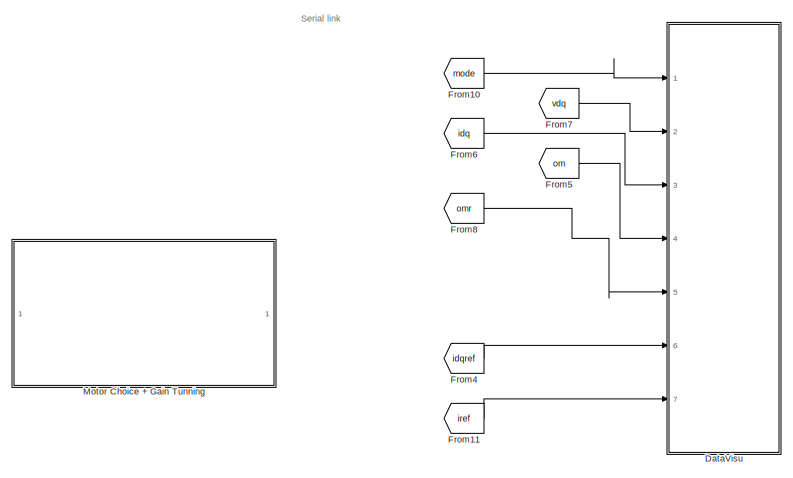
[diagram: root canvas - part 1/3, top right region]
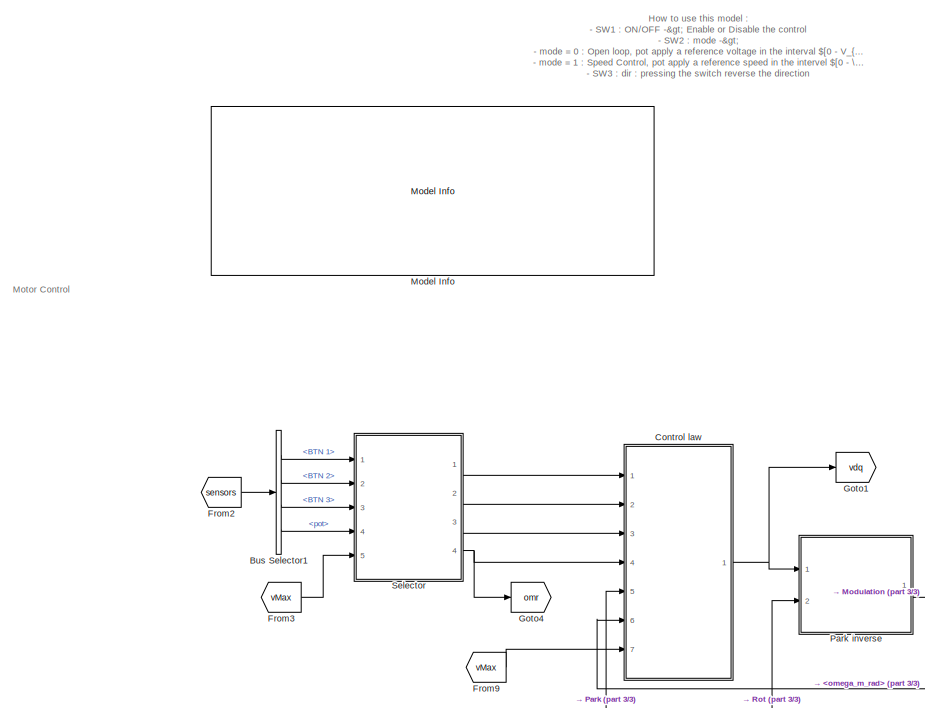
[diagram: root canvas - part 2/3, left side, full height]
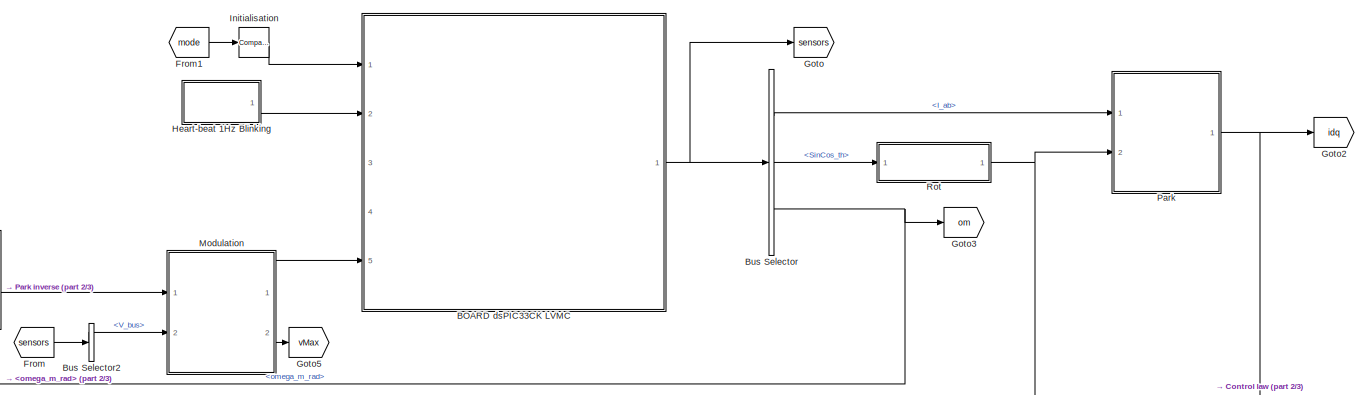
[diagram: root canvas - part 3/3, bottom right region]
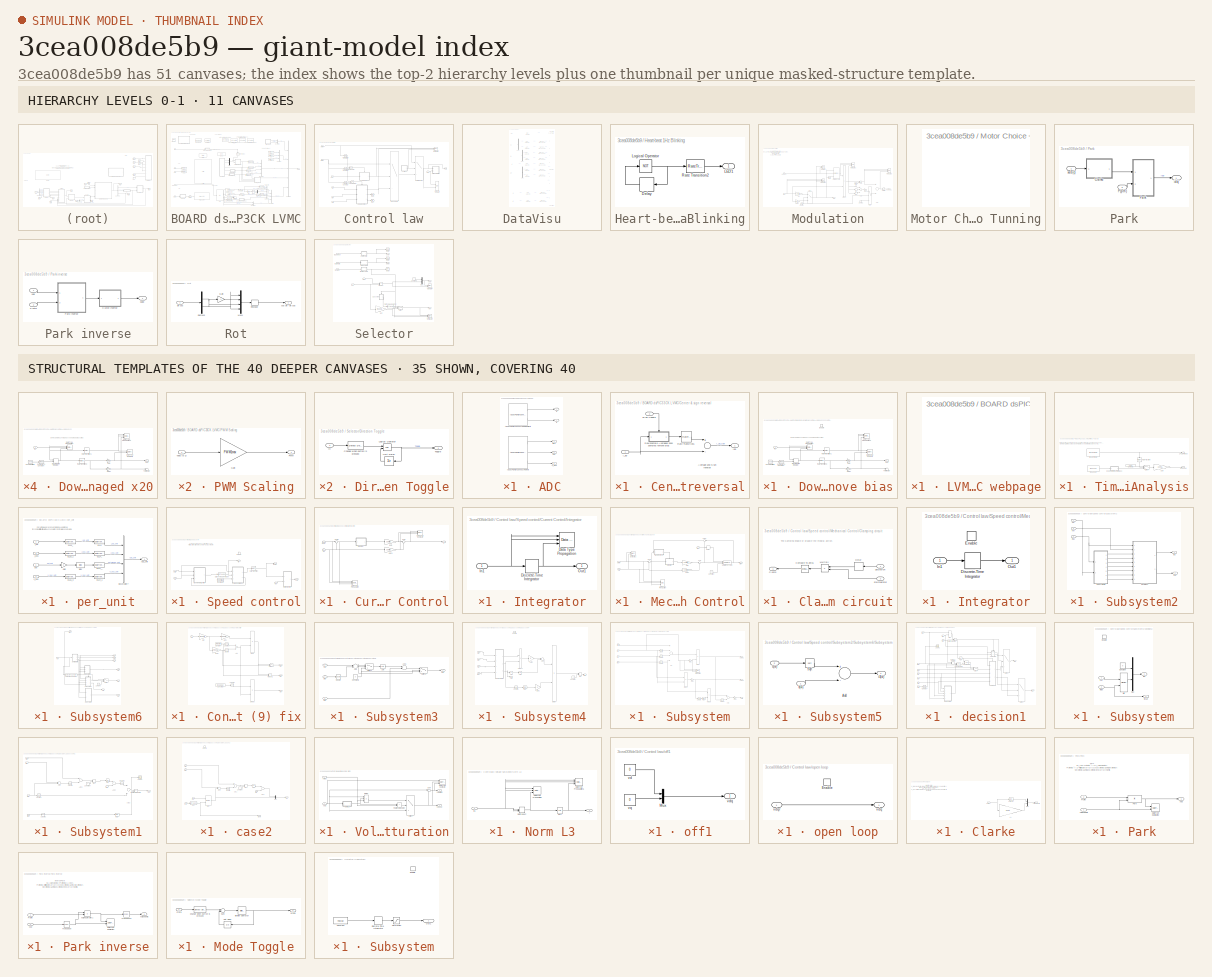
[diagram: thumbnail index - top-2 hierarchy levels (11 canvases) + 35 structural-template representatives of the remaining 40 canvases]
MODEL slx_3cea008de5b9
KIND model
CONFIG AbsTol = auto
CONFIG EnableMultiTasking = on
CONFIG FixedStep = 50e-6
CONFIG MaxStep = auto
CONFIG MinStep = auto
CONFIG RelTol = 1e-3
CONFIG SampleTimeConstraint = Unconstrained
CONFIG Solver = FixedStepDiscrete
CONFIG SolverName = FixedStepDiscrete
CONFIG StartTime = 0.0
CONFIG StopTime = 10.0
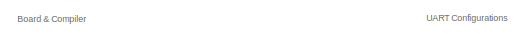
[diagram: BOARD dsPIC33CK LVMC - part 1/5, top left region]
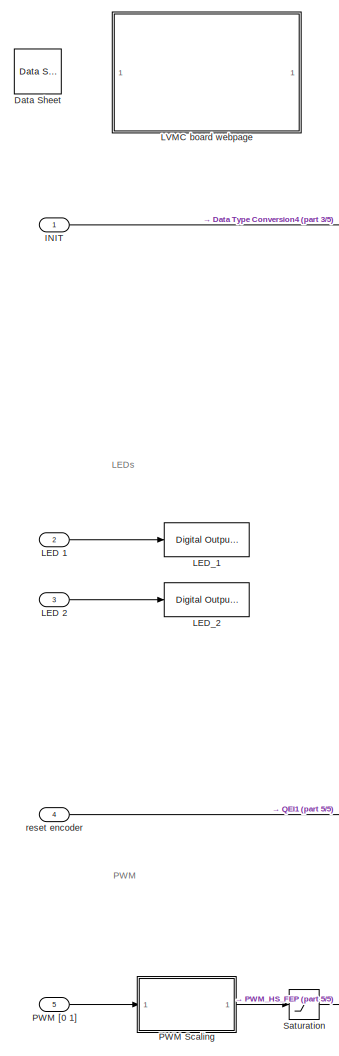
[diagram: BOARD dsPIC33CK LVMC - part 2/5, left side, full height]
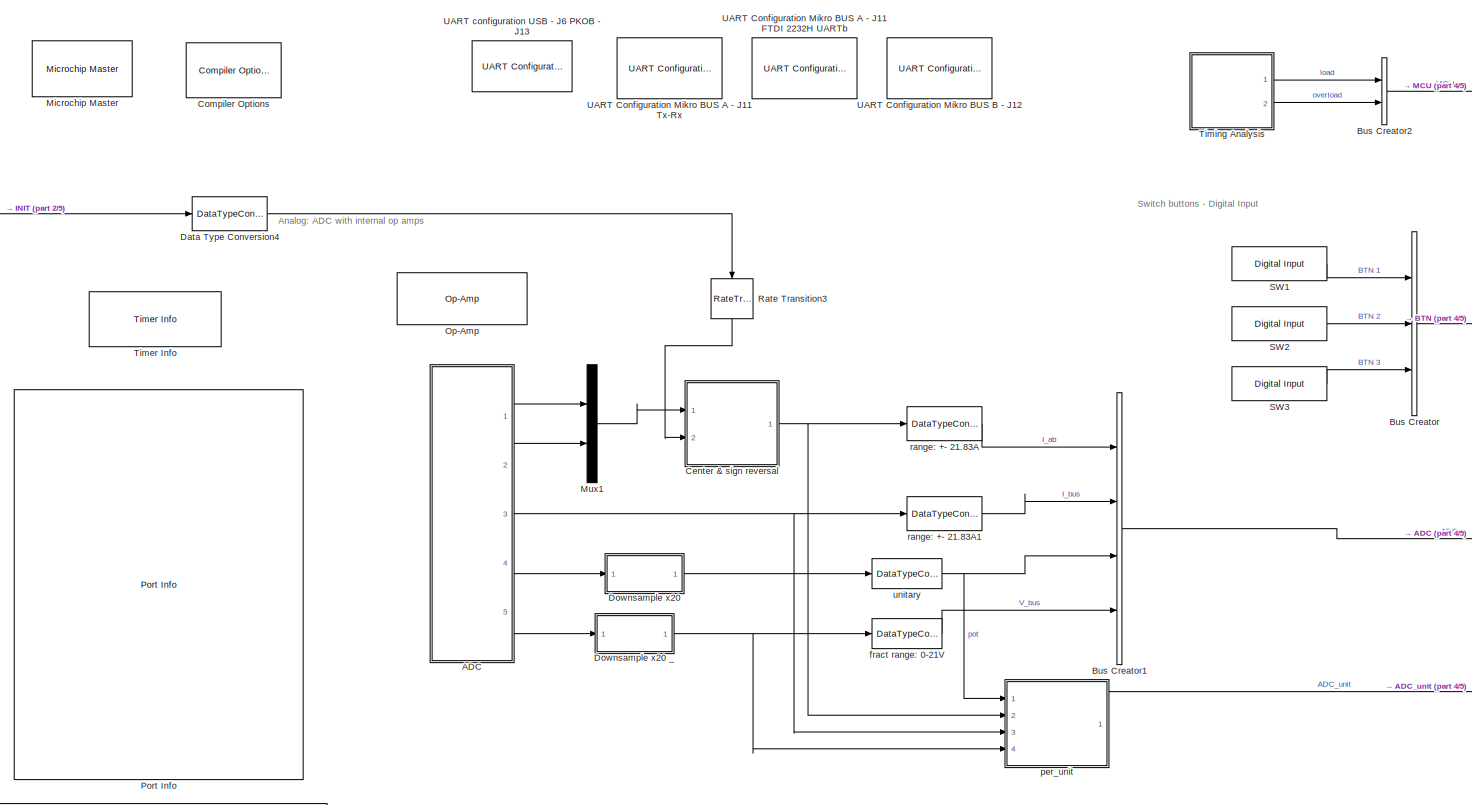
[diagram: BOARD dsPIC33CK LVMC - part 3/5, central region]
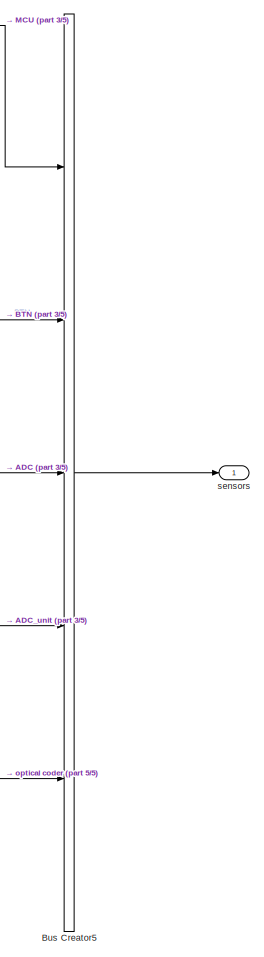
[diagram: BOARD dsPIC33CK LVMC - part 4/5, right side, full height]
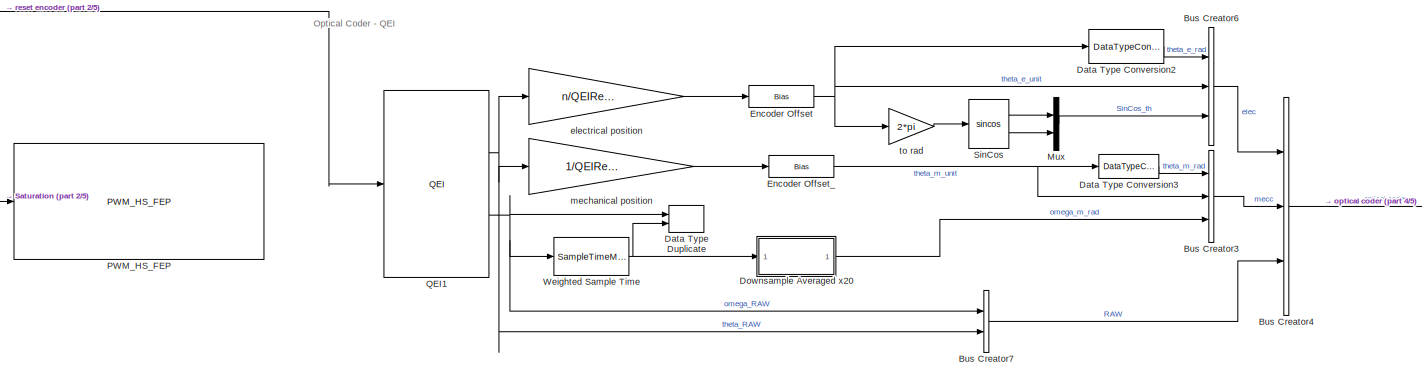
[diagram: BOARD dsPIC33CK LVMC - part 5/5, bottom center region]
BLOCK [SubSystem] BOARD dsPIC33CK LVMC
  AttributesFormatString = %<boardVariants>
  Ports = [5, 1]
  RequestExecContextInheritance = off
BLOCK [SubSystem] BOARD dsPIC33CK LVMC/ADC
  Ports = [0, 5]
  RequestExecContextInheritance = off
BLOCK [Reference] BOARD dsPIC33CK LVMC/ADC/ADC dsPIC High Speed SAR Motor Currents  REF=MCHP_Blockset/Analog IO/ADC dsPIC
High Speed SAR
  Ports = [0, 2]
  SourceBlock = MCHP_Blockset/Analog IO/ADC dsPIC\nHigh Speed SAR
  SourceProductName = MPLAB Device Blocks for Simulink
  SourceType = ADC SAR for dsPIC EP GS family
  UserDataPersistent = on
BLOCK [Reference] BOARD dsPIC33CK LVMC/ADC/ADC dsPIC High Speed SAR others  REF=MCHP_Blockset/Analog IO/ADC dsPIC
High Speed SAR
  Ports = [0, 3]
  SourceBlock = MCHP_Blockset/Analog IO/ADC dsPIC\nHigh Speed SAR
  SourceProductName = MPLAB Device Blocks for Simulink
  SourceType = ADC SAR for dsPIC EP GS family
  UserDataPersistent = on
BLOCK [Outport] BOARD dsPIC33CK LVMC/ADC/IBus
  IconDisplay = Port number
  Port = 3
BLOCK [Outport] BOARD dsPIC33CK LVMC/ADC/Ia
  IconDisplay = Port number
BLOCK [Outport] BOARD dsPIC33CK LVMC/ADC/Ib
  IconDisplay = Port number
  Port = 2
BLOCK [Outport] BOARD dsPIC33CK LVMC/ADC/V_BUS
  IconDisplay = Port number
  Port = 5
BLOCK [Outport] BOARD dsPIC33CK LVMC/ADC/pot
  IconDisplay = Port number
  Port = 4
BLOCK [BusCreator] BOARD dsPIC33CK LVMC/Bus Creator
  DisplayOption = bar
  InheritFromInputs = on
  Inputs = 3
  Ports = [3, 1]
BLOCK [BusCreator] BOARD dsPIC33CK LVMC/Bus Creator1
  DisplayOption = bar
  InheritFromInputs = on
  Inputs = 4
  Ports = [4, 1]
BLOCK [BusCreator] BOARD dsPIC33CK LVMC/Bus Creator2
  DisplayOption = bar
  InheritFromInputs = on
  Inputs = 2
  Ports = [2, 1]
BLOCK [BusCreator] BOARD dsPIC33CK LVMC/Bus Creator3
  DisplayOption = bar
  InheritFromInputs = on
  Inputs = 3
  Ports = [3, 1]
BLOCK [BusCreator] BOARD dsPIC33CK LVMC/Bus Creator4
  DisplayOption = bar
  InheritFromInputs = on
  Inputs = 3
  Ports = [3, 1]
BLOCK [BusCreator] BOARD dsPIC33CK LVMC/Bus Creator5
  DisplayOption = bar
  InheritFromInputs = on
  Inputs = 5
  Ports = [5, 1]
BLOCK [BusCreator] BOARD dsPIC33CK LVMC/Bus Creator6
  DisplayOption = bar
  InheritFromInputs = on
  Inputs = 3
  Ports = [3, 1]
BLOCK [BusCreator] BOARD dsPIC33CK LVMC/Bus Creator7
  DisplayOption = bar
  InheritFromInputs = on
  Inputs = 2
  Ports = [2, 1]
BLOCK [SubSystem] BOARD dsPIC33CK LVMC/Center & sign reversal
  Ports = [2, 1]
  RequestExecContextInheritance = off
BLOCK [Sum] BOARD dsPIC33CK LVMC/Center & sign reversal/Average and Sign reverse
  AccumDataTypeStr = Inherit: Same as first input
  InputSameDT = off
  Inputs = +-
  Ports = [2, 1]
BLOCK [Inport] BOARD dsPIC33CK LVMC/Center & sign reversal/Bias Update
  IconDisplay = Port number
  Port = 2
BLOCK [SubSystem] BOARD dsPIC33CK LVMC/Center & sign reversal/Downsample Averaged 2000 samples remove bias
  Ports = [1, 1, 1]
  RequestExecContextInheritance = off
BLOCK [Reference] BOARD dsPIC33CK LVMC/Center & sign reversal/Downsample Averaged 2000 samples remove bias/Compare To Constant  REF=simulink/Logic and Bit
Operations/Compare
To Constant
  Ports = [1, 1]
  SourceBlock = simulink/Logic and Bit\nOperations/Compare\nTo Constant
  SourceProductBaseCode = SL
  SourceProductName = Simulink
  SourceType = Compare To Constant
BLOCK [Reference] BOARD dsPIC33CK LVMC/Center & sign reversal/Downsample Averaged 2000 samples remove bias/Counter Limited  REF=simulink/Sources/Counter
Limited
  Ports = [0, 1]
  SourceBlock = simulink/Sources/Counter\nLimited
  SourceProductBaseCode = SL
  SourceProductName = Simulink
  SourceType = Counter Limited
BLOCK [DataTypeDuplicate] BOARD dsPIC33CK LVMC/Center & sign reversal/Downsample Averaged 2000 samples remove bias/Data Type Duplicate
  Ports = [2]
BLOCK [Reference] BOARD dsPIC33CK LVMC/Center & sign reversal/Downsample Averaged 2000 samples remove bias/Data Type Propagation  REF=simulink/Signal
Attributes/Data Type
Propagation
  Ports = [3]
  SourceBlock = simulink/Signal\nAttributes/Data Type\nPropagation
  SourceProductBaseCode = SL
  SourceProductName = Simulink
  SourceType = Data Type Propagation
BLOCK [Reference] BOARD dsPIC33CK LVMC/Center & sign reversal/Downsample Averaged 2000 samples remove bias/Data Type Propagation1  REF=simulink/Signal
Attributes/Data Type
Propagation
  Ports = [3]
  SourceBlock = simulink/Signal\nAttributes/Data Type\nPropagation
  SourceProductBaseCode = SL
  SourceProductName = Simulink
  SourceType = Data Type Propagation
BLOCK [DiscreteIntegrator] BOARD dsPIC33CK LVMC/Center & sign reversal/Downsample Averaged 2000 samples remove bias/Discrete-Time Integrator
  ExternalReset = sampled level
  ICPrevOutput = DiscIntNeverNeededParam
  ICPrevScaledInput = DiscIntNeverNeededParam
  InitialConditionSetting = Auto
  IntegratorMethod = Accumulation: Backward Euler
  OutDataTypeStr = Inherit: Inherit via back propagation
  Ports = [2, 1]
  SampleTime = -1
  gainval = 1
BLOCK [EnablePort] BOARD dsPIC33CK LVMC/Center & sign reversal/Downsample Averaged 2000 samples remove bias/Enable
  Ports = []
BLOCK [Gain] BOARD dsPIC33CK LVMC/Center & sign reversal/Downsample Averaged 2000 samples remove bias/Gain
  Gain = 1/DownSample
  OutDataTypeStr = Inherit: Inherit via back propagation
  ParamDataTypeStr = Inherit: Inherit via internal rule
  RndMeth = Round
  SaturateOnIntegerOverflow = off
BLOCK [Gain] BOARD dsPIC33CK LVMC/Center & sign reversal/Downsample Averaged 2000 samples remove bias/Gain1
  Gain = 1/DownSample
  OutDataTypeStr = Inherit: Inherit via back propagation
  ParamDataTypeStr = Inherit: Inherit via internal rule
  SaturateOnIntegerOverflow = off
BLOCK [Inport] BOARD dsPIC33CK LVMC/Center & sign reversal/Downsample Averaged 2000 samples remove bias/In1
  IconDisplay = Port number
BLOCK [Outport] BOARD dsPIC33CK LVMC/Center & sign reversal/Downsample Averaged 2000 samples remove bias/Out1
  IconDisplay = Port number
BLOCK [RateTransition] BOARD dsPIC33CK LVMC/Center & sign reversal/Downsample Averaged 2000 samples remove bias/Rate Transition1
  OutPortSampleTime = DownSample
  OutPortSampleTimeMultiple = DownSample
  OutPortSampleTimeOpt = Multiple of input port sample time
BLOCK [RateTransition] BOARD dsPIC33CK LVMC/Center & sign reversal/Downsample Averaged 2000 samples remove bias/Rate Transition3
  OutPortSampleTime = DownSample
  OutPortSampleTimeMultiple = DownSample
  OutPortSampleTimeOpt = Multiple of input port sample time
BLOCK [Terminator] BOARD dsPIC33CK LVMC/Center & sign reversal/Downsample Averaged 2000 samples remove bias/Terminator
BLOCK [Inport] BOARD dsPIC33CK LVMC/Center & sign reversal/I_ab
  IconDisplay = Port number
BLOCK [Outport] BOARD dsPIC33CK LVMC/Center & sign reversal/Iab
  IconDisplay = Port number
  VectorParamsAs1DForOutWhenUnconnected = on
BLOCK [RateTransition] BOARD dsPIC33CK LVMC/Center & sign reversal/Rate Transition1
  Deterministic = off
BLOCK [Reference] BOARD dsPIC33CK LVMC/Compiler Options  REF=MCHP_Blockset/System Configuration/Compiler Options
  Ports = []
  Priority = 1
  SourceBlock = MCHP_Blockset/System Configuration/Compiler Options
  SourceProductName = MPLAB Device Blocks for Simulink
BLOCK [Reference] BOARD dsPIC33CK LVMC/Data Sheet  REF=MCHP_Blockset/System Info/Data Sheet
  AttributesFormatString = %<cpy_MCHP_Id>
  Ports = []
  SourceBlock = MCHP_Blockset/System Info/Data Sheet
  SourceProductName = MPLAB Device Blocks for Simulink
BLOCK [DataTypeConversion] BOARD dsPIC33CK LVMC/Data Type Conversion2
  ConvertRealWorld = Stored Integer (SI)
  OutDataTypeStr = fixdt(1,16,(2*pi)/2^16,0)
  RndMeth = Floor
  SaturateOnIntegerOverflow = off
BLOCK [DataTypeConversion] BOARD dsPIC33CK LVMC/Data Type Conversion3
  ConvertRealWorld = Stored Integer (SI)
  OutDataTypeStr = fixdt(1,16,(2*pi)/2^16,0)
  RndMeth = Floor
  SaturateOnIntegerOverflow = off
BLOCK [DataTypeConversion] BOARD dsPIC33CK LVMC/Data Type Conversion4
  OutDataTypeStr = boolean
  RndMeth = Floor
  SaturateOnIntegerOverflow = off
BLOCK [DataTypeDuplicate] BOARD dsPIC33CK LVMC/Data Type Duplicate
  Ports = [2]
BLOCK [SubSystem] BOARD dsPIC33CK LVMC/Downsample Averaged x20
  Ports = [1, 1]
  RequestExecContextInheritance = off
BLOCK [Reference] BOARD dsPIC33CK LVMC/Downsample Averaged x20/Compare To Constant  REF=simulink/Logic and Bit
Operations/Compare
To Constant
  Ports = [1, 1]
  SourceBlock = simulink/Logic and Bit\nOperations/Compare\nTo Constant
  SourceProductBaseCode = SL
  SourceProductName = Simulink
  SourceType = Compare To Constant
BLOCK [Reference] BOARD dsPIC33CK LVMC/Downsample Averaged x20/Counter Limited  REF=simulink/Sources/Counter
Limited
  Ports = [0, 1]
  SourceBlock = simulink/Sources/Counter\nLimited
  SourceProductBaseCode = SL
  SourceProductName = Simulink
  SourceType = Counter Limited
BLOCK [DataTypeDuplicate] BOARD dsPIC33CK LVMC/Downsample Averaged x20/Data Type Duplicate
  Ports = [2]
BLOCK [Reference] BOARD dsPIC33CK LVMC/Downsample Averaged x20/Data Type Propagation  REF=simulink/Signal
Attributes/Data Type
Propagation
  Ports = [3]
  SourceBlock = simulink/Signal\nAttributes/Data Type\nPropagation
  SourceProductBaseCode = SL
  SourceProductName = Simulink
  SourceType = Data Type Propagation
BLOCK [Reference] BOARD dsPIC33CK LVMC/Downsample Averaged x20/Data Type Propagation1  REF=simulink/Signal
Attributes/Data Type
Propagation
  Ports = [3]
  SourceBlock = simulink/Signal\nAttributes/Data Type\nPropagation
  SourceProductBaseCode = SL
  SourceProductName = Simulink
  SourceType = Data Type Propagation
BLOCK [DiscreteIntegrator] BOARD dsPIC33CK LVMC/Downsample Averaged x20/Discrete-Time Integrator
  ExternalReset = sampled level
  ICPrevOutput = DiscIntNeverNeededParam
  ICPrevScaledInput = DiscIntNeverNeededParam
  InitialConditionSetting = Auto
  IntegratorMethod = Accumulation: Backward Euler
  OutDataTypeStr = Inherit: Inherit via back propagation
  Ports = [2, 1]
  SampleTime = -1
  gainval = 1
BLOCK [Gain] BOARD dsPIC33CK LVMC/Downsample Averaged x20/Gain
  Gain = 1/DownSample
  OutDataTypeStr = Inherit: Inherit via back propagation
  ParamDataTypeStr = Inherit: Inherit via internal rule
  RndMeth = Round
  SaturateOnIntegerOverflow = off
BLOCK [Gain] BOARD dsPIC33CK LVMC/Downsample Averaged x20/Gain1
  Gain = 1/DownSample
  OutDataTypeStr = Inherit: Inherit via back propagation
  ParamDataTypeStr = Inherit: Inherit via internal rule
  SaturateOnIntegerOverflow = off
BLOCK [Inport] BOARD dsPIC33CK LVMC/Downsample Averaged x20/In1
  IconDisplay = Port number
BLOCK [Outport] BOARD dsPIC33CK LVMC/Downsample Averaged x20/Out1
  IconDisplay = Port number
BLOCK [RateTransition] BOARD dsPIC33CK LVMC/Downsample Averaged x20/Rate Transition1
  OutPortSampleTime = DownSample
  OutPortSampleTimeMultiple = DownSample
  OutPortSampleTimeOpt = Multiple of input port sample time
BLOCK [RateTransition] BOARD dsPIC33CK LVMC/Downsample Averaged x20/Rate Transition3
  OutPortSampleTime = DownSample
  OutPortSampleTimeMultiple = DownSample
  OutPortSampleTimeOpt = Multiple of input port sample time
BLOCK [Terminator] BOARD dsPIC33CK LVMC/Downsample Averaged x20/Terminator
BLOCK [SubSystem] BOARD dsPIC33CK LVMC/Downsample x20
  Ports = [1, 1]
  RequestExecContextInheritance = off
BLOCK [SubSystem] BOARD dsPIC33CK LVMC/Downsample x20 _
  Ports = [1, 1]
  RequestExecContextInheritance = off
BLOCK [Reference] BOARD dsPIC33CK LVMC/Downsample x20 _/Compare To Constant  REF=simulink/Logic and Bit
Operations/Compare
To Constant
  Ports = [1, 1]
  SourceBlock = simulink/Logic and Bit\nOperations/Compare\nTo Constant
  SourceProductBaseCode = SL
  SourceProductName = Simulink
  SourceType = Compare To Constant
BLOCK [Reference] BOARD dsPIC33CK LVMC/Downsample x20 _/Counter Limited  REF=simulink/Sources/Counter
Limited
  Ports = [0, 1]
  SourceBlock = simulink/Sources/Counter\nLimited
  SourceProductBaseCode = SL
  SourceProductName = Simulink
  SourceType = Counter Limited
BLOCK [DataTypeDuplicate] BOARD dsPIC33CK LVMC/Downsample x20 _/Data Type Duplicate
  Ports = [2]
BLOCK [Reference] BOARD dsPIC33CK LVMC/Downsample x20 _/Data Type Propagation  REF=simulink/Signal
Attributes/Data Type
Propagation
  Ports = [3]
  SourceBlock = simulink/Signal\nAttributes/Data Type\nPropagation
  SourceProductBaseCode = SL
  SourceProductName = Simulink
  SourceType = Data Type Propagation
BLOCK [Reference] BOARD dsPIC33CK LVMC/Downsample x20 _/Data Type Propagation1  REF=simulink/Signal
Attributes/Data Type
Propagation
  Ports = [3]
  SourceBlock = simulink/Signal\nAttributes/Data Type\nPropagation
  SourceProductBaseCode = SL
  SourceProductName = Simulink
  SourceType = Data Type Propagation
BLOCK [DiscreteIntegrator] BOARD dsPIC33CK LVMC/Downsample x20 _/Discrete-Time Integrator
  ExternalReset = sampled level
  ICPrevOutput = DiscIntNeverNeededParam
  ICPrevScaledInput = DiscIntNeverNeededParam
  InitialConditionSetting = Auto
  IntegratorMethod = Accumulation: Backward Euler
  OutDataTypeStr = Inherit: Inherit via back propagation
  Ports = [2, 1]
  SampleTime = -1
  gainval = 1
BLOCK [Gain] BOARD dsPIC33CK LVMC/Downsample x20 _/Gain
  Gain = 1/DownSample
  OutDataTypeStr = Inherit: Inherit via back propagation
  ParamDataTypeStr = Inherit: Inherit via internal rule
  RndMeth = Round
  SaturateOnIntegerOverflow = off
BLOCK [Gain] BOARD dsPIC33CK LVMC/Downsample x20 _/Gain1
  Gain = 1/DownSample
  OutDataTypeStr = Inherit: Inherit via back propagation
  ParamDataTypeStr = Inherit: Inherit via internal rule
  SaturateOnIntegerOverflow = off
BLOCK [Inport] BOARD dsPIC33CK LVMC/Downsample x20 _/In1
  IconDisplay = Port number
BLOCK [Outport] BOARD dsPIC33CK LVMC/Downsample x20 _/Out1
  IconDisplay = Port number
BLOCK [RateTransition] BOARD dsPIC33CK LVMC/Downsample x20 _/Rate Transition1
  OutPortSampleTime = DownSample
  OutPortSampleTimeMultiple = DownSample
  OutPortSampleTimeOpt = Multiple of input port sample time
BLOCK [RateTransition] BOARD dsPIC33CK LVMC/Downsample x20 _/Rate Transition3
  OutPortSampleTime = DownSample
  OutPortSampleTimeMultiple = DownSample
  OutPortSampleTimeOpt = Multiple of input port sample time
BLOCK [Terminator] BOARD dsPIC33CK LVMC/Downsample x20 _/Terminator
BLOCK [Reference] BOARD dsPIC33CK LVMC/Downsample x20/Compare To Constant  REF=simulink/Logic and Bit
Operations/Compare
To Constant
  Ports = [1, 1]
  SourceBlock = simulink/Logic and Bit\nOperations/Compare\nTo Constant
  SourceProductBaseCode = SL
  SourceProductName = Simulink
  SourceType = Compare To Constant
BLOCK [Reference] BOARD dsPIC33CK LVMC/Downsample x20/Counter Limited  REF=simulink/Sources/Counter
Limited
  Ports = [0, 1]
  SourceBlock = simulink/Sources/Counter\nLimited
  SourceProductBaseCode = SL
  SourceProductName = Simulink
  SourceType = Counter Limited
BLOCK [DataTypeDuplicate] BOARD dsPIC33CK LVMC/Downsample x20/Data Type Duplicate
  Ports = [2]
BLOCK [Reference] BOARD dsPIC33CK LVMC/Downsample x20/Data Type Propagation  REF=simulink/Signal
Attributes/Data Type
Propagation
  Ports = [3]
  SourceBlock = simulink/Signal\nAttributes/Data Type\nPropagation
  SourceProductBaseCode = SL
  SourceProductName = Simulink
  SourceType = Data Type Propagation
BLOCK [Reference] BOARD dsPIC33CK LVMC/Downsample x20/Data Type Propagation1  REF=simulink/Signal
Attributes/Data Type
Propagation
  Ports = [3]
  SourceBlock = simulink/Signal\nAttributes/Data Type\nPropagation
  SourceProductBaseCode = SL
  SourceProductName = Simulink
  SourceType = Data Type Propagation
BLOCK [DiscreteIntegrator] BOARD dsPIC33CK LVMC/Downsample x20/Discrete-Time Integrator
  ExternalReset = sampled level
  ICPrevOutput = DiscIntNeverNeededParam
  ICPrevScaledInput = DiscIntNeverNeededParam
  InitialConditionSetting = Auto
  IntegratorMethod = Accumulation: Backward Euler
  OutDataTypeStr = Inherit: Inherit via back propagation
  Ports = [2, 1]
  SampleTime = -1
  gainval = 1
BLOCK [Gain] BOARD dsPIC33CK LVMC/Downsample x20/Gain
  Gain = 1/DownSample
  OutDataTypeStr = Inherit: Inherit via back propagation
  ParamDataTypeStr = Inherit: Inherit via internal rule
  RndMeth = Round
  SaturateOnIntegerOverflow = off
BLOCK [Gain] BOARD dsPIC33CK LVMC/Downsample x20/Gain1
  Gain = 1/DownSample
  OutDataTypeStr = Inherit: Inherit via back propagation
  ParamDataTypeStr = Inherit: Inherit via internal rule
  SaturateOnIntegerOverflow = off
BLOCK [Inport] BOARD dsPIC33CK LVMC/Downsample x20/In1
  IconDisplay = Port number
BLOCK [Outport] BOARD dsPIC33CK LVMC/Downsample x20/Out1
  IconDisplay = Port number
BLOCK [RateTransition] BOARD dsPIC33CK LVMC/Downsample x20/Rate Transition1
  OutPortSampleTime = DownSample
  OutPortSampleTimeMultiple = DownSample
  OutPortSampleTimeOpt = Multiple of input port sample time
BLOCK [RateTransition] BOARD dsPIC33CK LVMC/Downsample x20/Rate Transition3
  OutPortSampleTime = DownSample
  OutPortSampleTimeMultiple = DownSample
  OutPortSampleTimeOpt = Multiple of input port sample time
BLOCK [Terminator] BOARD dsPIC33CK LVMC/Downsample x20/Terminator
BLOCK [Bias] BOARD dsPIC33CK LVMC/Encoder Offset
  Bias = mod(1,round((n*QEIOffset)/(2*pi)))
  SaturateOnIntegerOverflow = off
BLOCK [Bias] BOARD dsPIC33CK LVMC/Encoder Offset_
  Bias = mod(1,round(QEIOffset/(2*pi)))
  SaturateOnIntegerOverflow = off
BLOCK [Inport] BOARD dsPIC33CK LVMC/INIT
  IconDisplay = Port number
  SignalType = real
  VarSizeSig = No
BLOCK [Inport] BOARD dsPIC33CK LVMC/LED 1
  IconDisplay = Port number
  Port = 2
BLOCK [Inport] BOARD dsPIC33CK LVMC/LED 2
  IconDisplay = Port number
  Port = 3
BLOCK [Reference] BOARD dsPIC33CK LVMC/LED_1  REF=MCHP_Blockset/Digital IO/Digital Output
Write
  Ports = [1]
  SourceBlock = MCHP_Blockset/Digital IO/Digital Output\nWrite
  SourceProductName = MPLAB Device Blocks for Simulink
  SourceType = Output driver for Digital Output Pins
BLOCK [Reference] BOARD dsPIC33CK LVMC/LED_2  REF=MCHP_Blockset/Digital IO/Digital Output
Write
  Ports = [1]
  SourceBlock = MCHP_Blockset/Digital IO/Digital Output\nWrite
  SourceProductName = MPLAB Device Blocks for Simulink
  SourceType = Output driver for Digital Output Pins
BLOCK [SubSystem] BOARD dsPIC33CK LVMC/LVMC board webpage
  OpenFcn = %web('www.microchip.com/DevelopmentTools/ProductDetails.aspx?PartNO=DM330021-2','-browser'); % MCLV2\nweb('https://www.microchip.com/en-us/development-tool/DM330031','-browser'); % LVMC\n%pause(2);\n%web('http://www.microchipdirect.com/productsearch.aspx?keywords=AC300020','-browser');\n%web('www.microchipdirect.com/ProductSearch.aspx?keywords=AC300022','-browser');
  Ports = []
  RequestExecContextInheritance = off
BLOCK [Reference] BOARD dsPIC33CK LVMC/Microchip Master  REF=MCHP_Blockset/System Configuration/Microchip Master
  Ports = []
  Priority = 1
  SourceBlock = MCHP_Blockset/System Configuration/Microchip Master
  SourceProductName = MPLAB Device Blocks for Simulink
BLOCK [Mux] BOARD dsPIC33CK LVMC/Mux
  DisplayOption = bar
  Inputs = 2
  Ports = [2, 1]
BLOCK [Mux] BOARD dsPIC33CK LVMC/Mux1
  DisplayOption = bar
  Inputs = 2
  Ports = [2, 1]
BLOCK [Reference] BOARD dsPIC33CK LVMC/Op-Amp  REF=MCHP_Blockset/Analog IO/Op-Amp
  Ports = []
  Priority = -2000
  SourceBlock = MCHP_Blockset/Analog IO/Op-Amp
  SourceProductName = MPLAB Device Blocks for Simulink
  SourceType = Configure on chip Op AMP
  UserDataPersistent = on
BLOCK [SubSystem] BOARD dsPIC33CK LVMC/PWM Scaling
  Ports = [1, 1]
  RequestExecContextInheritance = off
BLOCK [Gain] BOARD dsPIC33CK LVMC/PWM Scaling/Gain
  Gain = PWM1max
  OutDataTypeStr = uint16
  ParamDataTypeStr = Inherit: Inherit via internal rule
  SaturateOnIntegerOverflow = off
BLOCK [Outport] BOARD dsPIC33CK LVMC/PWM Scaling/PWM
  IconDisplay = Port number
BLOCK [Inport] BOARD dsPIC33CK LVMC/PWM Scaling/vabc [0 1]
  IconDisplay = Port number
BLOCK [Inport] BOARD dsPIC33CK LVMC/PWM [0 1]
  IconDisplay = Port number
  Port = 5
  SignalType = real
  Unit = 1
  VarSizeSig = No
BLOCK [Reference] BOARD dsPIC33CK LVMC/PWM_HS_FEP  REF=MCHP_Blockset/PWM IO/PWM_HS_FEP
  Ports = [1]
  Priority = -2000
  SourceBlock = MCHP_Blockset/PWM IO/PWM_HS_FEP
  SourceProductName = MPLAB Device Blocks for Simulink
  SourceType = PWM High-Speed Fine-Edge-Placement
  UserDataPersistent = on
BLOCK [Reference] BOARD dsPIC33CK LVMC/Port Info  REF=MCHP_Blockset/System Info/Port Info
  Ports = []
  SourceBlock = MCHP_Blockset/System Info/Port Info
  SourceProductName = MPLAB Device Blocks for Simulink
BLOCK [Reference] BOARD dsPIC33CK LVMC/QEI1  REF=MCHP_Blockset/QEI/QEI
  Ports = [1, 2]
  SourceBlock = MCHP_Blockset/QEI/QEI
  SourceProductName = MPLAB Device Blocks for Simulink
  SourceType = Output Driver for Quadrature Encoder Interface (QEI) peripheral
  UserDataPersistent = on
BLOCK [RateTransition] BOARD dsPIC33CK LVMC/Rate Transition3
  Deterministic = off
BLOCK [Reference] BOARD dsPIC33CK LVMC/SW1  REF=MCHP_Blockset/Digital IO/Digital Input
  Ports = [0, 1]
  SourceBlock = MCHP_Blockset/Digital IO/Digital Input
  SourceProductName = MPLAB Device Blocks for Simulink
  SourceType = Input driver for Digital Input Pins
BLOCK [Reference] BOARD dsPIC33CK LVMC/SW2  REF=MCHP_Blockset/Digital IO/Digital Input
  Ports = [0, 1]
  SourceBlock = MCHP_Blockset/Digital IO/Digital Input
  SourceProductName = MPLAB Device Blocks for Simulink
  SourceType = Input driver for Digital Input Pins
BLOCK [Reference] BOARD dsPIC33CK LVMC/SW3  REF=MCHP_Blockset/Digital IO/Digital Input
  Ports = [0, 1]
  SourceBlock = MCHP_Blockset/Digital IO/Digital Input
  SourceProductName = MPLAB Device Blocks for Simulink
  SourceType = Input driver for Digital Input Pins
BLOCK [Saturate] BOARD dsPIC33CK LVMC/Saturation
  InputPortMap = u0
  LinearizeAsGain = off
  LowerLimit = PWM1max*0.03
  OutDataTypeStr = uint16
  Ports = [1, 1]
  UpperLimit = PWM1max*0.97
BLOCK [Trigonometry] BOARD dsPIC33CK LVMC/SinCos
  ApproximationMethod = CORDIC
  Operator = sincos
  Ports = [1, 2]
BLOCK [Reference] BOARD dsPIC33CK LVMC/Timer Info  REF=MCHP_Blockset/System Info/Timer Info
  Ports = []
  SourceBlock = MCHP_Blockset/System Info/Timer Info
  SourceProductName = MPLAB Device Blocks for Simulink
BLOCK [SubSystem] BOARD dsPIC33CK LVMC/Timing Analysis
  Ports = [0, 2]
  RequestExecContextInheritance = off
BLOCK [Outport] BOARD dsPIC33CK LVMC/Timing Analysis/CPU Load
  IconDisplay = Port number
  SampleTime = .0005*200
  Unit = %
  VectorParamsAs1DForOutWhenUnconnected = on
BLOCK [Outport] BOARD dsPIC33CK LVMC/Timing Analysis/CPU Overload
  IconDisplay = Port number
  Port = 2
  VectorParamsAs1DForOutWhenUnconnected = on
BLOCK [SubSystem] BOARD dsPIC33CK LVMC/Timing Analysis/Downsample Averaged2
  Ports = [1, 1]
  RequestExecContextInheritance = off
BLOCK [Reference] BOARD dsPIC33CK LVMC/Timing Analysis/Downsample Averaged2/Compare To Constant  REF=simulink/Logic and Bit
Operations/Compare
To Constant
  Ports = [1, 1]
  SourceBlock = simulink/Logic and Bit\nOperations/Compare\nTo Constant
  SourceProductBaseCode = SL
  SourceProductName = Simulink
  SourceType = Compare To Constant
BLOCK [Reference] BOARD dsPIC33CK LVMC/Timing Analysis/Downsample Averaged2/Counter Limited  REF=simulink/Sources/Counter
Limited
  Ports = [0, 1]
  SourceBlock = simulink/Sources/Counter\nLimited
  SourceProductBaseCode = SL
  SourceProductName = Simulink
  SourceType = Counter Limited
BLOCK [DataTypeDuplicate] BOARD dsPIC33CK LVMC/Timing Analysis/Downsample Averaged2/Data Type Duplicate
  Ports = [2]
BLOCK [Reference] BOARD dsPIC33CK LVMC/Timing Analysis/Downsample Averaged2/Data Type Propagation  REF=simulink/Signal
Attributes/Data Type
Propagation
  Ports = [3]
  SourceBlock = simulink/Signal\nAttributes/Data Type\nPropagation
  SourceProductBaseCode = SL
  SourceProductName = Simulink
  SourceType = Data Type Propagation
BLOCK [Reference] BOARD dsPIC33CK LVMC/Timing Analysis/Downsample Averaged2/Data Type Propagation1  REF=simulink/Signal
Attributes/Data Type
Propagation
  Ports = [3]
  SourceBlock = simulink/Signal\nAttributes/Data Type\nPropagation
  SourceProductBaseCode = SL
  SourceProductName = Simulink
  SourceType = Data Type Propagation
BLOCK [DiscreteIntegrator] BOARD dsPIC33CK LVMC/Timing Analysis/Downsample Averaged2/Discrete-Time Integrator
  ExternalReset = sampled level
  ICPrevOutput = DiscIntNeverNeededParam
  ICPrevScaledInput = DiscIntNeverNeededParam
  InitialConditionSetting = Auto
  IntegratorMethod = Accumulation: Backward Euler
  OutDataTypeStr = Inherit: Inherit via back propagation
  Ports = [2, 1]
  SampleTime = -1
  gainval = 1
BLOCK [Gain] BOARD dsPIC33CK LVMC/Timing Analysis/Downsample Averaged2/Gain
  Gain = 1/DownSample
  OutDataTypeStr = Inherit: Inherit via back propagation
  ParamDataTypeStr = Inherit: Inherit via internal rule
  SaturateOnIntegerOverflow = off
BLOCK [Gain] BOARD dsPIC33CK LVMC/Timing Analysis/Downsample Averaged2/Gain1
  Gain = 1/DownSample
  OutDataTypeStr = Inherit: Inherit via back propagation
  ParamDataTypeStr = Inherit: Inherit via internal rule
  SaturateOnIntegerOverflow = off
BLOCK [Inport] BOARD dsPIC33CK LVMC/Timing Analysis/Downsample Averaged2/In1
  IconDisplay = Port number
BLOCK [Outport] BOARD dsPIC33CK LVMC/Timing Analysis/Downsample Averaged2/Out1
  IconDisplay = Port number
BLOCK [RateTransition] BOARD dsPIC33CK LVMC/Timing Analysis/Downsample Averaged2/Rate Transition1
  Deterministic = off
  OutPortSampleTime = [InputSampleTime * DownSample]
BLOCK [RateTransition] BOARD dsPIC33CK LVMC/Timing Analysis/Downsample Averaged2/Rate Transition3
  OutPortSampleTime = [InputSampleTime * DownSample]
BLOCK [Terminator] BOARD dsPIC33CK LVMC/Timing Analysis/Downsample Averaged2/Terminator
BLOCK [Gain] BOARD dsPIC33CK LVMC/Timing Analysis/Gain
  Gain = 10e-9/.0005 * 100
  OutDataTypeStr = fixdt(0,16)
  OutMax = 100
  OutMin = 0
  ParamDataTypeStr = Inherit: Inherit via internal rule
  RndMeth = Simplest
BLOCK [Reference] BOARD dsPIC33CK LVMC/Timing Analysis/MCU Load  REF=MCHP_Blockset/Profiling/MCU Load
  Ports = [0, 1]
  SourceBlock = MCHP_Blockset/Profiling/MCU Load
  SourceProductName = MPLAB Device Blocks for Simulink
  SourceType = MCU Load (Profile execution time)
BLOCK [Reference] BOARD dsPIC33CK LVMC/Timing Analysis/MCU Overload  REF=MCHP_Blockset/Profiling/MCU Overload
  Ports = [0, 1]
  SourceBlock = MCHP_Blockset/Profiling/MCU Overload
  SourceProductName = MPLAB Device Blocks for Simulink
  SourceType = MCU Over-Load (Profile execution time)
BLOCK [Constant] BOARD dsPIC33CK LVMC/Timing Analysis/Overload
  OutDataTypeStr = Inherit: Inherit via back propagation
  Value = 65535
BLOCK [RateTransition] BOARD dsPIC33CK LVMC/Timing Analysis/Rate Transition
  Deterministic = off
  OutPortSampleTime = .0005*200
BLOCK [Switch] BOARD dsPIC33CK LVMC/Timing Analysis/Switch
  Criteria = u2 ~= 0
  InputSameDT = off
  SaturateOnIntegerOverflow = off
BLOCK [Reference] BOARD dsPIC33CK LVMC/UART Configuration Mikro BUS A - J11 FTDI 2232H UARTb  REF=MCHP_Blockset/BUS UART/UART Configuration
  Ports = []
  SourceBlock = MCHP_Blockset/BUS UART/UART Configuration
  SourceProductName = MPLAB Device Blocks for Simulink
  SourceType = Configuration for UART peripheral
BLOCK [Reference] BOARD dsPIC33CK LVMC/UART Configuration Mikro BUS A - J11 Tx-Rx  REF=MCHP_Blockset/BUS UART/UART Configuration
  Ports = []
  SourceBlock = MCHP_Blockset/BUS UART/UART Configuration
  SourceProductName = MPLAB Device Blocks for Simulink
  SourceType = Configuration for UART peripheral
BLOCK [Reference] BOARD dsPIC33CK LVMC/UART Configuration Mikro BUS B - J12  REF=MCHP_Blockset/BUS UART/UART Configuration
  Commented = on
  Ports = []
  SourceBlock = MCHP_Blockset/BUS UART/UART Configuration
  SourceProductName = MPLAB Device Blocks for Simulink
  SourceType = Configuration for UART peripheral
BLOCK [Reference] BOARD dsPIC33CK LVMC/UART configuration USB - J6 PKOB - J13  REF=MCHP_Blockset/BUS UART/UART Configuration
  Ports = []
  SourceBlock = MCHP_Blockset/BUS UART/UART Configuration
  SourceProductName = MPLAB Device Blocks for Simulink
  SourceType = Configuration for UART peripheral
BLOCK [SampleTimeMath] BOARD dsPIC33CK LVMC/Weighted Sample Time
  OutDataTypeStr = Inherit: Inherit via back propagation
  TsampMathOp = /
  weightValue = QEIResolution / (2*pi)
BLOCK [Gain] BOARD dsPIC33CK LVMC/electrical position
  Gain = n/QEIResolution
  OutDataTypeStr = fixdt(0,16,16)
  ParamDataTypeStr = Inherit: Inherit via internal rule
  SaturateOnIntegerOverflow = off
BLOCK [DataTypeConversion] BOARD dsPIC33CK LVMC/fract range: 0-21V
  ConvertRealWorld = Stored Integer (SI)
  OutDataTypeStr = fixdt(0,16,3.3/65536*21,0)
  RndMeth = Floor
  SaturateOnIntegerOverflow = off
BLOCK [Gain] BOARD dsPIC33CK LVMC/mechanical position
  Gain = 1/QEIResolution
  OutDataTypeStr = fixdt(0,16,16)
  ParamDataTypeStr = Inherit: Inherit via internal rule
  SaturateOnIntegerOverflow = off
BLOCK [SubSystem] BOARD dsPIC33CK LVMC/per_unit
  Ports = [4, 1]
  RequestExecContextInheritance = off
BLOCK [Outport] BOARD dsPIC33CK LVMC/per_unit/ADC_unit
  IconDisplay = Port number
  VectorParamsAs1DForOutWhenUnconnected = on
BLOCK [Bias] BOARD dsPIC33CK LVMC/per_unit/Bias
  Bias = -1
  SaturateOnIntegerOverflow = off
BLOCK [BusCreator] BOARD dsPIC33CK LVMC/per_unit/Bus Creator7
  DisplayOption = bar
  InheritFromInputs = on
  Inputs = 4
  Ports = [4, 1]
BLOCK [Gain] BOARD dsPIC33CK LVMC/per_unit/Gain
  Gain = 2
  LockScale = on
  OutDataTypeStr = fixdt(1,16,15)
  ParamDataTypeStr = Inherit: Inherit via internal rule
  SaturateOnIntegerOverflow = off
BLOCK [Inport] BOARD dsPIC33CK LVMC/per_unit/I_ab
  IconDisplay = Port number
  Port = 2
BLOCK [Inport] BOARD dsPIC33CK LVMC/per_unit/I_bus
  IconDisplay = Port number
  Port = 3
BLOCK [Inport] BOARD dsPIC33CK LVMC/per_unit/V_bus
  IconDisplay = Port number
  Port = 4
BLOCK [Inport] BOARD dsPIC33CK LVMC/per_unit/pot
  IconDisplay = Port number
BLOCK [DataTypeConversion] BOARD dsPIC33CK LVMC/per_unit/q1.14
  LockScale = on
  OutDataTypeStr = fixdt(1,16,14)
  RndMeth = Floor
  SaturateOnIntegerOverflow = off
BLOCK [DataTypeConversion] BOARD dsPIC33CK LVMC/per_unit/q1.14_
  LockScale = on
  OutDataTypeStr = fixdt(1,16,14)
  RndMeth = Floor
  SaturateOnIntegerOverflow = off
BLOCK [DataTypeConversion] BOARD dsPIC33CK LVMC/per_unit/q1.14_1
  LockScale = on
  OutDataTypeStr = fixdt(1,16,14)
  RndMeth = Floor
  SaturateOnIntegerOverflow = off
BLOCK [DataTypeConversion] BOARD dsPIC33CK LVMC/per_unit/q1.14__
  LockScale = on
  OutDataTypeStr = fixdt(1,16,14)
  RndMeth = Floor
  SaturateOnIntegerOverflow = off
BLOCK [DataTypeConversion] BOARD dsPIC33CK LVMC/per_unit/q1.15_
  ConvertRealWorld = Stored Integer (SI)
  LockScale = on
  OutDataTypeStr = fixdt(1,16,15)
  RndMeth = Floor
  SaturateOnIntegerOverflow = off
BLOCK [DataTypeConversion] BOARD dsPIC33CK LVMC/per_unit/q1.15_1
  ConvertRealWorld = Stored Integer (SI)
  LockScale = on
  OutDataTypeStr = fixdt(1,16,15)
  RndMeth = Floor
  SaturateOnIntegerOverflow = off
BLOCK [DataTypeConversion] BOARD dsPIC33CK LVMC/per_unit/q1.15_3
  ConvertRealWorld = Stored Integer (SI)
  LockScale = on
  OutDataTypeStr = fixdt(1,16,15)
  RndMeth = Floor
  SaturateOnIntegerOverflow = off
BLOCK [DataTypeConversion] BOARD dsPIC33CK LVMC/range: +- 21.83A
  ConvertRealWorld = Stored Integer (SI)
  OutDataTypeStr = fixdt(1,16,21.83/32768,0)
  RndMeth = Floor
  SaturateOnIntegerOverflow = off
BLOCK [DataTypeConversion] BOARD dsPIC33CK LVMC/range: +- 21.83A1
  ConvertRealWorld = Stored Integer (SI)
  OutDataTypeStr = fixdt(1,16,21.83/32768,0)
  RndMeth = Floor
  SaturateOnIntegerOverflow = off
BLOCK [Inport] BOARD dsPIC33CK LVMC/reset encoder
  IconDisplay = Port number
  Port = 4
BLOCK [Outport] BOARD dsPIC33CK LVMC/sensors
  IconDisplay = Port number
  VectorParamsAs1DForOutWhenUnconnected = on
BLOCK [Gain] BOARD dsPIC33CK LVMC/to rad
  Gain = 2*pi
  OutDataTypeStr = fixdt(0,16,13)
  ParamDataTypeStr = Inherit: Inherit via internal rule
  SaturateOnIntegerOverflow = off
BLOCK [DataTypeConversion] BOARD dsPIC33CK LVMC/unitary
  ConvertRealWorld = Stored Integer (SI)
  OutDataTypeStr = fixdt(0,16,16)
  RndMeth = Floor
  SaturateOnIntegerOverflow = off
BLOCK [BusSelector] Bus Selector
  OutputAsBus = off
  OutputSignals = ADC.I_ab,optical coder.elec.SinCos_th,optical coder.mecc.omega_m_rad
  Ports = [1, 3]
BLOCK [BusSelector] Bus Selector1
  OutputAsBus = off
  OutputSignals = BTN.BTN 1,BTN.BTN 2,BTN.BTN 3,ADC.pot
  Ports = [1, 4]
BLOCK [BusSelector] Bus Selector2
  OutputAsBus = off
  OutputSignals = ADC.V_bus
  Ports = [1, 1]
BLOCK [SubSystem] Control law
  Ports = [7, 1]
  RequestExecContextInheritance = off
BLOCK [Reference] Control law/Compare To Constant1  REF=simulink/Logic and Bit
Operations/Compare
To Constant
  Ports = [1, 1]
  SourceBlock = simulink/Logic and Bit\nOperations/Compare\nTo Constant
  SourceProductBaseCode = SL
  SourceProductName = Simulink
  SourceType = Compare To Constant
BLOCK [Reference] Control law/Compare To Constant2  REF=simulink/Logic and Bit
Operations/Compare
To Constant
  Ports = [1, 1]
  SourceBlock = simulink/Logic and Bit\nOperations/Compare\nTo Constant
  SourceProductBaseCode = SL
  SourceProductName = Simulink
  SourceType = Compare To Constant
BLOCK [Reference] Control law/Compare To Constant3  REF=simulink/Logic and Bit
Operations/Compare
To Constant
  Ports = [1, 1]
  SourceBlock = simulink/Logic and Bit\nOperations/Compare\nTo Constant
  SourceProductBaseCode = SL
  SourceProductName = Simulink
  SourceType = Compare To Constant
BLOCK [DataTypeDuplicate] Control law/Data Type Duplicate
  Ports = [2]
BLOCK [DataTypeDuplicate] Control law/Data Type Duplicate1
  NumInputPorts = 3
  Ports = [3]
BLOCK [Goto] Control law/Goto6
  GotoTag = idqref
  TagVisibility = global
BLOCK [Goto] Control law/Goto7
  GotoTag = iref
  TagVisibility = global
BLOCK [Logic] Control law/Logical Operator
  AllPortsSameDT = off
  OutDataTypeStr = boolean
  Ports = [2, 1]
BLOCK [Logic] Control law/Logical Operator1
  AllPortsSameDT = off
  OutDataTypeStr = boolean
  Ports = [2, 1]
BLOCK [MultiPortSwitch] Control law/Mode Selection
  DataPortOrder = Zero-based contiguous
  DiagnosticForDefault = None
  InputSameDT = off
  Inputs = 2
  Ports = [3, 1]
  SaturateOnIntegerOverflow = off
  zeroidx = on
BLOCK [MultiPortSwitch] Control law/On//Off Selection
  DataPortOrder = Zero-based contiguous
  DiagnosticForDefault = None
  InputSameDT = off
  Inputs = 2
  Ports = [3, 1]
  SaturateOnIntegerOverflow = off
  zeroidx = on
BLOCK [SubSystem] Control law/Speed control
  Ports = [3, 3, 1]
  RequestExecContextInheritance = off
BLOCK [Constant] Control law/Speed control/Constant1
  OutDataTypeStr = fixdt(1,16)
  OutMax = model.iMax
  Value = model.iMax
BLOCK [SubSystem] Control law/Speed control/Current Control
  Ports = [2, 1]
  RequestExecContextInheritance = off
BLOCK [DataTypeDuplicate] Control law/Speed control/Current Control/Data Type Duplicate
  NumInputPorts = 3
  Ports = [3]
BLOCK [Reference] Control law/Speed control/Current Control/Data Type Propagation  REF=simulink/Signal
Attributes/Data Type
Propagation
  Ports = [3]
  SourceBlock = simulink/Signal\nAttributes/Data Type\nPropagation
  SourceProductBaseCode = SL
  SourceProductName = Simulink
  SourceType = Data Type Propagation
BLOCK [Gain] Control law/Speed control/Current Control/Gain
  Gain = control.kE(2)
  OutDataTypeStr = Inherit: Inherit via back propagation
  ParamDataTypeStr = Inherit: Inherit via internal rule
BLOCK [Gain] Control law/Speed control/Current Control/Gain1
  Gain = control.kE(1)
  OutDataTypeStr = Inherit: Inherit via back propagation
  ParamDataTypeStr = Inherit: Inherit via internal rule
BLOCK [SubSystem] Control law/Speed control/Current Control/Integrator
  Ports = [1, 1]
  RequestExecContextInheritance = off
BLOCK [Reference] Control law/Speed control/Current Control/Integrator/Data Type Propagation  REF=simulink/Signal
Attributes/Data Type
Propagation
  Ports = [3]
  SourceBlock = simulink/Signal\nAttributes/Data Type\nPropagation
  SourceProductBaseCode = SL
  SourceProductName = Simulink
  SourceType = Data Type Propagation
BLOCK [DiscreteIntegrator] Control law/Speed control/Current Control/Integrator/Discrete-Time Integrator
  ICPrevOutput = DiscIntNeverNeededParam
  ICPrevScaledInput = DiscIntNeverNeededParam
  InitialConditionSetting = Auto
  OutDataTypeStr = Inherit: Inherit via back propagation
  Ports = [1, 1]
  SampleTime = -1
  SaturateOnIntegerOverflow = on
BLOCK [Inport] Control law/Speed control/Current Control/Integrator/In1
  IconDisplay = Port number
BLOCK [Outport] Control law/Speed control/Current Control/Integrator/Out1
  IconDisplay = Port number
BLOCK [Sum] Control law/Speed control/Current Control/Sum
  IconShape = round
  InputSameDT = off
  Inputs = |--
  OutDataTypeStr = Inherit: Inherit via back propagation
  Ports = [2, 1]
BLOCK [Sum] Control law/Speed control/Current Control/Sum3
  IconShape = round
  InputSameDT = off
  Inputs = |+-
  OutDataTypeStr = Inherit: Inherit via back propagation
  Ports = [2, 1]
BLOCK [Inport] Control law/Speed control/Current Control/idq
  IconDisplay = Port number
  Port = 2
BLOCK [Inport] Control law/Speed control/Current Control/idqref
  IconDisplay = Port number
BLOCK [Outport] Control law/Speed control/Current Control/v
  IconDisplay = Port number
BLOCK [DataTypeConversion] Control law/Speed control/Data Type Conversion
  OutDataTypeStr = fixdt(1,16)
  OutMax = [model.iMax]
  RndMeth = Floor
  SaturateOnIntegerOverflow = off
BLOCK [EnablePort] Control law/Speed control/Enable
  Ports = []
  StatesWhenEnabling = reset
BLOCK [SubSystem] Control law/Speed control/Mechanical Control
  Ports = [3, 1]
  RequestExecContextInheritance = off
BLOCK [SubSystem] Control law/Speed control/Mechanical Control/Clamping circuit
  Ports = [2, 1]
  RequestExecContextInheritance = off
BLOCK [Outport] Control law/Speed control/Mechanical Control/Clamping circuit/Clamp
  DisableCoverage = on
  IconDisplay = Port number
BLOCK [Reference] Control law/Speed control/Mechanical Control/Clamping circuit/Compare To Zero1  REF=simulink/Logic and Bit
Operations/Compare
To Zero
  Ports = [1, 1]
  SourceBlock = simulink/Logic and Bit\nOperations/Compare\nTo Zero
  SourceProductBaseCode = SL
  SourceProductName = Simulink
  SourceType = Compare To Zero
BLOCK [Delay] Control law/Speed control/Mechanical Control/Clamping circuit/Delay
  DelayLength = 1
  InitialCondition = 0
  InputPortMap = u0
  Ports = [1, 1]
BLOCK [Product] Control law/Speed control/Mechanical Control/Clamping circuit/Multiply
  InputSameDT = off
  Ports = [2, 1]
  RndMeth = Floor
BLOCK [Inport] Control law/Speed control/Mechanical Control/Clamping circuit/Saturation
  DisableCoverage = on
  IconDisplay = Port number
BLOCK [Inport] Control law/Speed control/Mechanical Control/Clamping circuit/preIntegrator
  DisableCoverage = on
  IconDisplay = Port number
  Port = 2
  VarSizeSig = No
BLOCK [Constant] Control law/Speed control/Mechanical Control/Constant
  OutDataTypeStr = fixdt(1,16)
  OutMax = model.iMax
  Value = 0
BLOCK [DataTypeDuplicate] Control law/Speed control/Mechanical Control/Data Type Duplicate1
  Ports = [2]
BLOCK [Reference] Control law/Speed control/Mechanical Control/Data Type Propagation  REF=simulink/Signal
Attributes/Data Type
Propagation
  Ports = [3]
  SourceBlock = simulink/Signal\nAttributes/Data Type\nPropagation
  SourceProductBaseCode = SL
  SourceProductName = Simulink
  SourceType = Data Type Propagation
BLOCK [Delay] Control law/Speed control/Mechanical Control/Delay
  DelayLength = 1
  InputPortMap = u0
  Ports = [1, 1]
BLOCK [Gain] Control law/Speed control/Mechanical Control/Gain
  Gain = control.kM(2)
  OutDataTypeStr = Inherit: Inherit via back propagation
  ParamDataTypeStr = Inherit: Inherit via internal rule
BLOCK [Gain] Control law/Speed control/Mechanical Control/Gain1
  Gain = control.kM(1)
  OutDataTypeStr = fixdt(1,16)
  OutMax = model.iMax
  ParamDataTypeStr = Inherit: Inherit via internal rule
BLOCK [SubSystem] Control law/Speed control/Mechanical Control/Integrator
  Ports = [1, 1, 1]
  RequestExecContextInheritance = off
BLOCK [DiscreteIntegrator] Control law/Speed control/Mechanical Control/Integrator/Discrete-Time Integrator
  ICPrevOutput = DiscIntNeverNeededParam
  ICPrevScaledInput = DiscIntNeverNeededParam
  InitialConditionSetting = Auto
  OutDataTypeStr = fixdt(1,32,20)
  Ports = [1, 1]
  SampleTime = -1
  SaturateOnIntegerOverflow = on
BLOCK [EnablePort] Control law/Speed control/Mechanical Control/Integrator/Enable
  Ports = []
BLOCK [Inport] Control law/Speed control/Mechanical Control/Integrator/In1
  IconDisplay = Port number
BLOCK [Outport] Control law/Speed control/Mechanical Control/Integrator/Out1
  IconDisplay = Port number
BLOCK [Reference] Control law/Speed control/Mechanical Control/Saturation Dynamic  REF=simulink/Discontinuities/Saturation
Dynamic
  Ports = [3, 1]
  SourceBlock = simulink/Discontinuities/Saturation\nDynamic
  SourceProductBaseCode = SL
  SourceProductName = Simulink
  SourceType = Saturation Dynamic
BLOCK [Sum] Control law/Speed control/Mechanical Control/Sum
  IconShape = round
  InputSameDT = off
  Inputs = |--
  OutDataTypeStr = fixdt(1,16)
  OutMax = 2*model.iMax
  Ports = [2, 1]
BLOCK [Sum] Control law/Speed control/Mechanical Control/Sum1
  IconShape = round
  InputSameDT = off
  Inputs = |+-
  OutDataTypeStr = Inherit: Inherit via back propagation
  Ports = [2, 1]
  SaturateOnIntegerOverflow = off
BLOCK [Sum] Control law/Speed control/Mechanical Control/Sum2
  AccumDataTypeStr = Inherit: Same as first input
  IconShape = round
  InputSameDT = off
  Inputs = |-+
  Ports = [2, 1]
BLOCK [Outport] Control law/Speed control/Mechanical Control/iqref
  IconDisplay = Port number
BLOCK [Inport] Control law/Speed control/Mechanical Control/isat
  IconDisplay = Port number
  Port = 3
BLOCK [Inport] Control law/Speed control/Mechanical Control/om
  IconDisplay = Port number
  Port = 2
BLOCK [Inport] Control law/Speed control/Mechanical Control/omref
  IconDisplay = Port number
BLOCK [RateTransition] Control law/Speed control/Rate Transition
BLOCK [SubSystem] Control law/Speed control/Subsystem2
  Ports = [3, 2]
  RequestExecContextInheritance = off
BLOCK [Inport] Control law/Speed control/Subsystem2/Imax
  IconDisplay = Port number
  Port = 3
BLOCK [SubSystem] Control law/Speed control/Subsystem2/Subsystem6
  Ports = [2, 7]
  RequestExecContextInheritance = off
BLOCK [Reference] Control law/Speed control/Subsystem2/Subsystem6/Compare To Constant  REF=simulink/Logic and Bit
Operations/Compare
To Constant
  Ports = [1, 1]
  SourceBlock = simulink/Logic and Bit\nOperations/Compare\nTo Constant
  SourceProductBaseCode = SL
  SourceProductName = Simulink
  SourceType = Compare To Constant
BLOCK [Constant] Control law/Speed control/Subsystem2/Subsystem6/Constant
  OutDataTypeStr = fixdt(1,16)
  OutMax = model.iMax
  Value = 0
BLOCK [SubSystem] Control law/Speed control/Subsystem2/Subsystem6/Contraints (9) fix
  Ports = [1, 3]
  RequestExecContextInheritance = off
BLOCK [Sum] Control law/Speed control/Subsystem2/Subsystem6/Contraints (9) fix/Add
  InputSameDT = off
  OutDataTypeStr = fixdt(0,16)
  OutMax = (model.R.^2+(model.p*model.omMax*model.L).^2)
  Ports = [2, 1]
BLOCK [Constant] Control law/Speed control/Subsystem2/Subsystem6/Contraints (9) fix/Constant
  OutDataTypeStr = fixdt(0,16)
  OutMax = model.R
  Value = model.R
BLOCK [Constant] Control law/Speed control/Subsystem2/Subsystem6/Contraints (9) fix/Constant1
  OutDataTypeStr = fixdt(0,16)
  OutMax = model.vMax
  Value = model.vMax
BLOCK [Product] Control law/Speed control/Subsystem2/Subsystem6/Contraints (9) fix/Divide
  InputSameDT = off
  Inputs = */
  OutDataTypeStr = fixdt(0,16)
  OutMax = max((model.p*(0:0.1:model.omMax)*model.Phif./(model.R.^2+(model.p*(0:0.1:model.omMax)*model.L).^2)))
  Ports = [2, 1]
  RndMeth = Floor
  SaturateOnIntegerOverflow = off
BLOCK [Product] Control law/Speed control/Subsystem2/Subsystem6/Contraints (9) fix/Divide1
  InputSameDT = off
  Inputs = */
  OutDataTypeStr = fixdt(0,16)
  OutMax = max((model.vMax*model.vMax./(model.R.^2+(model.p*(0:0.1:model.omMax)*model.L).^2)))
  Ports = [2, 1]
  RndMeth = Floor
BLOCK [Gain] Control law/Speed control/Subsystem2/Subsystem6/Contraints (9) fix/Gain
  Gain = model.p
  OutDataTypeStr = fixdt(0,16)
  OutMax = model.p*model.omMax
  ParamDataTypeStr = Inherit: Inherit via internal rule
  SaturateOnIntegerOverflow = off
BLOCK [Gain] Control law/Speed control/Subsystem2/Subsystem6/Contraints (9) fix/Gain1
  Gain = model.Phif
  OutDataTypeStr = fixdt(0,16)
  OutMax = model.p*model.Phif*model.omMax
  ParamDataTypeStr = Inherit: Inherit via internal rule
BLOCK [Gain] Control law/Speed control/Subsystem2/Subsystem6/Contraints (9) fix/Gain2
  Gain = model.L
  OutDataTypeStr = fixdt(0,16)
  OutMax = model.L*model.p*model.omMax
  ParamDataTypeStr = Inherit: Inherit via internal rule
BLOCK [Product] Control law/Speed control/Subsystem2/Subsystem6/Contraints (9) fix/Product
  InputSameDT = off
  OutDataTypeStr = fixdt(0,16)
  OutMax = model.L*model.p*model.omMax*max((model.p*(0:0.1:model.omMax)*model.Phif./(model.R.^2+(model.p*(0:0.1:model.omMax)*model.L).^2)))
  Ports = [2, 1]
  RndMeth = Floor
BLOCK [Product] Control law/Speed control/Subsystem2/Subsystem6/Contraints (9) fix/Product1
  InputSameDT = off
  OutDataTypeStr = fixdt(0,16)
  OutMax = model.R*max((model.p*(0:0.1:model.omMax)*model.Phif./(model.R.^2+(model.p*(0:0.1:model.omMax)*model.L).^2)))
  Ports = [2, 1]
  RndMeth = Floor
BLOCK [Math] Control law/Speed control/Subsystem2/Subsystem6/Contraints (9) fix/Square
  Operator = square
  OutDataTypeStr = fixdt(0,16)
  OutMax = (model.L*model.p*model.omMax)^2
  Ports = [1, 1]
BLOCK [Math] Control law/Speed control/Subsystem2/Subsystem6/Contraints (9) fix/Square1
  Operator = square
  OutDataTypeStr = fixdt(0,16)
  OutMax = model.R*model.R
  Ports = [1, 1]
BLOCK [Math] Control law/Speed control/Subsystem2/Subsystem6/Contraints (9) fix/Square2
  Operator = square
  OutDataTypeStr = fixdt(0,16)
  OutMax = model.vMax*model.vMax
  Ports = [1, 1]
BLOCK [Outport] Control law/Speed control/Subsystem2/Subsystem6/Contraints (9) fix/a(w)
  IconDisplay = Port number
  VectorParamsAs1DForOutWhenUnconnected = on
BLOCK [Outport] Control law/Speed control/Subsystem2/Subsystem6/Contraints (9) fix/b(w)
  IconDisplay = Port number
  Port = 2
  VectorParamsAs1DForOutWhenUnconnected = on
BLOCK [Outport] Control law/Speed control/Subsystem2/Subsystem6/Contraints (9) fix/c(w)
  IconDisplay = Port number
  Port = 3
  VectorParamsAs1DForOutWhenUnconnected = on
BLOCK [Inport] Control law/Speed control/Subsystem2/Subsystem6/Contraints (9) fix/om
  IconDisplay = Port number
BLOCK [Inport] Control law/Speed control/Subsystem2/Subsystem6/Imax
  IconDisplay = Port number
BLOCK [SubSystem] Control law/Speed control/Subsystem2/Subsystem6/Subsystem3
  Ports = [3, 1]
  RequestExecContextInheritance = off
BLOCK [Sum] Control law/Speed control/Subsystem2/Subsystem6/Subsystem3/Add
  InputSameDT = off
  Inputs = +-
  Ports = [2, 1]
BLOCK [Sum] Control law/Speed control/Subsystem2/Subsystem6/Subsystem3/Add1
  InputSameDT = off
  Inputs = +-
  OutDataTypeStr = fixdt(1,16)
  OutMax = model.iMax
  Ports = [2, 1]
BLOCK [Constant] Control law/Speed control/Subsystem2/Subsystem6/Subsystem3/Constant1
  OutDataTypeStr = int16
  Value = 0
BLOCK [Sqrt] Control law/Speed control/Subsystem2/Subsystem6/Subsystem3/Sqrt
BLOCK [Math] Control law/Speed control/Subsystem2/Subsystem6/Subsystem3/Square
  Operator = square
  OutDataTypeStr = fixdt(0,16)
  OutMax = (model.L*model.p*model.omMax*max((model.p*(0:0.1:model.omMax)*model.Phif./(model.R.^2+(model.p*(0:0.1:model.omMax)*model.L).^2)))).^2
  Ports = [1, 1]
BLOCK [Switch] Control law/Speed control/Subsystem2/Subsystem6/Subsystem3/Switch2
  Criteria = u2 > Threshold
  InputSameDT = off
  SaturateOnIntegerOverflow = off
BLOCK [Switch] Control law/Speed control/Subsystem2/Subsystem6/Subsystem3/Switch3
  Criteria = u2 > Threshold
  InputSameDT = off
  SaturateOnIntegerOverflow = off
BLOCK [Inport] Control law/Speed control/Subsystem2/Subsystem6/Subsystem3/a(w)
  IconDisplay = Port number
BLOCK [Inport] Control law/Speed control/Subsystem2/Subsystem6/Subsystem3/b(w)
  IconDisplay = Port number
  Port = 2
BLOCK [Inport] Control law/Speed control/Subsystem2/Subsystem6/Subsystem3/c(w)
  IconDisplay = Port number
  Port = 3
BLOCK [Outport] Control law/Speed control/Subsystem2/Subsystem6/Subsystem3/i1(w)
  IconDisplay = Port number
  VectorParamsAs1DForOutWhenUnconnected = on
BLOCK [SubSystem] Control law/Speed control/Subsystem2/Subsystem6/Subsystem4
  Ports = [4, 2, 1]
  RequestExecContextInheritance = off
BLOCK [Abs] Control law/Speed control/Subsystem2/Subsystem6/Subsystem4/Abs
  SaturateOnIntegerOverflow = off
BLOCK [Sum] Control law/Speed control/Subsystem2/Subsystem6/Subsystem4/Add
  InputSameDT = off
  OutDataTypeStr = fixdt(1,16)
  OutMax = [2*model.iMax^2]
  Ports = [2, 1]
  SaturateOnIntegerOverflow = off
BLOCK [Bias] Control law/Speed control/Subsystem2/Subsystem6/Subsystem4/Bias
  Bias = 1
  SaturateOnIntegerOverflow = off
BLOCK [Constant] Control law/Speed control/Subsystem2/Subsystem6/Subsystem4/Constant
  OutDataTypeStr = fixdt(1,16)
  OutMax = [model.iMax]
  Value = 0
BLOCK [Product] Control law/Speed control/Subsystem2/Subsystem6/Subsystem4/Divide
  InputSameDT = off
  Inputs = */
  OutDataTypeStr = fixdt(1,16)
  OutMax = [model.iMax]
  Ports = [2, 1]
  RndMeth = Floor
  SaturateOnIntegerOverflow = off
BLOCK [EnablePort] Control law/Speed control/Subsystem2/Subsystem6/Subsystem4/Enable
  Ports = []
BLOCK [Gain] Control law/Speed control/Subsystem2/Subsystem6/Subsystem4/Gain1
  Gain = -2
  OutDataTypeStr = fixdt(1,16)
  OutMax = [model.iMax^2]
  ParamDataTypeStr = Inherit: Inherit via internal rule
  SaturateOnIntegerOverflow = off
BLOCK [Gain] Control law/Speed control/Subsystem2/Subsystem6/Subsystem4/Gain2
  Gain = 2
  OutDataTypeStr = fixdt(1,16)
  OutMax = [2*model.iMax^2]
  ParamDataTypeStr = Inherit: Inherit via internal rule
  SaturateOnIntegerOverflow = off
BLOCK [Inport] Control law/Speed control/Subsystem2/Subsystem6/Subsystem4/Imax
  IconDisplay = Port number
  Port = 4
BLOCK [MinMax] Control law/Speed control/Subsystem2/Subsystem6/Subsystem4/Max
  Function = max
  InputSameDT = off
  Inputs = 2
  Ports = [2, 1]
  SaturateOnIntegerOverflow = off
BLOCK [Product] Control law/Speed control/Subsystem2/Subsystem6/Subsystem4/Product
  InputSameDT = off
  OutDataTypeStr = fixdt(1,16)
  OutMax = model.iMax*model.iMax
  Ports = [2, 1]
  RndMeth = Floor
  SaturateOnIntegerOverflow = off
BLOCK [Sqrt] Control law/Speed control/Subsystem2/Subsystem6/Subsystem4/Sqrt
  OutDataTypeStr = fixdt(1,16)
  OutMax = [4*model.iMax^2]
BLOCK [Math] Control law/Speed control/Subsystem2/Subsystem6/Subsystem4/Square4
  Operator = square
  OutDataTypeStr = fixdt(1,16)
  OutMax = [model.iMax^2]
  Ports = [1, 1]
BLOCK [SubSystem] Control law/Speed control/Subsystem2/Subsystem6/Subsystem4/Subsystem
  Ports = [4, 3]
  RequestExecContextInheritance = off
BLOCK [Sum] Control law/Speed control/Subsystem2/Subsystem6/Subsystem4/Subsystem/Add
  AccumDataTypeStr = fixdt(1,32,22)
  InputSameDT = off
  Inputs = +---
  OutDataTypeStr = fixdt(1,32)
  OutMax = [3*model.iMax*model.iMax]
  Ports = [4, 1]
BLOCK [Sum] Control law/Speed control/Subsystem2/Subsystem6/Subsystem4/Subsystem/Add1
  InputSameDT = off
  Inputs = +-
  OutDataTypeStr = Inherit: Inherit via internal rule
  Ports = [2, 1]
  SaturateOnIntegerOverflow = off
BLOCK [Bias] Control law/Speed control/Subsystem2/Subsystem6/Subsystem4/Subsystem/Bias
  Bias = 1
  SaturateOnIntegerOverflow = off
BLOCK [Reference] Control law/Speed control/Subsystem2/Subsystem6/Subsystem4/Subsystem/Data Type Propagation  REF=simulink/Signal
Attributes/Data Type
Propagation
  Ports = [3]
  SourceBlock = simulink/Signal\nAttributes/Data Type\nPropagation
  SourceProductBaseCode = SL
  SourceProductName = Simulink
  SourceType = Data Type Propagation
BLOCK [Product] Control law/Speed control/Subsystem2/Subsystem6/Subsystem4/Subsystem/Divide
  InputSameDT = off
  Inputs = */
  OutDataTypeStr = fixdt(1,16)
  OutMax = [2*model.iMax]
  Ports = [2, 1]
  RndMeth = Floor
  SaturateOnIntegerOverflow = off
BLOCK [Product] Control law/Speed control/Subsystem2/Subsystem6/Subsystem4/Subsystem/Divide1
  InputSameDT = off
  Inputs = */
  OutDataTypeStr = fixdt(1,16)
  OutMax = model.iMax
  Ports = [2, 1]
  RndMeth = Floor
  SaturateOnIntegerOverflow = off
BLOCK [Gain] Control law/Speed control/Subsystem2/Subsystem6/Subsystem4/Subsystem/Gain1
  Gain = 2
  OutDataTypeStr = Inherit: Inherit via back propagation
  ParamDataTypeStr = Inherit: Inherit via internal rule
  SaturateOnIntegerOverflow = off
BLOCK [Gain] Control law/Speed control/Subsystem2/Subsystem6/Subsystem4/Subsystem/Gain2
  Gain = -1
  ParamDataTypeStr = Inherit: Inherit via internal rule
  SaturateOnIntegerOverflow = off
BLOCK [Gain] Control law/Speed control/Subsystem2/Subsystem6/Subsystem4/Subsystem/Gain3
  Gain = 4
  OutDataTypeStr = fixdt(1,16)
  OutMax = [4*model.iMax^3]
  ParamDataTypeStr = Inherit: Inherit via internal rule
  SaturateOnIntegerOverflow = off
BLOCK [Inport] Control law/Speed control/Subsystem2/Subsystem6/Subsystem4/Subsystem/Imax
  IconDisplay = Port number
  Port = 4
BLOCK [Product] Control law/Speed control/Subsystem2/Subsystem6/Subsystem4/Subsystem/Product
  InputSameDT = off
  OutDataTypeStr = fixdt(1,16)
  OutMax = [model.iMax^3]
  Ports = [2, 1]
  RndMeth = Floor
  SaturateOnIntegerOverflow = off
BLOCK [Math] Control law/Speed control/Subsystem2/Subsystem6/Subsystem4/Subsystem/Square
  Operator = square
  OutDataTypeStr = fixdt(0,16)
  OutMax = (model.L*model.p*model.omMax*max((model.p*(0:0.1:model.omMax)*model.Phif./(model.R.^2+(model.p*(0:0.1:model.omMax)*model.L).^2)))).^2
  Ports = [1, 1]
BLOCK [Math] Control law/Speed control/Subsystem2/Subsystem6/Subsystem4/Subsystem/Square1
  Operator = square
  OutDataTypeStr = fixdt(0,16)
  OutMax = (model.R*max((model.p*(0:0.1:model.omMax)*model.Phif./(model.R.^2+(model.p*(0:0.1:model.omMax)*model.L).^2))))^2
  Ports = [1, 1]
BLOCK [Math] Control law/Speed control/Subsystem2/Subsystem6/Subsystem4/Subsystem/Square2
  Operator = square
  OutDataTypeStr = fixdt(0,16)
  OutMax = model.iMax^2
  Ports = [1, 1]
BLOCK [Math] Control law/Speed control/Subsystem2/Subsystem6/Subsystem4/Subsystem/Square3
  Operator = square
  Ports = [1, 1]
BLOCK [Math] Control law/Speed control/Subsystem2/Subsystem6/Subsystem4/Subsystem/Square4
  Operator = square
  OutDataTypeStr = fixdt(1,16)
  OutMax = [model.iMax^3]
  Ports = [1, 1]
BLOCK [Inport] Control law/Speed control/Subsystem2/Subsystem6/Subsystem4/Subsystem/a(w)
  IconDisplay = Port number
BLOCK [Inport] Control law/Speed control/Subsystem2/Subsystem6/Subsystem4/Subsystem/b(w)
  IconDisplay = Port number
  Port = 2
BLOCK [Inport] Control law/Speed control/Subsystem2/Subsystem6/Subsystem4/Subsystem/c(w)
  IconDisplay = Port number
  Port = 3
BLOCK [Outport] Control law/Speed control/Subsystem2/Subsystem6/Subsystem4/Subsystem/delta
  IconDisplay = Port number
  Port = 3
  VectorParamsAs1DForOutWhenUnconnected = on
BLOCK [Outport] Control law/Speed control/Subsystem2/Subsystem6/Subsystem4/Subsystem/kappa1
  IconDisplay = Port number
  VectorParamsAs1DForOutWhenUnconnected = on
BLOCK [Outport] Control law/Speed control/Subsystem2/Subsystem6/Subsystem4/Subsystem/kappa2
  IconDisplay = Port number
  Port = 2
  VectorParamsAs1DForOutWhenUnconnected = on
BLOCK [Inport] Control law/Speed control/Subsystem2/Subsystem6/Subsystem4/a(w)
  IconDisplay = Port number
BLOCK [Inport] Control law/Speed control/Subsystem2/Subsystem6/Subsystem4/b(w)
  IconDisplay = Port number
  Port = 2
BLOCK [Inport] Control law/Speed control/Subsystem2/Subsystem6/Subsystem4/c(w)
  IconDisplay = Port number
  Port = 3
BLOCK [Outport] Control law/Speed control/Subsystem2/Subsystem6/Subsystem4/delta
  IconDisplay = Port number
  Port = 2
  VectorParamsAs1DForOutWhenUnconnected = on
BLOCK [Outport] Control law/Speed control/Subsystem2/Subsystem6/Subsystem4/i2(w)
  IconDisplay = Port number
  VectorParamsAs1DForOutWhenUnconnected = on
BLOCK [SubSystem] Control law/Speed control/Subsystem2/Subsystem6/Subsystem5
  Ports = [2, 1]
  RequestExecContextInheritance = off
BLOCK [Sum] Control law/Speed control/Subsystem2/Subsystem6/Subsystem5/Add
  InputSameDT = off
  Inputs = +-
  OutDataTypeStr = fixdt(0,16)
  OutMax = 2*model.iMax
  Ports = [2, 1]
BLOCK [Sqrt] Control law/Speed control/Subsystem2/Subsystem6/Subsystem5/Sqrt
  OutDataTypeStr = fixdt(0,16)
  OutMax = 2*model.iMax
BLOCK [Inport] Control law/Speed control/Subsystem2/Subsystem6/Subsystem5/b(w)
  IconDisplay = Port number
BLOCK [Inport] Control law/Speed control/Subsystem2/Subsystem6/Subsystem5/c(w)
  IconDisplay = Port number
  Port = 2
BLOCK [Outport] Control law/Speed control/Subsystem2/Subsystem6/Subsystem5/i4(w)
  IconDisplay = Port number
  VectorParamsAs1DForOutWhenUnconnected = on
BLOCK [Switch] Control law/Speed control/Subsystem2/Subsystem6/Switch
  Criteria = u2 > Threshold
  InputSameDT = off
  SaturateOnIntegerOverflow = off
BLOCK [Outport] Control law/Speed control/Subsystem2/Subsystem6/a(w)
  IconDisplay = Port number
  Port = 4
  VectorParamsAs1DForOutWhenUnconnected = on
BLOCK [Outport] Control law/Speed control/Subsystem2/Subsystem6/b(w)
  IconDisplay = Port number
  Port = 5
  VectorParamsAs1DForOutWhenUnconnected = on
BLOCK [Outport] Control law/Speed control/Subsystem2/Subsystem6/c(w)
  IconDisplay = Port number
  Port = 6
  VectorParamsAs1DForOutWhenUnconnected = on
BLOCK [Outport] Control law/Speed control/Subsystem2/Subsystem6/delta
  IconDisplay = Port number
  Port = 7
  VectorParamsAs1DForOutWhenUnconnected = on
BLOCK [Outport] Control law/Speed control/Subsystem2/Subsystem6/i1(w)
  IconDisplay = Port number
  VectorParamsAs1DForOutWhenUnconnected = on
BLOCK [Outport] Control law/Speed control/Subsystem2/Subsystem6/i2(w)
  IconDisplay = Port number
  Port = 2
  VectorParamsAs1DForOutWhenUnconnected = on
BLOCK [Outport] Control law/Speed control/Subsystem2/Subsystem6/i4(w)
  IconDisplay = Port number
  Port = 3
  VectorParamsAs1DForOutWhenUnconnected = on
BLOCK [Inport] Control law/Speed control/Subsystem2/Subsystem6/om
  IconDisplay = Port number
  Port = 2
BLOCK [SubSystem] Control law/Speed control/Subsystem2/decision1
  Ports = [9, 2]
  RequestExecContextInheritance = off
BLOCK [Reference] Control law/Speed control/Subsystem2/decision1/Compare To Constant  REF=simulink/Logic and Bit
Operations/Compare
To Constant
  Ports = [1, 1]
  SourceBlock = simulink/Logic and Bit\nOperations/Compare\nTo Constant
  SourceProductBaseCode = SL
  SourceProductName = Simulink
  SourceType = Compare To Constant
BLOCK [Inport] Control law/Speed control/Subsystem2/decision1/Imax
  IconDisplay = Port number
BLOCK [Logic] Control law/Speed control/Subsystem2/decision1/Logical Operator
  AllPortsSameDT = off
  OutDataTypeStr = boolean
  Ports = [2, 1]
BLOCK [Logic] Control law/Speed control/Subsystem2/decision1/Logical Operator1
  AllPortsSameDT = off
  Inputs = 3
  OutDataTypeStr = boolean
  Ports = [3, 1]
BLOCK [MinMax] Control law/Speed control/Subsystem2/decision1/Min1
  InputSameDT = off
  Inputs = 2
  Ports = [2, 1]
  SaturateOnIntegerOverflow = off
BLOCK [Logic] Control law/Speed control/Subsystem2/decision1/NOT
  AllPortsSameDT = off
  IconShape = distinctive
  Operator = NOT
  OutDataTypeStr = boolean
  Ports = [1, 1]
BLOCK [RelationalOperator] Control law/Speed control/Subsystem2/decision1/Relational Operator
  InputSameDT = off
  Operator = <
  OutDataTypeStr = boolean
  Ports = [2, 1]
  RndMeth = Simplest
BLOCK [RelationalOperator] Control law/Speed control/Subsystem2/decision1/Relational Operator1
  InputSameDT = off
  Operator = <
  OutDataTypeStr = boolean
  Ports = [2, 1]
  RndMeth = Simplest
BLOCK [Scope] Control law/Speed control/Subsystem2/decision1/Scope1
  Floating = off
  NumInputPorts = 1
  Ports = [1]
  ScopeSpecificationString = Simulink.scopes.TimeScopeBlockCfg('CurrentConfiguration', extmgr.ConfigurationSet(extmgr.Configuration('Core','General UI',true),extmgr.Configuration('Core','Source UI',true),extmgr.Configuration('Sources','WiredSimulink',true,'DataLoggingVariableName','ScopeData11'),extmgr.Configuration('Visuals','Time Domain',true,'SerializedDisplays',{struct('MinYLimReal','-1.25','MaxYLimReal','11.25','YLabelRe...<+1380ch>
BLOCK [SubSystem] Control law/Speed control/Subsystem2/decision1/Subsystem
  Ports = [2, 2, 1]
  RequestExecContextInheritance = off
BLOCK [Constant] Control law/Speed control/Subsystem2/decision1/Subsystem/Constant
  OutDataTypeStr = fixdt(1,16)
  OutMax = model.iMax
  Value = 0
BLOCK [EnablePort] Control law/Speed control/Subsystem2/decision1/Subsystem/Enable
  Ports = []
BLOCK [MinMax] Control law/Speed control/Subsystem2/decision1/Subsystem/Min
  InputSameDT = off
  Inputs = 2
  Ports = [2, 1]
  SaturateOnIntegerOverflow = off
BLOCK [Mux] Control law/Speed control/Subsystem2/decision1/Subsystem/Mux
  DisplayOption = bar
  Inputs = 2
  Ports = [2, 1]
BLOCK [Inport] Control law/Speed control/Subsystem2/decision1/Subsystem/iMax
  IconDisplay = Port number
  Port = 2
BLOCK [Outport] Control law/Speed control/Subsystem2/decision1/Subsystem/idq
  IconDisplay = Port number
  VectorParamsAs1DForOutWhenUnconnected = on
BLOCK [Outport] Control law/Speed control/Subsystem2/decision1/Subsystem/iqsat
  IconDisplay = Port number
  Port = 2
  VectorParamsAs1DForOutWhenUnconnected = on
BLOCK [Inport] Control law/Speed control/Subsystem2/decision1/Subsystem/iref
  IconDisplay = Port number
BLOCK [SubSystem] Control law/Speed control/Subsystem2/decision1/Subsystem1
  Ports = [5, 1]
  RequestExecContextInheritance = off
BLOCK [Sum] Control law/Speed control/Subsystem2/decision1/Subsystem1/Add
  InputSameDT = off
  OutDataTypeStr = fixdt(1,16)
  OutMax = 2*model.iMax
  Ports = [2, 1]
BLOCK [Sum] Control law/Speed control/Subsystem2/decision1/Subsystem1/Add1
  InputSameDT = off
  Inputs = +-
  OutDataTypeStr = Inherit: Inherit via internal rule
  Ports = [2, 1]
BLOCK [Sum] Control law/Speed control/Subsystem2/decision1/Subsystem1/Add2
  InputSameDT = off
  Inputs = +-
  OutDataTypeStr = fixdt(1,16)
  OutMax = model.iMax
  Ports = [2, 1]
BLOCK [Sum] Control law/Speed control/Subsystem2/decision1/Subsystem1/Add3
  InputSameDT = off
  OutDataTypeStr = fixdt(1,16)
  OutMax = 4*model.iMax*model.iMax
  Ports = [2, 1]
BLOCK [Bias] Control law/Speed control/Subsystem2/decision1/Subsystem1/Bias
  Bias = 1
BLOCK [Constant] Control law/Speed control/Subsystem2/decision1/Subsystem1/Constant
  OutDataTypeStr = int16
  Value = 0
BLOCK [Inport] Control law/Speed control/Subsystem2/decision1/Subsystem1/Imax
  IconDisplay = Port number
  Port = 5
BLOCK [MinMax] Control law/Speed control/Subsystem2/decision1/Subsystem1/Max
  Function = max
  InputSameDT = off
  Inputs = 2
  Ports = [2, 1]
BLOCK [Outport] Control law/Speed control/Subsystem2/decision1/Subsystem1/Out1
  IconDisplay = Port number
  VectorParamsAs1DForOutWhenUnconnected = on
BLOCK [RelationalOperator] Control law/Speed control/Subsystem2/decision1/Subsystem1/Relational Operator
  InputSameDT = off
  Operator = <=
  OutDataTypeStr = boolean
  Ports = [2, 1]
  RndMeth = Simplest
BLOCK [Scope] Control law/Speed control/Subsystem2/decision1/Subsystem1/Scope
  Floating = off
  NumInputPorts = 1
  Ports = [1]
  ScopeSpecificationString = Simulink.scopes.TimeScopeBlockCfg('CurrentConfiguration', extmgr.ConfigurationSet(extmgr.Configuration('Core','General UI',true),extmgr.Configuration('Core','Source UI',true),extmgr.Configuration('Sources','WiredSimulink',true,'DataLoggingVariableName','ScopeData10'),extmgr.Configuration('Visuals','Time Domain',true,'SerializedDisplays',{struct('MinYLimReal','-3.8418','MaxYLimReal','217.23242','YL...<+1416ch>
BLOCK [Sqrt] Control law/Speed control/Subsystem2/decision1/Subsystem1/Sqrt
  OutDataTypeStr = fixdt(1,16)
  OutMax = model.iMax
BLOCK [Math] Control law/Speed control/Subsystem2/decision1/Subsystem1/Square
  Operator = square
  OutDataTypeStr = fixdt(1,16)
  OutMax = 2*model.iMax*model.iMax
  Ports = [1, 1]
BLOCK [Math] Control law/Speed control/Subsystem2/decision1/Subsystem1/Square1
  Operator = square
  OutDataTypeStr = fixdt(1,16)
  OutMax = model.iMax*model.iMax
  Ports = [1, 1]
BLOCK [Math] Control law/Speed control/Subsystem2/decision1/Subsystem1/Square2
  Operator = square
  OutDataTypeStr = fixdt(1,16)
  OutMax = model.iMax*model.iMax
  Ports = [1, 1]
BLOCK [Math] Control law/Speed control/Subsystem2/decision1/Subsystem1/Square3
  Operator = square
  OutDataTypeStr = fixdt(1,16)
  OutMax = model.iMax*model.iMax
  Ports = [1, 1]
BLOCK [Inport] Control law/Speed control/Subsystem2/decision1/Subsystem1/a(w)
  IconDisplay = Port number
BLOCK [Inport] Control law/Speed control/Subsystem2/decision1/Subsystem1/b(w)
  IconDisplay = Port number
  Port = 2
BLOCK [Inport] Control law/Speed control/Subsystem2/decision1/Subsystem1/c(w)
  IconDisplay = Port number
  Port = 3
BLOCK [Inport] Control law/Speed control/Subsystem2/decision1/Subsystem1/i2(w)
  IconDisplay = Port number
  Port = 4
BLOCK [Switch] Control law/Speed control/Subsystem2/decision1/Switch
  Criteria = u2 > Threshold
  InputSameDT = off
  SaturateOnIntegerOverflow = off
BLOCK [Switch] Control law/Speed control/Subsystem2/decision1/Switch1
  Criteria = u2 > Threshold
  InputSameDT = off
  SaturateOnIntegerOverflow = off
BLOCK [Switch] Control law/Speed control/Subsystem2/decision1/Switch2
  Criteria = u2 > Threshold
  InputSameDT = off
  SaturateOnIntegerOverflow = off
BLOCK [Inport] Control law/Speed control/Subsystem2/decision1/a(w)
  IconDisplay = Port number
  Port = 6
BLOCK [Inport] Control law/Speed control/Subsystem2/decision1/b(w)
  IconDisplay = Port number
  Port = 7
BLOCK [Inport] Control law/Speed control/Subsystem2/decision1/c(w)
  IconDisplay = Port number
  Port = 8
BLOCK [SubSystem] Control law/Speed control/Subsystem2/decision1/case2
  Ports = [5, 2, 1]
  RequestExecContextInheritance = off
BLOCK [Sum] Control law/Speed control/Subsystem2/decision1/case2/Add
  InputSameDT = off
  OutDataTypeStr = fixdt(0,16)
  OutMax = 2*model.iMax
  Ports = [2, 1]
BLOCK [Sum] Control law/Speed control/Subsystem2/decision1/case2/Add1
  AccumDataTypeStr = fixdt(1,32,20)
  InputSameDT = off
  Inputs = +-
  OutDataTypeStr = fixdt(1,16)
  OutMax = model.iMax*model.iMax
  Ports = [2, 1]
BLOCK [Sum] Control law/Speed control/Subsystem2/decision1/case2/Add2
  InputSameDT = off
  Inputs = +-
  OutDataTypeStr = fixdt(1,16)
  OutMax = model.iMax
  Ports = [2, 1]
BLOCK [DataTypeConversion] Control law/Speed control/Subsystem2/decision1/case2/Cast
  RndMeth = Floor
  SaturateOnIntegerOverflow = off
BLOCK [Constant] Control law/Speed control/Subsystem2/decision1/case2/Constant
  OutDataTypeStr = int16
  Value = 0
BLOCK [EnablePort] Control law/Speed control/Subsystem2/decision1/case2/Enable
  Ports = []
BLOCK [MinMax] Control law/Speed control/Subsystem2/decision1/case2/Max
  Function = max
  InputSameDT = off
  Inputs = 2
  Ports = [2, 1]
BLOCK [MinMax] Control law/Speed control/Subsystem2/decision1/case2/Min1
  InputSameDT = off
  Inputs = 2
  Ports = [2, 1]
BLOCK [Mux] Control law/Speed control/Subsystem2/decision1/case2/Mux
  DisplayOption = bar
  Inputs = 2
  Ports = [2, 1]
BLOCK [Sqrt] Control law/Speed control/Subsystem2/decision1/case2/Sqrt
  OutDataTypeStr = fixdt(1,16)
  OutMax = model.iMax
BLOCK [Math] Control law/Speed control/Subsystem2/decision1/case2/Square
  Operator = square
  OutDataTypeStr = fixdt(0,16)
  OutMax = 3*model.iMax*model.iMax
  Ports = [1, 1]
BLOCK [Inport] Control law/Speed control/Subsystem2/decision1/case2/a(w)
  IconDisplay = Port number
  Port = 3
BLOCK [Inport] Control law/Speed control/Subsystem2/decision1/case2/b(w)
  IconDisplay = Port number
  Port = 4
BLOCK [Inport] Control law/Speed control/Subsystem2/decision1/case2/c(w)
  IconDisplay = Port number
  Port = 5
BLOCK [Outport] Control law/Speed control/Subsystem2/decision1/case2/idq
  IconDisplay = Port number
  VectorParamsAs1DForOutWhenUnconnected = on
BLOCK [Inport] Control law/Speed control/Subsystem2/decision1/case2/iqref
  IconDisplay = Port number
BLOCK [Outport] Control law/Speed control/Subsystem2/decision1/case2/iqsat
  IconDisplay = Port number
  Port = 2
  VectorParamsAs1DForOutWhenUnconnected = on
BLOCK [Inport] Control law/Speed control/Subsystem2/decision1/case2/isat
  IconDisplay = Port number
  Port = 2
BLOCK [Inport] Control law/Speed control/Subsystem2/decision1/delta
  IconDisplay = Port number
  Port = 9
BLOCK [Inport] Control law/Speed control/Subsystem2/decision1/i1(w)
  IconDisplay = Port number
  Port = 3
BLOCK [Inport] Control law/Speed control/Subsystem2/decision1/i2(w)
  IconDisplay = Port number
  Port = 4
BLOCK [Inport] Control law/Speed control/Subsystem2/decision1/i3(w)
  IconDisplay = Port number
  Port = 5
BLOCK [Outport] Control law/Speed control/Subsystem2/decision1/idq
  IconDisplay = Port number
  VectorParamsAs1DForOutWhenUnconnected = on
BLOCK [Inport] Control law/Speed control/Subsystem2/decision1/iqref
  IconDisplay = Port number
  Port = 2
BLOCK [Outport] Control law/Speed control/Subsystem2/decision1/isat
  IconDisplay = Port number
  Port = 2
  VectorParamsAs1DForOutWhenUnconnected = on
BLOCK [Outport] Control law/Speed control/Subsystem2/idq
  IconDisplay = Port number
  VectorParamsAs1DForOutWhenUnconnected = on
BLOCK [Inport] Control law/Speed control/Subsystem2/iref
  IconDisplay = Port number
  Port = 2
BLOCK [Outport] Control law/Speed control/Subsystem2/isat
  IconDisplay = Port number
  Port = 2
  VectorParamsAs1DForOutWhenUnconnected = on
BLOCK [Inport] Control law/Speed control/Subsystem2/om
  IconDisplay = Port number
BLOCK [Inport] Control law/Speed control/idq
  IconDisplay = Port number
BLOCK [Outport] Control law/Speed control/idqref
  IconDisplay = Port number
  Port = 2
  VectorParamsAs1DForOutWhenUnconnected = on
BLOCK [Outport] Control law/Speed control/iref
  IconDisplay = Port number
  Port = 3
  VectorParamsAs1DForOutWhenUnconnected = on
BLOCK [Inport] Control law/Speed control/om
  IconDisplay = Port number
  Port = 3
BLOCK [Inport] Control law/Speed control/omr
  IconDisplay = Port number
  Port = 2
BLOCK [Outport] Control law/Speed control/vdq
  IconDisplay = Port number
  VectorParamsAs1DForOutWhenUnconnected = on
BLOCK [SubSystem] Control law/Voltage Saturation
  Ports = [2, 2]
  RequestExecContextInheritance = off
BLOCK [DataTypeDuplicate] Control law/Voltage Saturation/Data Type Duplicate
  NumInputPorts = 3
  Ports = [3]
BLOCK [Product] Control law/Voltage Saturation/Divide
  InputSameDT = off
  Inputs = */*
  OutDataTypeStr = Inherit: Inherit via back propagation
  OutMax = [1]
  Ports = [3, 1]
  RndMeth = Floor
BLOCK [SubSystem] Control law/Voltage Saturation/Norm L3
  Ports = [1, 1]
  RequestExecContextInheritance = off
BLOCK [Reference] Control law/Voltage Saturation/Norm L3/Data Type Propagation  REF=simulink/Signal
Attributes/Data Type
Propagation
  Ports = [3]
  SourceBlock = simulink/Signal\nAttributes/Data Type\nPropagation
  SourceProductBaseCode = SL
  SourceProductName = Simulink
  SourceType = Data Type Propagation
BLOCK [Reference] Control law/Voltage Saturation/Norm L3/Data Type Propagation1  REF=simulink/Signal
Attributes/Data Type
Propagation
  Ports = [3]
  SourceBlock = simulink/Signal\nAttributes/Data Type\nPropagation
  SourceProductBaseCode = SL
  SourceProductName = Simulink
  SourceType = Data Type Propagation
BLOCK [DotProduct] Control law/Voltage Saturation/Norm L3/Dot Product
  OutDataTypeStr = Inherit: Inherit via back propagation
  SaturateOnIntegerOverflow = on
BLOCK [Inport] Control law/Voltage Saturation/Norm L3/In1
  IconDisplay = Port number
BLOCK [Sqrt] Control law/Voltage Saturation/Norm L3/Sqrt
  OutDataTypeStr = Inherit: Inherit via back propagation
  OutputSignalType = real
BLOCK [Outport] Control law/Voltage Saturation/Norm L3/y
  IconDisplay = Port number
  VectorParamsAs1DForOutWhenUnconnected = on
BLOCK [RelationalOperator] Control law/Voltage Saturation/Relational Operator
  InputSameDT = off
  Operator = >
  OutDataTypeStr = boolean
  Ports = [2, 1]
  RndMeth = Simplest
BLOCK [Sum] Control law/Voltage Saturation/Sum
  IconShape = round
  InputSameDT = off
  Inputs = |+-
  OutDataTypeStr = Inherit: Inherit via back propagation
  Ports = [2, 1]
BLOCK [Switch] Control law/Voltage Saturation/Switch
  Criteria = u2 > Threshold
  InputSameDT = off
  OutDataTypeStr = Inherit: Inherit via back propagation
  SaturateOnIntegerOverflow = off
BLOCK [Outport] Control law/Voltage Saturation/saturation
  IconDisplay = Port number
  Port = 2
BLOCK [Inport] Control law/Voltage Saturation/vMax
  IconDisplay = Port number
  Port = 2
BLOCK [Inport] Control law/Voltage Saturation/vdq
  IconDisplay = Port number
BLOCK [Outport] Control law/Voltage Saturation/vdqsat
  IconDisplay = Port number
BLOCK [Inport] Control law/idq
  IconDisplay = Port number
  Port = 5
BLOCK [Inport] Control law/mode
  IconDisplay = Port number
  Port = 2
BLOCK [SubSystem] Control law/off1
  Ports = [0, 1]
  RequestExecContextInheritance = off
BLOCK [Mux] Control law/off1/Mux
  DisplayOption = bar
  Inputs = 2
  Ports = [2, 1]
BLOCK [Constant] Control law/off1/vd
  OutDataTypeStr = Inherit: Inherit via back propagation
  Value = 0
BLOCK [Outport] Control law/off1/vdq
  IconDisplay = Port number
BLOCK [Constant] Control law/off1/vq
  OutDataTypeStr = Inherit: Inherit via back propagation
  Value = 0
BLOCK [Inport] Control law/om
  IconDisplay = Port number
  Port = 6
BLOCK [Inport] Control law/omr
  IconDisplay = Port number
  Port = 4
BLOCK [Inport] Control law/on//off
  IconDisplay = Port number
BLOCK [SubSystem] Control law/open loop
  Ports = [1, 1, 1]
  RequestExecContextInheritance = off
BLOCK [EnablePort] Control law/open loop/Enable
  Ports = []
BLOCK [Outport] Control law/open loop/vdq
  IconDisplay = Port number
BLOCK [Inport] Control law/open loop/vdqr
  IconDisplay = Port number
BLOCK [Inport] Control law/vMax
  IconDisplay = Port number
  Port = 7
BLOCK [Outport] Control law/vdq
  IconDisplay = Port number
BLOCK [Inport] Control law/vdqr
  IconDisplay = Port number
  Port = 3
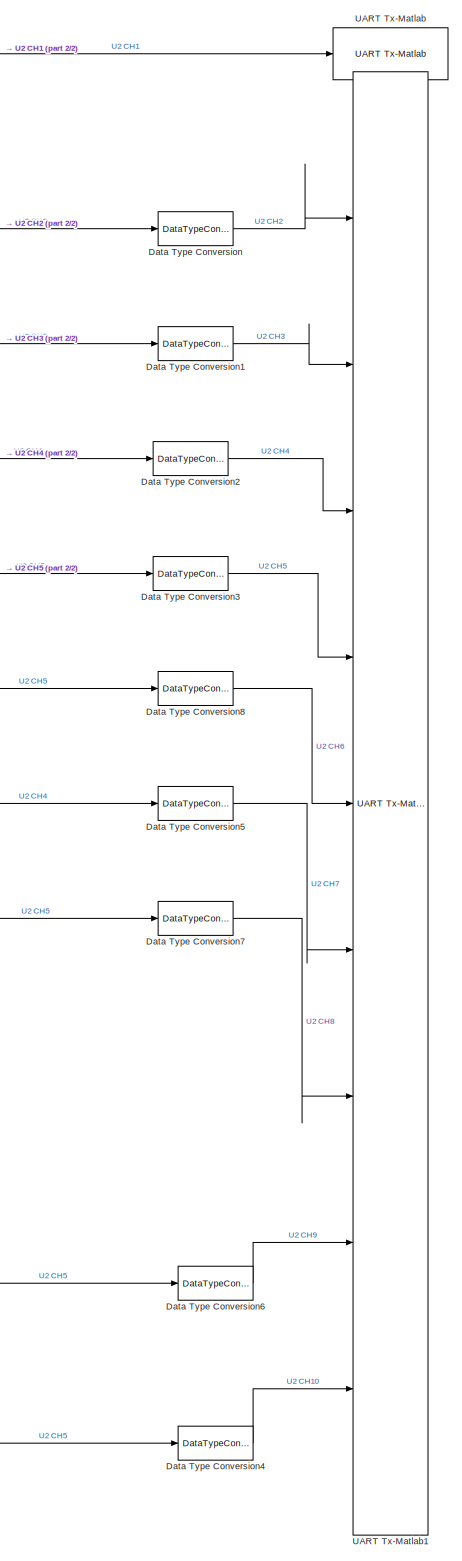
[diagram: DataVisu - part 1/2, right side, full height]
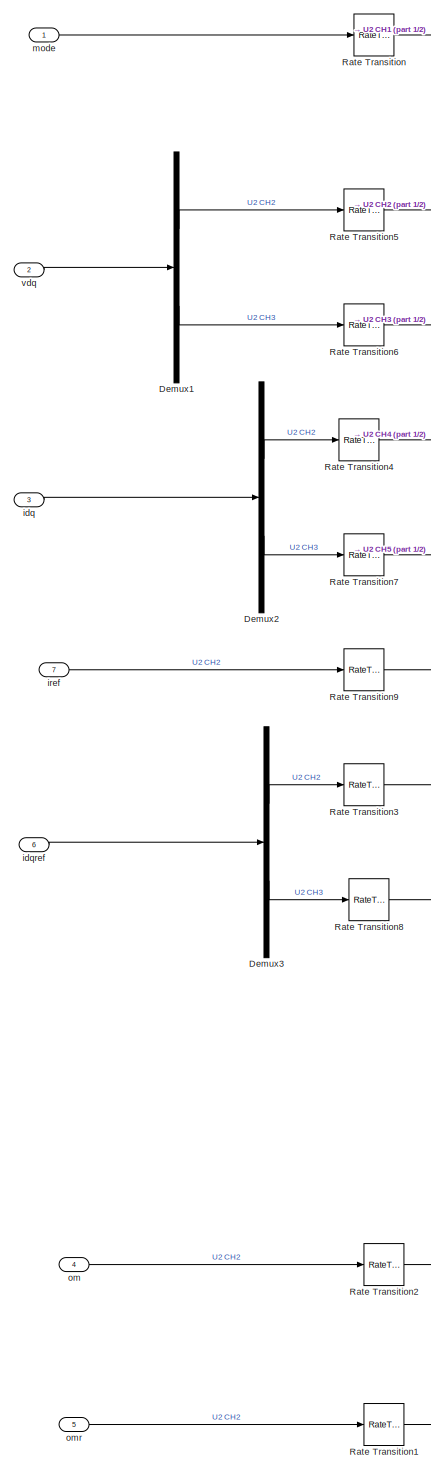
[diagram: DataVisu - part 2/2, left side, full height]
BLOCK [SubSystem] DataVisu
  Ports = [7]
  RequestExecContextInheritance = off
BLOCK [DataTypeConversion] DataVisu/Data Type Conversion
  ConvertRealWorld = Stored Integer (SI)
  OutDataTypeStr = int16
  RndMeth = Floor
  SaturateOnIntegerOverflow = off
BLOCK [DataTypeConversion] DataVisu/Data Type Conversion1
  ConvertRealWorld = Stored Integer (SI)
  OutDataTypeStr = int16
  RndMeth = Floor
  SaturateOnIntegerOverflow = off
BLOCK [DataTypeConversion] DataVisu/Data Type Conversion2
  ConvertRealWorld = Stored Integer (SI)
  OutDataTypeStr = int16
  RndMeth = Floor
  SaturateOnIntegerOverflow = off
BLOCK [DataTypeConversion] DataVisu/Data Type Conversion3
  ConvertRealWorld = Stored Integer (SI)
  OutDataTypeStr = int16
  RndMeth = Floor
  SaturateOnIntegerOverflow = off
BLOCK [DataTypeConversion] DataVisu/Data Type Conversion4
  ConvertRealWorld = Stored Integer (SI)
  OutDataTypeStr = int16
  RndMeth = Floor
  SaturateOnIntegerOverflow = off
BLOCK [DataTypeConversion] DataVisu/Data Type Conversion5
  ConvertRealWorld = Stored Integer (SI)
  OutDataTypeStr = int16
  RndMeth = Floor
  SaturateOnIntegerOverflow = off
BLOCK [DataTypeConversion] DataVisu/Data Type Conversion6
  ConvertRealWorld = Stored Integer (SI)
  OutDataTypeStr = int16
  RndMeth = Floor
  SaturateOnIntegerOverflow = off
BLOCK [DataTypeConversion] DataVisu/Data Type Conversion7
  ConvertRealWorld = Stored Integer (SI)
  OutDataTypeStr = int16
  RndMeth = Floor
  SaturateOnIntegerOverflow = off
BLOCK [DataTypeConversion] DataVisu/Data Type Conversion8
  ConvertRealWorld = Stored Integer (SI)
  OutDataTypeStr = int16
  RndMeth = Floor
  SaturateOnIntegerOverflow = off
BLOCK [Demux] DataVisu/Demux1
  DisplayOption = bar
  Outputs = 2
  Ports = [1, 2]
BLOCK [Demux] DataVisu/Demux2
  DisplayOption = bar
  Outputs = 2
  Ports = [1, 2]
BLOCK [Demux] DataVisu/Demux3
  DisplayOption = bar
  Outputs = 2
  Ports = [1, 2]
BLOCK [RateTransition] DataVisu/Rate Transition
BLOCK [RateTransition] DataVisu/Rate Transition1
BLOCK [RateTransition] DataVisu/Rate Transition2
BLOCK [RateTransition] DataVisu/Rate Transition3
BLOCK [RateTransition] DataVisu/Rate Transition4
BLOCK [RateTransition] DataVisu/Rate Transition5
BLOCK [RateTransition] DataVisu/Rate Transition6
BLOCK [RateTransition] DataVisu/Rate Transition7
BLOCK [RateTransition] DataVisu/Rate Transition8
BLOCK [RateTransition] DataVisu/Rate Transition9
BLOCK [Reference] DataVisu/UART Tx-Matlab  REF=MCHP_Blockset/BUS UART/UART Tx-Matlab
  Ports = [1]
  SourceBlock = MCHP_Blockset/BUS UART/UART Tx-Matlab
  SourceProductName = MPLAB Device Blocks for Simulink
  SourceType = Higl Level UART protocol
BLOCK [Reference] DataVisu/UART Tx-Matlab1  REF=MCHP_Blockset/BUS UART/UART Tx-Matlab
  Ports = [9]
  SourceBlock = MCHP_Blockset/BUS UART/UART Tx-Matlab
  SourceProductName = MPLAB Device Blocks for Simulink
  SourceType = Higl Level UART protocol
BLOCK [Inport] DataVisu/idq
  IconDisplay = Port number
  Port = 3
BLOCK [Inport] DataVisu/idqref
  IconDisplay = Port number
  Port = 6
BLOCK [Inport] DataVisu/iref
  IconDisplay = Port number
  Port = 7
BLOCK [Inport] DataVisu/mode
  IconDisplay = Port number
BLOCK [Inport] DataVisu/om
  IconDisplay = Port number
  Port = 4
BLOCK [Inport] DataVisu/omr
  IconDisplay = Port number
  Port = 5
BLOCK [Inport] DataVisu/vdq
  IconDisplay = Port number
  Port = 2
BLOCK [From] From
  GotoTag = sensors
  TagVisibility = global
BLOCK [From] From1
  GotoTag = mode
  TagVisibility = global
BLOCK [From] From10
  GotoTag = mode
  TagVisibility = global
BLOCK [From] From11
  GotoTag = iref
  TagVisibility = global
BLOCK [From] From2
  GotoTag = sensors
  TagVisibility = global
BLOCK [From] From3
  GotoTag = vMax
BLOCK [From] From4
  GotoTag = idqref
  TagVisibility = global
BLOCK [From] From5
  GotoTag = om
BLOCK [From] From6
  GotoTag = idq
BLOCK [From] From7
  GotoTag = vdq
BLOCK [From] From8
  GotoTag = omr
BLOCK [From] From9
  GotoTag = vMax
BLOCK [Goto] Goto
  GotoTag = sensors
  TagVisibility = global
BLOCK [Goto] Goto1
  GotoTag = vdq
BLOCK [Goto] Goto2
  GotoTag = idq
BLOCK [Goto] Goto3
  GotoTag = om
BLOCK [Goto] Goto4
  GotoTag = omr
BLOCK [Goto] Goto5
  GotoTag = vMax
BLOCK [SubSystem] Heart-beat 1Hz Blinking
  Ports = [0, 1]
  RequestExecContextInheritance = off
BLOCK [Delay] Heart-beat 1Hz Blinking/Delay
  DelayLength = 1
  InitialCondition = 0
  InputPortMap = u0
  Ports = [1, 1]
  SampleTime = .5
BLOCK [Outport] Heart-beat 1Hz Blinking/LED1
  IconDisplay = Port number
BLOCK [Logic] Heart-beat 1Hz Blinking/Logical Operator
  AllPortsSameDT = off
  Operator = NOT
  OutDataTypeStr = boolean
  Ports = [1, 1]
BLOCK [RateTransition] Heart-beat 1Hz Blinking/Rate Transition2
  Deterministic = off
  OutPortSampleTime = .05
BLOCK [Reference] Initialisation  REF=simulink/Logic and Bit
Operations/Compare
To Constant
  Ports = [1, 1]
  SourceBlock = simulink/Logic and Bit\nOperations/Compare\nTo Constant
  SourceProductBaseCode = SL
  SourceProductName = Simulink
  SourceType = Compare To Constant
BLOCK [Reference] Model Info  REF=simulink/Model-Wide
Utilities/Model Info
  Ports = []
  SourceBlock = simulink/Model-Wide\nUtilities/Model Info
  SourceProductBaseCode = SL
  SourceProductName = Simulink
  SourceType = CMBlock
BLOCK [SubSystem] Modulation
  Ports = [2, 2]
  RequestExecContextInheritance = off
BLOCK [Constant] Modulation/Constant
  OutDataTypeStr = boolean
  Value = mod
BLOCK [Constant] Modulation/Constant1
  OutDataTypeStr = Inherit: Inherit via back propagation
  Value = 0
BLOCK [DataTypeDuplicate] Modulation/Data Type Duplicate
  Ports = [2]
BLOCK [Reference] Modulation/Data Type Propagation1  REF=simulink/Signal
Attributes/Data Type
Propagation
  Ports = [3]
  SourceBlock = simulink/Signal\nAttributes/Data Type\nPropagation
  SourceProductBaseCode = SL
  SourceProductName = Simulink
  SourceType = Data Type Propagation
BLOCK [Reference] Modulation/Data Type Propagation2  REF=simulink/Signal
Attributes/Data Type
Propagation
  Ports = [3]
  SourceBlock = simulink/Signal\nAttributes/Data Type\nPropagation
  SourceProductBaseCode = SL
  SourceProductName = Simulink
  SourceType = Data Type Propagation
BLOCK [Reference] Modulation/Data Type Propagation3  REF=simulink/Signal
Attributes/Data Type
Propagation
  Ports = [3]
  SourceBlock = simulink/Signal\nAttributes/Data Type\nPropagation
  SourceProductBaseCode = SL
  SourceProductName = Simulink
  SourceType = Data Type Propagation
BLOCK [Gain] Modulation/Gain
  Gain = 1/sqrt(3)
  ParamDataTypeStr = Inherit: Inherit via internal rule
  SaturateOnIntegerOverflow = off
BLOCK [Gain] Modulation/Gain1
  Gain = 1/2
  ParamDataTypeStr = Inherit: Inherit via internal rule
  SaturateOnIntegerOverflow = off
BLOCK [Gain] Modulation/Gain2
  Gain = -1
  OutDataTypeStr = Inherit: Inherit via back propagation
  ParamDataTypeStr = int16
  SaturateOnIntegerOverflow = off
BLOCK [Gain] Modulation/Gain3
  Gain = 1/2
  ParamDataTypeStr = Inherit: Inherit via internal rule
  SaturateOnIntegerOverflow = off
BLOCK [MinMax] Modulation/Min
  Function = max
  InputSameDT = off
  Ports = [1, 1]
  SaturateOnIntegerOverflow = off
BLOCK [MinMax] Modulation/Min1
  InputSameDT = off
  Ports = [1, 1]
  SaturateOnIntegerOverflow = off
BLOCK [Constant] Modulation/Offset 
  OutDataTypeStr = Inherit: Inherit via back propagation
  OutMax = [1]
  OutMin = [0]
  Value = 0.5
BLOCK [Product] Modulation/Product
  InputSameDT = off
  Inputs = */
  OutDataTypeStr = Inherit: Inherit via back propagation
  Ports = [2, 1]
  RndMeth = Floor
BLOCK [Saturate] Modulation/Saturation
  InputPortMap = u0
  LowerLimit = 0
  Ports = [1, 1]
  UpperLimit = 1
BLOCK [Reference] Modulation/Saturation Dynamic  REF=simulink/Discontinuities/Saturation
Dynamic
  Ports = [3, 1]
  SourceBlock = simulink/Discontinuities/Saturation\nDynamic
  SourceProductBaseCode = SL
  SourceProductName = Simulink
  SourceType = Saturation Dynamic
BLOCK [Sum] Modulation/Sum
  IconShape = round
  InputSameDT = off
  Inputs = +
  OutDataTypeStr = Inherit: Inherit via internal rule
  Ports = [1, 1]
  SaturateOnIntegerOverflow = off
BLOCK [Sum] Modulation/Sum1
  OutDataTypeStr = Inherit: Inherit via back propagation
  OutMax = [1]
  OutMin = [0]
  Ports = [2, 1]
BLOCK [Sum] Modulation/Sum2
  Inputs = +--
  OutMax = [1]
  OutMin = [-1]
  Ports = [3, 1]
BLOCK [Sum] Modulation/Sum4
  OutMax = [1]
  OutMin = [-1]
  Ports = [2, 1]
BLOCK [Switch] Modulation/Switch
  Criteria = u2 > Threshold
  InputSameDT = off
  SaturateOnIntegerOverflow = off
BLOCK [Switch] Modulation/Switch1
  Criteria = u2 > Threshold
  InputSameDT = off
  OutDataTypeStr = Inherit: Inherit via back propagation
  SaturateOnIntegerOverflow = off
BLOCK [Inport] Modulation/Vdc
  IconDisplay = Port number
  Port = 2
BLOCK [Outport] Modulation/rho_abc [0 1]
  IconDisplay = Port number
BLOCK [Outport] Modulation/vMax
  IconDisplay = Port number
  Port = 2
BLOCK [Inport] Modulation/vabc (en V) 
  IconDisplay = Port number
BLOCK [SubSystem] Motor Choice + Gain Tunning
  Ports = []
  Priority = -5000
  RequestExecContextInheritance = off
BLOCK [SubSystem] Park
  Ports = [2, 1]
  RequestExecContextInheritance = off
BLOCK [SubSystem] Park inverse
  Ports = [2, 1]
  RequestExecContextInheritance = off
BLOCK [SubSystem] Park inverse/Clarke Inverse
  Ports = [1, 1]
  RequestExecContextInheritance = off
BLOCK [Gain] Park inverse/Clarke Inverse/C23'
  Gain = [1   -1/2        -1/2;\n        0   sqrt(3)/2   -sqrt(3)/2]'
  Multiplication = Matrix(K*u)
  OutDataTypeStr = Inherit: Inherit via back propagation
  ParamDataTypeStr = Inherit: Inherit via internal rule
  RndMeth = Round
  SaturateOnIntegerOverflow = off
BLOCK [Outport] Park inverse/Clarke Inverse/xabc
  IconDisplay = Port number
BLOCK [Inport] Park inverse/Clarke Inverse/xalphabeta
  IconDisplay = Port number
BLOCK [Inport] Park inverse/P(pth)
  IconDisplay = Port number
  Port = 2
BLOCK [SubSystem] Park inverse/Park inverse
  Ports = [2, 1]
  RequestExecContextInheritance = off
BLOCK [DataTypeDuplicate] Park inverse/Park inverse/Data Type Duplicate2
  Ports = [2]
BLOCK [Inport] Park inverse/Park inverse/P(pth)
  IconDisplay = Port number
  Port = 2
BLOCK [Math] Park inverse/Park inverse/Transpose
  Operator = transpose
  Ports = [1, 1]
BLOCK [Math] Park inverse/Park inverse/Transpose1
  Operator = transpose
  Ports = [1, 1]
BLOCK [Outport] Park inverse/Park inverse/xalpahbeta
  IconDisplay = Port number
BLOCK [Product] Park inverse/Park inverse/xalpha sin(pth)1
  InputSameDT = off
  Multiplication = Matrix(*)
  OutDataTypeStr = Inherit: Inherit via back propagation
  Ports = [2, 1]
  RndMeth = Round
  SaturateOnIntegerOverflow = off
BLOCK [Inport] Park inverse/Park inverse/xdq
  IconDisplay = Port number
BLOCK [Outport] Park inverse/xabc
  IconDisplay = Port number
  VectorParamsAs1DForOutWhenUnconnected = on
BLOCK [Inport] Park inverse/xdq
  IconDisplay = Port number
BLOCK [SubSystem] Park/Clarke
  Ports = [1, 1]
  RequestExecContextInheritance = off
BLOCK [Gain] Park/Clarke/C1
  Gain = [1/sqrt(3) 2/sqrt(3)]
  Multiplication = Matrix(K*u)
  ParamDataTypeStr = Inherit: Inherit via internal rule
  SaturateOnIntegerOverflow = off
BLOCK [Mux] Park/Clarke/Mux
  DisplayOption = bar
  Inputs = 2
  Ports = [2, 1]
BLOCK [Selector] Park/Clarke/Selector
  IndexOptions = Index vector (dialog)
  Indices = [1]
  InputPortWidth = 2
  OutputSizes = 1
  Ports = [1, 1]
BLOCK [Inport] Park/Clarke/xab(c)
  IconDisplay = Port number
BLOCK [Outport] Park/Clarke/xalphabeta
  IconDisplay = Port number
BLOCK [Inport] Park/P(pth)
  IconDisplay = Port number
  Port = 2
BLOCK [SubSystem] Park/Park
  Ports = [2, 1]
  RequestExecContextInheritance = off
BLOCK [DataTypeDuplicate] Park/Park/Data Type Duplicate2
  Ports = [2]
BLOCK [Inport] Park/Park/P(pth)
  IconDisplay = Port number
  Port = 2
BLOCK [Product] Park/Park/Park
  InputSameDT = off
  Multiplication = Matrix(*)
  OutDataTypeStr = Inherit: Inherit via back propagation
  Ports = [2, 1]
  RndMeth = Round
  SaturateOnIntegerOverflow = off
BLOCK [Inport] Park/Park/xalphabeta
  IconDisplay = Port number
  PortDimensions = 2
BLOCK [Outport] Park/Park/xdq
  IconDisplay = Port number
BLOCK [Outport] Park/idq
  IconDisplay = Port number
  VectorParamsAs1DForOutWhenUnconnected = on
BLOCK [Inport] Park/xab(c)
  IconDisplay = Port number
BLOCK [SubSystem] Rot
  Ports = [1, 1]
  RequestExecContextInheritance = off
BLOCK [Demux] Rot/Demux3
  DisplayOption = bar
  Outputs = 2
  Ports = [1, 2]
BLOCK [Gain] Rot/Gain
  Gain = -1
  ParamDataTypeStr = Inherit: Inherit via internal rule
  SaturateOnIntegerOverflow = off
BLOCK [Mux] Rot/Mux1
  DisplayOption = bar
  Ports = [4, 1]
BLOCK [Reshape] Rot/Reshape
  OutputDimensionality = Customize
  OutputDimensions = [2,2]
  Ports = [1, 1]
BLOCK [Outport] Rot/cos sin -sin cos 
  IconDisplay = Port number
  PortDimensions = [2 2]
  VectorParamsAs1DForOutWhenUnconnected = on
BLOCK [Inport] Rot/sin cos
  IconDisplay = Port number
BLOCK [SubSystem] Selector
  Ports = [5, 4]
  RequestExecContextInheritance = off
BLOCK [Constant] Selector/Constant1
  OutDataTypeStr = Inherit: Inherit via back propagation
  Value = 0
BLOCK [DataTypeConversion] Selector/Data Type Conversion
  RndMeth = Floor
  SaturateOnIntegerOverflow = off
BLOCK [DataTypeDuplicate] Selector/Data Type Duplicate
  Ports = [2]
BLOCK [DataTypeDuplicate] Selector/Data Type Duplicate2
  NumInputPorts = 3
  Ports = [3]
BLOCK [SubSystem] Selector/Direction Toggle
  Ports = [1, 1]
  RequestExecContextInheritance = off
BLOCK [Reference] Selector/Direction Toggle/Change when button is pressed  REF=simulink/Logic and Bit
Operations/Detect
Decrease
  Ports = [1, 1]
  SourceBlock = simulink/Logic and Bit\nOperations/Detect\nDecrease
  SourceProductBaseCode = SL
  SourceProductName = Simulink
  SourceType = Detect Decrease
BLOCK [Logic] Selector/Direction Toggle/Logical Operator
  AllPortsSameDT = off
  Operator = XOR
  OutDataTypeStr = boolean
  Ports = [2, 1]
BLOCK [Outport] Selector/Direction Toggle/Toggle
  IconDisplay = Port number
BLOCK [UnitDelay] Selector/Direction Toggle/Unit Delay
  InputProcessing = Elements as channels (sample based)
  SampleTime = -1
BLOCK [Inport] Selector/Direction Toggle/in
  IconDisplay = Port number
BLOCK [Gain] Selector/Gain
  Gain = model.omMax
  OutDataTypeStr = Inherit: Inherit via back propagation
  ParamDataTypeStr = Inherit: Inherit via internal rule
  SaturateOnIntegerOverflow = off
BLOCK [Goto] Selector/Goto1
  GotoTag = mode
  TagVisibility = global
BLOCK [Goto] Selector/Goto2
  GotoTag = onoff
  TagVisibility = global
BLOCK [Goto] Selector/Goto3
  GotoTag = dir
  TagVisibility = global
BLOCK [SubSystem] Selector/Mode Toggle
  Ports = [1, 1]
  RequestExecContextInheritance = off
BLOCK [Reference] Selector/Mode Toggle/Bitwise Operator  REF=simulink/Logic and Bit
Operations/Bitwise
Operator
  Ports = [1, 1]
  SourceBlock = simulink/Logic and Bit\nOperations/Bitwise\nOperator
  SourceProductBaseCode = SL
  SourceProductName = Simulink
  SourceType = Bitwise Operator
BLOCK [Reference] Selector/Mode Toggle/Change when button is pressed  REF=simulink/Logic and Bit
Operations/Detect
Decrease
  Ports = [1, 1]
  SourceBlock = simulink/Logic and Bit\nOperations/Detect\nDecrease
  SourceProductBaseCode = SL
  SourceProductName = Simulink
  SourceType = Detect Decrease
BLOCK [Outport] Selector/Mode Toggle/Mode
  IconDisplay = Port number
  PortDimensions = 1
BLOCK [Sum] Selector/Mode Toggle/Sum
  AccumDataTypeStr = uint16
  InputSameDT = off
  OutDataTypeStr = uint16
  Ports = [2, 1]
  SaturateOnIntegerOverflow = off
BLOCK [UnitDelay] Selector/Mode Toggle/Unit Delay
  InputProcessing = Elements as channels (sample based)
  SampleTime = -1
BLOCK [Inport] Selector/Mode Toggle/state
  IconDisplay = Port number
BLOCK [Mux] Selector/Mux1
  DisplayOption = bar
  Inputs = 2
  Ports = [2, 1]
BLOCK [SubSystem] Selector/On//Off Toggle
  Ports = [1, 1]
  RequestExecContextInheritance = off
BLOCK [Reference] Selector/On//Off Toggle/Change when button is pressed  REF=simulink/Logic and Bit
Operations/Detect
Decrease
  Ports = [1, 1]
  SourceBlock = simulink/Logic and Bit\nOperations/Detect\nDecrease
  SourceProductBaseCode = SL
  SourceProductName = Simulink
  SourceType = Detect Decrease
BLOCK [Logic] Selector/On//Off Toggle/Logical Operator
  AllPortsSameDT = off
  Operator = XOR
  OutDataTypeStr = boolean
  Ports = [2, 1]
BLOCK [Outport] Selector/On//Off Toggle/Toggle
  IconDisplay = Port number
BLOCK [UnitDelay] Selector/On//Off Toggle/Unit Delay
  InputProcessing = Elements as channels (sample based)
  SampleTime = -1
BLOCK [Inport] Selector/On//Off Toggle/in
  IconDisplay = Port number
BLOCK [Product] Selector/Product
  InputSameDT = off
  Ports = [2, 1]
  RndMeth = Floor
  SaturateOnIntegerOverflow = off
BLOCK [SubSystem] Selector/Subsystem
  Ports = [0, 1, 1]
  RequestExecContextInheritance = off
BLOCK [Constant] Selector/Subsystem/Constant
  OutDataTypeStr = fixdt(1,16)
  OutMax = [20]
  SampleTime = 0.01
  Value = 700/60
BLOCK [DiscreteIntegrator] Selector/Subsystem/Discrete-Time Integrator
  ICPrevOutput = DiscIntNeverNeededParam
  ICPrevScaledInput = DiscIntNeverNeededParam
  InitialConditionSetting = Auto
  OutDataTypeStr = fixdt(1,16)
  OutMax = [1000]
  Ports = [1, 1]
  SampleTime = -1
  SaturateOnIntegerOverflow = on
BLOCK [EnablePort] Selector/Subsystem/Enable
  Ports = []
  StatesWhenEnabling = reset
BLOCK [Outport] Selector/Subsystem/Out1
  IconDisplay = Port number
  VectorParamsAs1DForOutWhenUnconnected = on
BLOCK [Saturate] Selector/Subsystem/Saturation
  InputPortMap = u0
  LowerLimit = 100
  Ports = [1, 1]
  UpperLimit = 1000
BLOCK [Switch] Selector/Switch
  Criteria = u2 > Threshold
  InputSameDT = off
  SaturateOnIntegerOverflow = off
BLOCK [Outport] Selector/mode
  IconDisplay = Port number
  Port = 2
  VectorParamsAs1DForOutWhenUnconnected = on
BLOCK [Outport] Selector/omr
  IconDisplay = Port number
  Port = 4
BLOCK [Outport] Selector/onoff
  IconDisplay = Port number
  VectorParamsAs1DForOutWhenUnconnected = on
BLOCK [Inport] Selector/pot
  IconDisplay = Port number
  Port = 4
  SampleTime = .01
BLOCK [Inport] Selector/toggle dir
  IconDisplay = Port number
  Port = 3
  SampleTime = .01
BLOCK [Inport] Selector/toggle on//off
  IconDisplay = Port number
  SampleTime = .01
BLOCK [Inport] Selector/toggle state
  IconDisplay = Port number
  Port = 2
  SampleTime = .01
BLOCK [Inport] Selector/vMax
  IconDisplay = Port number
  Port = 5
  SampleTime = .01
BLOCK [Outport] Selector/vdqr
  IconDisplay = Port number
  Port = 3
ANNOTATION (root): How to use this model : - SW1 : ON/OFF -> Enable or Disable the control - SW2 : mode -> - mode = 0 : Open loop, pot apply a reference voltage in the interval $[0 - V_{\rm max}]$ - mode = 1 : Speed Control, pot apply a reference speed in the intervel $[0 - \Omega_{\rm max}]$ - SW3 : dir : pressing the switch reverse the direction The motor and the control gains can be modified using the block Motor...<+22ch>
ANNOTATION (root): Motor Control
ANNOTATION (root): Serial link
ANNOTATION BOARD dsPIC33CK LVMC: Analog: ADC with internal op amps
ANNOTATION BOARD dsPIC33CK LVMC: Board & Compiler
ANNOTATION BOARD dsPIC33CK LVMC: LEDs
ANNOTATION BOARD dsPIC33CK LVMC: Optical Coder - QEI
ANNOTATION BOARD dsPIC33CK LVMC: PWM
ANNOTATION BOARD dsPIC33CK LVMC: Switch buttons - Digital Input
ANNOTATION BOARD dsPIC33CK LVMC: UART Configurations
ANNOTATION BOARD dsPIC33CK LVMC/Center & sign reversal/Downsample Averaged 2000 samples remove bias: DownSample & Average by changing data scaling
ANNOTATION BOARD dsPIC33CK LVMC/Downsample Averaged x20: DownSample & Average by changing data scaling
ANNOTATION BOARD dsPIC33CK LVMC/Downsample x20: DownSample & Average by changing data scaling
ANNOTATION BOARD dsPIC33CK LVMC/Downsample x20 _: DownSample & Average by changing data scaling
ANNOTATION BOARD dsPIC33CK LVMC/Timing Analysis: CPU overload is 0 if no overload took place between two MCU Overload block execution. Otherwise, bits field output code for TID(s) responsible for at least one overload.
ANNOTATION BOARD dsPIC33CK LVMC/Timing Analysis/Downsample Averaged2: DownSample & Average by changing data scaling
ANNOTATION BOARD dsPIC33CK LVMC/per_unit: Per unit value are converted to Q1.14 datatype for compatibility with MathWorks Motor Control Blockset (MCB)
ANNOTATION Control law/Speed control: For more details on the control strategy go to http://rcp.ctrl-elec.fr/MotorModeling/PMSMControl.html
ANNOTATION Control law/Speed control/Mechanical Control/Clamping circuit: The clamping enable or disable the integral action.
ANNOTATION Modulation: General form for the modulation $\rho_{abc} = \frac{1}{V_{DC}}v_{abc}+\left[\begin{array}{c}1<path> Sinusoidale modulation $\lambda = \frac{1}{2}$ it implies $V_{\rm max} = \frac{V_{\rm DC}}{2}$ Space Vector Modulation $\lambda = \frac{1}{2}\left(1-\frac{\min(v_{abc})+\max(v_{abc})}{V_{\rm DC}}\right)$ it implies $V_{\rm max} =\frac{V_{\rm DC}}{\sqrt{3}}$
ANNOTATION Park inverse/Clarke Inverse: Clarke inverse
ANNOTATION Park inverse/Park inverse: Inverse Park $x_{\alpha\beta} = P(p\theta)x_{dq}\\ P(p\theta) = \left[\begin{array}{cc}\cos(p\theta) & -\sin(p\theta)\\ \sin(p\theta) & \cos(p\theta) \end{array}\right]$
ANNOTATION Park/Clarke: Clark transform $x_{\alpha\beta} = \frac{2}{3}\underbrace{\left[\begin{array}{ccc}1&-\frac{1}{2}&-\frac{1}{2}\\0&\frac{\sqrt{3}}{2}&-\frac{\sqrt{3}}{2}\end{array}\right]}_{C_{23}}x_{abc}$ if only 2 currents are measured since $x_a+x_b+x_c = 0$ $x_{abc} = \left[\begin{array}{cc}1 & 0\\0 & 1\\-1&-1\end{array}\right]x_{ab}$ leading to $x_{\alpha\beta} = \underbrace{\left[\begin{array}{cc}1&0\\\frac{1...<+65ch>
ANNOTATION Park/Park: Park $x_{dq} = P(\theta)^{-1}x_{\alpha\beta}\\ P(p\theta)^{-1} = \left[\begin{array}{cc}\cos(p\theta) & \sin(p\theta)\\ -\sin(p\theta) & \cos(p\theta) \end{array}\right]$
LINE BOARD dsPIC33CK LVMC/ADC/ADC dsPIC High Speed SAR Motor Currents:1 -> BOARD dsPIC33CK LVMC/ADC/Ia:1
LINE BOARD dsPIC33CK LVMC/ADC/ADC dsPIC High Speed SAR Motor Currents:2 -> BOARD dsPIC33CK LVMC/ADC/Ib:1
LINE BOARD dsPIC33CK LVMC/ADC/ADC dsPIC High Speed SAR others:1 -> BOARD dsPIC33CK LVMC/ADC/IBus:1
LINE BOARD dsPIC33CK LVMC/ADC/ADC dsPIC High Speed SAR others:2 -> BOARD dsPIC33CK LVMC/ADC/pot:1
LINE BOARD dsPIC33CK LVMC/ADC/ADC dsPIC High Speed SAR others:3 -> BOARD dsPIC33CK LVMC/ADC/V_BUS:1
LINE BOARD dsPIC33CK LVMC/ADC:1 -> BOARD dsPIC33CK LVMC/Mux1:1
LINE BOARD dsPIC33CK LVMC/ADC:2 -> BOARD dsPIC33CK LVMC/Mux1:2
NET BOARD dsPIC33CK LVMC/ADC:3 -> BOARD dsPIC33CK LVMC/per_unit:3, BOARD dsPIC33CK LVMC/range: +- 21.83A1:1
LINE BOARD dsPIC33CK LVMC/ADC:4 -> BOARD dsPIC33CK LVMC/Downsample x20:1
LINE BOARD dsPIC33CK LVMC/ADC:5 -> BOARD dsPIC33CK LVMC/Downsample x20 _:1
LINE BOARD dsPIC33CK LVMC/Bus Creator1:1 -> BOARD dsPIC33CK LVMC/Bus Creator5:3
LINE BOARD dsPIC33CK LVMC/Bus Creator2:1 -> BOARD dsPIC33CK LVMC/Bus Creator5:1
LINE BOARD dsPIC33CK LVMC/Bus Creator3:1 -> BOARD dsPIC33CK LVMC/Bus Creator4:2
LINE BOARD dsPIC33CK LVMC/Bus Creator4:1 -> BOARD dsPIC33CK LVMC/Bus Creator5:5
LINE BOARD dsPIC33CK LVMC/Bus Creator5:1 -> BOARD dsPIC33CK LVMC/sensors:1
LINE BOARD dsPIC33CK LVMC/Bus Creator6:1 -> BOARD dsPIC33CK LVMC/Bus Creator4:1
LINE BOARD dsPIC33CK LVMC/Bus Creator7:1 -> BOARD dsPIC33CK LVMC/Bus Creator4:3
LINE BOARD dsPIC33CK LVMC/Bus Creator:1 -> BOARD dsPIC33CK LVMC/Bus Creator5:2
LINE BOARD dsPIC33CK LVMC/Center & sign reversal/Average and Sign reverse:1 -> BOARD dsPIC33CK LVMC/Center & sign reversal/Iab:1
LINE BOARD dsPIC33CK LVMC/Center & sign reversal/Bias Update:1 -> BOARD dsPIC33CK LVMC/Center & sign reversal/Downsample Averaged 2000 samples remove bias:enable
LINE BOARD dsPIC33CK LVMC/Center & sign reversal/Downsample Averaged 2000 samples remove bias/Compare To Constant:1 -> BOARD dsPIC33CK LVMC/Center & sign reversal/Downsample Averaged 2000 samples remove bias/Discrete-Time Integrator:2
LINE BOARD dsPIC33CK LVMC/Center & sign reversal/Downsample Averaged 2000 samples remove bias/Counter Limited:1 -> BOARD dsPIC33CK LVMC/Center & sign reversal/Downsample Averaged 2000 samples remove bias/Compare To Constant:1
NET BOARD dsPIC33CK LVMC/Center & sign reversal/Downsample Averaged 2000 samples remove bias/Discrete-Time Integrator:1 -> BOARD dsPIC33CK LVMC/Center & sign reversal/Downsample Averaged 2000 samples remove bias/Data Type Propagation:3, BOARD dsPIC33CK LVMC/Center & sign reversal/Downsample Averaged 2000 samples remove bias/Rate Transition3:1
NET BOARD dsPIC33CK LVMC/Center & sign reversal/Downsample Averaged 2000 samples remove bias/Gain1:1 -> BOARD dsPIC33CK LVMC/Center & sign reversal/Downsample Averaged 2000 samples remove bias/Data Type Propagation1:3, BOARD dsPIC33CK LVMC/Center & sign reversal/Downsample Averaged 2000 samples remove bias/Terminator:1
NET BOARD dsPIC33CK LVMC/Center & sign reversal/Downsample Averaged 2000 samples remove bias/Gain:1 -> BOARD dsPIC33CK LVMC/Center & sign reversal/Downsample Averaged 2000 samples remove bias/Data Type Duplicate:2, BOARD dsPIC33CK LVMC/Center & sign reversal/Downsample Averaged 2000 samples remove bias/Out1:1
NET BOARD dsPIC33CK LVMC/Center & sign reversal/Downsample Averaged 2000 samples remove bias/In1:1 -> BOARD dsPIC33CK LVMC/Center & sign reversal/Downsample Averaged 2000 samples remove bias/Data Type Propagation:1, BOARD dsPIC33CK LVMC/Center & sign reversal/Downsample Averaged 2000 samples remove bias/Data Type Propagation:2, BOARD dsPIC33CK LVMC/Center & sign reversal/Downsample Averaged 2000 samples remove bias/Discrete-Time Integrator:1, BOARD dsPIC33CK LVMC/Center & sign reversal/Downsample Averaged 2000 samples remove bias/Rate Transition1:1
NET BOARD dsPIC33CK LVMC/Center & sign reversal/Downsample Averaged 2000 samples remove bias/Rate Transition1:1 -> BOARD dsPIC33CK LVMC/Center & sign reversal/Downsample Averaged 2000 samples remove bias/Data Type Duplicate:1, BOARD dsPIC33CK LVMC/Center & sign reversal/Downsample Averaged 2000 samples remove bias/Data Type Propagation1:1, BOARD dsPIC33CK LVMC/Center & sign reversal/Downsample Averaged 2000 samples remove bias/Data Type Propagation1:2
NET BOARD dsPIC33CK LVMC/Center & sign reversal/Downsample Averaged 2000 samples remove bias/Rate Transition3:1 -> BOARD dsPIC33CK LVMC/Center & sign reversal/Downsample Averaged 2000 samples remove bias/Gain1:1, BOARD dsPIC33CK LVMC/Center & sign reversal/Downsample Averaged 2000 samples remove bias/Gain:1
LINE BOARD dsPIC33CK LVMC/Center & sign reversal/Downsample Averaged 2000 samples remove bias:1 -> BOARD dsPIC33CK LVMC/Center & sign reversal/Rate Transition1:1
NET BOARD dsPIC33CK LVMC/Center & sign reversal/I_ab:1 -> BOARD dsPIC33CK LVMC/Center & sign reversal/Average and Sign reverse:2, BOARD dsPIC33CK LVMC/Center & sign reversal/Downsample Averaged 2000 samples remove bias:1
LINE BOARD dsPIC33CK LVMC/Center & sign reversal/Rate Transition1:1 -> BOARD dsPIC33CK LVMC/Center & sign reversal/Average and Sign reverse:1
NET BOARD dsPIC33CK LVMC/Center & sign reversal:1 -> BOARD dsPIC33CK LVMC/per_unit:2, BOARD dsPIC33CK LVMC/range: +- 21.83A:1
LINE BOARD dsPIC33CK LVMC/Data Type Conversion2:1 -> BOARD dsPIC33CK LVMC/Bus Creator6:1
LINE BOARD dsPIC33CK LVMC/Data Type Conversion3:1 -> BOARD dsPIC33CK LVMC/Bus Creator3:1
LINE BOARD dsPIC33CK LVMC/Data Type Conversion4:1 -> BOARD dsPIC33CK LVMC/Rate Transition3:1
LINE BOARD dsPIC33CK LVMC/Downsample Averaged x20/Compare To Constant:1 -> BOARD dsPIC33CK LVMC/Downsample Averaged x20/Discrete-Time Integrator:2
LINE BOARD dsPIC33CK LVMC/Downsample Averaged x20/Counter Limited:1 -> BOARD dsPIC33CK LVMC/Downsample Averaged x20/Compare To Constant:1
NET BOARD dsPIC33CK LVMC/Downsample Averaged x20/Discrete-Time Integrator:1 -> BOARD dsPIC33CK LVMC/Downsample Averaged x20/Data Type Propagation:3, BOARD dsPIC33CK LVMC/Downsample Averaged x20/Rate Transition3:1
NET BOARD dsPIC33CK LVMC/Downsample Averaged x20/Gain1:1 -> BOARD dsPIC33CK LVMC/Downsample Averaged x20/Data Type Propagation1:3, BOARD dsPIC33CK LVMC/Downsample Averaged x20/Terminator:1
NET BOARD dsPIC33CK LVMC/Downsample Averaged x20/Gain:1 -> BOARD dsPIC33CK LVMC/Downsample Averaged x20/Data Type Duplicate:2, BOARD dsPIC33CK LVMC/Downsample Averaged x20/Out1:1
NET BOARD dsPIC33CK LVMC/Downsample Averaged x20/In1:1 -> BOARD dsPIC33CK LVMC/Downsample Averaged x20/Data Type Propagation:1, BOARD dsPIC33CK LVMC/Downsample Averaged x20/Data Type Propagation:2, BOARD dsPIC33CK LVMC/Downsample Averaged x20/Discrete-Time Integrator:1, BOARD dsPIC33CK LVMC/Downsample Averaged x20/Rate Transition1:1
NET BOARD dsPIC33CK LVMC/Downsample Averaged x20/Rate Transition1:1 -> BOARD dsPIC33CK LVMC/Downsample Averaged x20/Data Type Duplicate:1, BOARD dsPIC33CK LVMC/Downsample Averaged x20/Data Type Propagation1:1, BOARD dsPIC33CK LVMC/Downsample Averaged x20/Data Type Propagation1:2
NET BOARD dsPIC33CK LVMC/Downsample Averaged x20/Rate Transition3:1 -> BOARD dsPIC33CK LVMC/Downsample Averaged x20/Gain1:1, BOARD dsPIC33CK LVMC/Downsample Averaged x20/Gain:1
LINE BOARD dsPIC33CK LVMC/Downsample Averaged x20:1 -> BOARD dsPIC33CK LVMC/Bus Creator3:3
LINE BOARD dsPIC33CK LVMC/Downsample x20 _/Compare To Constant:1 -> BOARD dsPIC33CK LVMC/Downsample x20 _/Discrete-Time Integrator:2
LINE BOARD dsPIC33CK LVMC/Downsample x20 _/Counter Limited:1 -> BOARD dsPIC33CK LVMC/Downsample x20 _/Compare To Constant:1
NET BOARD dsPIC33CK LVMC/Downsample x20 _/Discrete-Time Integrator:1 -> BOARD dsPIC33CK LVMC/Downsample x20 _/Data Type Propagation:3, BOARD dsPIC33CK LVMC/Downsample x20 _/Rate Transition3:1
NET BOARD dsPIC33CK LVMC/Downsample x20 _/Gain1:1 -> BOARD dsPIC33CK LVMC/Downsample x20 _/Data Type Propagation1:3, BOARD dsPIC33CK LVMC/Downsample x20 _/Terminator:1
NET BOARD dsPIC33CK LVMC/Downsample x20 _/Gain:1 -> BOARD dsPIC33CK LVMC/Downsample x20 _/Data Type Duplicate:2, BOARD dsPIC33CK LVMC/Downsample x20 _/Out1:1
NET BOARD dsPIC33CK LVMC/Downsample x20 _/In1:1 -> BOARD dsPIC33CK LVMC/Downsample x20 _/Data Type Propagation:1, BOARD dsPIC33CK LVMC/Downsample x20 _/Data Type Propagation:2, BOARD dsPIC33CK LVMC/Downsample x20 _/Discrete-Time Integrator:1, BOARD dsPIC33CK LVMC/Downsample x20 _/Rate Transition1:1
NET BOARD dsPIC33CK LVMC/Downsample x20 _/Rate Transition1:1 -> BOARD dsPIC33CK LVMC/Downsample x20 _/Data Type Duplicate:1, BOARD dsPIC33CK LVMC/Downsample x20 _/Data Type Propagation1:1, BOARD dsPIC33CK LVMC/Downsample x20 _/Data Type Propagation1:2
NET BOARD dsPIC33CK LVMC/Downsample x20 _/Rate Transition3:1 -> BOARD dsPIC33CK LVMC/Downsample x20 _/Gain1:1, BOARD dsPIC33CK LVMC/Downsample x20 _/Gain:1
NET BOARD dsPIC33CK LVMC/Downsample x20 _:1 -> BOARD dsPIC33CK LVMC/fract range: 0-21V:1, BOARD dsPIC33CK LVMC/per_unit:4
LINE BOARD dsPIC33CK LVMC/Downsample x20/Compare To Constant:1 -> BOARD dsPIC33CK LVMC/Downsample x20/Discrete-Time Integrator:2
LINE BOARD dsPIC33CK LVMC/Downsample x20/Counter Limited:1 -> BOARD dsPIC33CK LVMC/Downsample x20/Compare To Constant:1
NET BOARD dsPIC33CK LVMC/Downsample x20/Discrete-Time Integrator:1 -> BOARD dsPIC33CK LVMC/Downsample x20/Data Type Propagation:3, BOARD dsPIC33CK LVMC/Downsample x20/Rate Transition3:1
NET BOARD dsPIC33CK LVMC/Downsample x20/Gain1:1 -> BOARD dsPIC33CK LVMC/Downsample x20/Data Type Propagation1:3, BOARD dsPIC33CK LVMC/Downsample x20/Terminator:1
NET BOARD dsPIC33CK LVMC/Downsample x20/Gain:1 -> BOARD dsPIC33CK LVMC/Downsample x20/Data Type Duplicate:2, BOARD dsPIC33CK LVMC/Downsample x20/Out1:1
NET BOARD dsPIC33CK LVMC/Downsample x20/In1:1 -> BOARD dsPIC33CK LVMC/Downsample x20/Data Type Propagation:1, BOARD dsPIC33CK LVMC/Downsample x20/Data Type Propagation:2, BOARD dsPIC33CK LVMC/Downsample x20/Discrete-Time Integrator:1, BOARD dsPIC33CK LVMC/Downsample x20/Rate Transition1:1
NET BOARD dsPIC33CK LVMC/Downsample x20/Rate Transition1:1 -> BOARD dsPIC33CK LVMC/Downsample x20/Data Type Duplicate:1, BOARD dsPIC33CK LVMC/Downsample x20/Data Type Propagation1:1, BOARD dsPIC33CK LVMC/Downsample x20/Data Type Propagation1:2
NET BOARD dsPIC33CK LVMC/Downsample x20/Rate Transition3:1 -> BOARD dsPIC33CK LVMC/Downsample x20/Gain1:1, BOARD dsPIC33CK LVMC/Downsample x20/Gain:1
LINE BOARD dsPIC33CK LVMC/Downsample x20:1 -> BOARD dsPIC33CK LVMC/unitary:1
NET BOARD dsPIC33CK LVMC/Encoder Offset:1 -> BOARD dsPIC33CK LVMC/Bus Creator6:2, BOARD dsPIC33CK LVMC/Data Type Conversion2:1, BOARD dsPIC33CK LVMC/to rad:1
NET BOARD dsPIC33CK LVMC/Encoder Offset_:1 -> BOARD dsPIC33CK LVMC/Bus Creator3:2, BOARD dsPIC33CK LVMC/Data Type Conversion3:1
LINE BOARD dsPIC33CK LVMC/INIT:1 -> BOARD dsPIC33CK LVMC/Data Type Conversion4:1
LINE BOARD dsPIC33CK LVMC/LED 1:1 -> BOARD dsPIC33CK LVMC/LED_1:1
LINE BOARD dsPIC33CK LVMC/LED 2:1 -> BOARD dsPIC33CK LVMC/LED_2:1
LINE BOARD dsPIC33CK LVMC/Mux1:1 -> BOARD dsPIC33CK LVMC/Center & sign reversal:1
LINE BOARD dsPIC33CK LVMC/Mux:1 -> BOARD dsPIC33CK LVMC/Bus Creator6:3
LINE BOARD dsPIC33CK LVMC/PWM Scaling/Gain:1 -> BOARD dsPIC33CK LVMC/PWM Scaling/PWM:1
LINE BOARD dsPIC33CK LVMC/PWM Scaling/vabc [0 1]:1 -> BOARD dsPIC33CK LVMC/PWM Scaling/Gain:1
LINE BOARD dsPIC33CK LVMC/PWM Scaling:1 -> BOARD dsPIC33CK LVMC/Saturation:1
LINE BOARD dsPIC33CK LVMC/PWM [0 1]:1 -> BOARD dsPIC33CK LVMC/PWM Scaling:1
NET BOARD dsPIC33CK LVMC/QEI1:1 -> BOARD dsPIC33CK LVMC/Bus Creator7:2, BOARD dsPIC33CK LVMC/electrical position:1, BOARD dsPIC33CK LVMC/mechanical position:1
NET BOARD dsPIC33CK LVMC/QEI1:2 -> BOARD dsPIC33CK LVMC/Bus Creator7:1, BOARD dsPIC33CK LVMC/Data Type Duplicate:1, BOARD dsPIC33CK LVMC/Weighted Sample Time:1
LINE BOARD dsPIC33CK LVMC/Rate Transition3:1 -> BOARD dsPIC33CK LVMC/Center & sign reversal:2
LINE BOARD dsPIC33CK LVMC/SW1:1 -> BOARD dsPIC33CK LVMC/Bus Creator:1
LINE BOARD dsPIC33CK LVMC/SW2:1 -> BOARD dsPIC33CK LVMC/Bus Creator:2
LINE BOARD dsPIC33CK LVMC/SW3:1 -> BOARD dsPIC33CK LVMC/Bus Creator:3
LINE BOARD dsPIC33CK LVMC/Saturation:1 -> BOARD dsPIC33CK LVMC/PWM_HS_FEP:1
LINE BOARD dsPIC33CK LVMC/SinCos:1 -> BOARD dsPIC33CK LVMC/Mux:1
LINE BOARD dsPIC33CK LVMC/SinCos:2 -> BOARD dsPIC33CK LVMC/Mux:2
LINE BOARD dsPIC33CK LVMC/Timing Analysis/Downsample Averaged2/Compare To Constant:1 -> BOARD dsPIC33CK LVMC/Timing Analysis/Downsample Averaged2/Discrete-Time Integrator:2
LINE BOARD dsPIC33CK LVMC/Timing Analysis/Downsample Averaged2/Counter Limited:1 -> BOARD dsPIC33CK LVMC/Timing Analysis/Downsample Averaged2/Compare To Constant:1
NET BOARD dsPIC33CK LVMC/Timing Analysis/Downsample Averaged2/Discrete-Time Integrator:1 -> BOARD dsPIC33CK LVMC/Timing Analysis/Downsample Averaged2/Data Type Propagation:3, BOARD dsPIC33CK LVMC/Timing Analysis/Downsample Averaged2/Rate Transition3:1
NET BOARD dsPIC33CK LVMC/Timing Analysis/Downsample Averaged2/Gain1:1 -> BOARD dsPIC33CK LVMC/Timing Analysis/Downsample Averaged2/Data Type Propagation1:3, BOARD dsPIC33CK LVMC/Timing Analysis/Downsample Averaged2/Terminator:1
NET BOARD dsPIC33CK LVMC/Timing Analysis/Downsample Averaged2/Gain:1 -> BOARD dsPIC33CK LVMC/Timing Analysis/Downsample Averaged2/Data Type Duplicate:2, BOARD dsPIC33CK LVMC/Timing Analysis/Downsample Averaged2/Out1:1
NET BOARD dsPIC33CK LVMC/Timing Analysis/Downsample Averaged2/In1:1 -> BOARD dsPIC33CK LVMC/Timing Analysis/Downsample Averaged2/Data Type Propagation:1, BOARD dsPIC33CK LVMC/Timing Analysis/Downsample Averaged2/Data Type Propagation:2, BOARD dsPIC33CK LVMC/Timing Analysis/Downsample Averaged2/Discrete-Time Integrator:1, BOARD dsPIC33CK LVMC/Timing Analysis/Downsample Averaged2/Rate Transition1:1
NET BOARD dsPIC33CK LVMC/Timing Analysis/Downsample Averaged2/Rate Transition1:1 -> BOARD dsPIC33CK LVMC/Timing Analysis/Downsample Averaged2/Data Type Duplicate:1, BOARD dsPIC33CK LVMC/Timing Analysis/Downsample Averaged2/Data Type Propagation1:1, BOARD dsPIC33CK LVMC/Timing Analysis/Downsample Averaged2/Data Type Propagation1:2
NET BOARD dsPIC33CK LVMC/Timing Analysis/Downsample Averaged2/Rate Transition3:1 -> BOARD dsPIC33CK LVMC/Timing Analysis/Downsample Averaged2/Gain1:1, BOARD dsPIC33CK LVMC/Timing Analysis/Downsample Averaged2/Gain:1
LINE BOARD dsPIC33CK LVMC/Timing Analysis/Downsample Averaged2:1 -> BOARD dsPIC33CK LVMC/Timing Analysis/Switch:3
LINE BOARD dsPIC33CK LVMC/Timing Analysis/Gain:1 -> BOARD dsPIC33CK LVMC/Timing Analysis/CPU Load:1
LINE BOARD dsPIC33CK LVMC/Timing Analysis/MCU Load:1 -> BOARD dsPIC33CK LVMC/Timing Analysis/Downsample Averaged2:1
NET BOARD dsPIC33CK LVMC/Timing Analysis/MCU Overload:1 -> BOARD dsPIC33CK LVMC/Timing Analysis/CPU Overload:1, BOARD dsPIC33CK LVMC/Timing Analysis/Rate Transition:1
LINE BOARD dsPIC33CK LVMC/Timing Analysis/Overload:1 -> BOARD dsPIC33CK LVMC/Timing Analysis/Switch:1
LINE BOARD dsPIC33CK LVMC/Timing Analysis/Rate Transition:1 -> BOARD dsPIC33CK LVMC/Timing Analysis/Switch:2
LINE BOARD dsPIC33CK LVMC/Timing Analysis/Switch:1 -> BOARD dsPIC33CK LVMC/Timing Analysis/Gain:1
LINE BOARD dsPIC33CK LVMC/Timing Analysis:1 -> BOARD dsPIC33CK LVMC/Bus Creator2:1
LINE BOARD dsPIC33CK LVMC/Timing Analysis:2 -> BOARD dsPIC33CK LVMC/Bus Creator2:2
NET BOARD dsPIC33CK LVMC/Weighted Sample Time:1 -> BOARD dsPIC33CK LVMC/Data Type Duplicate:2, BOARD dsPIC33CK LVMC/Downsample Averaged x20:1
LINE BOARD dsPIC33CK LVMC/electrical position:1 -> BOARD dsPIC33CK LVMC/Encoder Offset:1
LINE BOARD dsPIC33CK LVMC/fract range: 0-21V:1 -> BOARD dsPIC33CK LVMC/Bus Creator1:4
LINE BOARD dsPIC33CK LVMC/mechanical position:1 -> BOARD dsPIC33CK LVMC/Encoder Offset_:1
LINE BOARD dsPIC33CK LVMC/per_unit/Bias:1 -> BOARD dsPIC33CK LVMC/per_unit/q1.14__:1
LINE BOARD dsPIC33CK LVMC/per_unit/Bus Creator7:1 -> BOARD dsPIC33CK LVMC/per_unit/ADC_unit:1
LINE BOARD dsPIC33CK LVMC/per_unit/Gain:1 -> BOARD dsPIC33CK LVMC/per_unit/Bias:1
LINE BOARD dsPIC33CK LVMC/per_unit/I_ab:1 -> BOARD dsPIC33CK LVMC/per_unit/q1.15_:1
LINE BOARD dsPIC33CK LVMC/per_unit/I_bus:1 -> BOARD dsPIC33CK LVMC/per_unit/q1.15_1:1
LINE BOARD dsPIC33CK LVMC/per_unit/V_bus:1 -> BOARD dsPIC33CK LVMC/per_unit/q1.15_3:1
LINE BOARD dsPIC33CK LVMC/per_unit/pot:1 -> BOARD dsPIC33CK LVMC/per_unit/Gain:1
LINE BOARD dsPIC33CK LVMC/per_unit/q1.14:1 -> BOARD dsPIC33CK LVMC/per_unit/Bus Creator7:1
LINE BOARD dsPIC33CK LVMC/per_unit/q1.14_1:1 -> BOARD dsPIC33CK LVMC/per_unit/Bus Creator7:4
LINE BOARD dsPIC33CK LVMC/per_unit/q1.14_:1 -> BOARD dsPIC33CK LVMC/per_unit/Bus Creator7:2
LINE BOARD dsPIC33CK LVMC/per_unit/q1.14__:1 -> BOARD dsPIC33CK LVMC/per_unit/Bus Creator7:3
LINE BOARD dsPIC33CK LVMC/per_unit/q1.15_1:1 -> BOARD dsPIC33CK LVMC/per_unit/q1.14_:1
LINE BOARD dsPIC33CK LVMC/per_unit/q1.15_3:1 -> BOARD dsPIC33CK LVMC/per_unit/q1.14_1:1
LINE BOARD dsPIC33CK LVMC/per_unit/q1.15_:1 -> BOARD dsPIC33CK LVMC/per_unit/q1.14:1
LINE BOARD dsPIC33CK LVMC/per_unit:1 -> BOARD dsPIC33CK LVMC/Bus Creator5:4
LINE BOARD dsPIC33CK LVMC/range: +- 21.83A1:1 -> BOARD dsPIC33CK LVMC/Bus Creator1:2
LINE BOARD dsPIC33CK LVMC/range: +- 21.83A:1 -> BOARD dsPIC33CK LVMC/Bus Creator1:1
LINE BOARD dsPIC33CK LVMC/reset encoder:1 -> BOARD dsPIC33CK LVMC/QEI1:1
LINE BOARD dsPIC33CK LVMC/to rad:1 -> BOARD dsPIC33CK LVMC/SinCos:1
NET BOARD dsPIC33CK LVMC/unitary:1 -> BOARD dsPIC33CK LVMC/Bus Creator1:3, BOARD dsPIC33CK LVMC/per_unit:1
NET BOARD dsPIC33CK LVMC:1 -> Bus Selector:1, Goto:1
LINE Bus Selector1:1 -> Selector:1
LINE Bus Selector1:2 -> Selector:2
LINE Bus Selector1:3 -> Selector:3
LINE Bus Selector1:4 -> Selector:4
LINE Bus Selector2:1 -> Modulation:2
LINE Bus Selector:1 -> Park:1
LINE Bus Selector:2 -> Rot:1
NET Bus Selector:3 -> Control law:6, Goto3:1
LINE Control law/Compare To Constant1:1 -> Control law/Logical Operator:2
LINE Control law/Compare To Constant2:1 -> Control law/Logical Operator1:2
NET Control law/Compare To Constant3:1 -> Control law/Logical Operator1:1, Control law/Logical Operator:1
LINE Control law/Logical Operator1:1 -> Control law/Speed control:enable
LINE Control law/Logical Operator:1 -> Control law/open loop:enable
LINE Control law/Mode Selection:1 -> Control law/On//Off Selection:3
NET Control law/On//Off Selection:1 -> Control law/Data Type Duplicate:2, Control law/Voltage Saturation:1, Control law/vdq:1
LINE Control law/Speed control/Constant1:1 -> Control law/Speed control/Subsystem2:3
NET Control law/Speed control/Current Control/Gain1:1 -> Control law/Speed control/Current Control/Data Type Duplicate:3, Control law/Speed control/Current Control/Sum:2
NET Control law/Speed control/Current Control/Gain:1 -> Control law/Speed control/Current Control/Data Type Duplicate:2, Control law/Speed control/Current Control/Sum:1
NET Control law/Speed control/Current Control/Integrator/Discrete-Time Integrator:1 -> Control law/Speed control/Current Control/Integrator/Data Type Propagation:3, Control law/Speed control/Current Control/Integrator/Out1:1
NET Control law/Speed control/Current Control/Integrator/In1:1 -> Control law/Speed control/Current Control/Integrator/Data Type Propagation:1, Control law/Speed control/Current Control/Integrator/Data Type Propagation:2, Control law/Speed control/Current Control/Integrator/Discrete-Time Integrator:1
LINE Control law/Speed control/Current Control/Integrator:1 -> Control law/Speed control/Current Control/Gain:1
NET Control law/Speed control/Current Control/Sum3:1 -> Control law/Speed control/Current Control/Data Type Propagation:3, Control law/Speed control/Current Control/Integrator:1
NET Control law/Speed control/Current Control/Sum:1 -> Control law/Speed control/Current Control/Data Type Duplicate:1, Control law/Speed control/Current Control/v:1
NET Control law/Speed control/Current Control/idq:1 -> Control law/Speed control/Current Control/Data Type Propagation:2, Control law/Speed control/Current Control/Gain1:1, Control law/Speed control/Current Control/Sum3:2
NET Control law/Speed control/Current Control/idqref:1 -> Control law/Speed control/Current Control/Data Type Propagation:1, Control law/Speed control/Current Control/Sum3:1
LINE Control law/Speed control/Current Control:1 -> Control law/Speed control/vdq:1
NET Control law/Speed control/Data Type Conversion:1 -> Control law/Speed control/Subsystem2:2, Control law/Speed control/iref:1
LINE Control law/Speed control/Mechanical Control/Clamping circuit/Compare To Zero1:1 -> Control law/Speed control/Mechanical Control/Clamping circuit/Clamp:1
LINE Control law/Speed control/Mechanical Control/Clamping circuit/Delay:1 -> Control law/Speed control/Mechanical Control/Clamping circuit/Multiply:1
LINE Control law/Speed control/Mechanical Control/Clamping circuit/Multiply:1 -> Control law/Speed control/Mechanical Control/Clamping circuit/Compare To Zero1:1
LINE Control law/Speed control/Mechanical Control/Clamping circuit/Saturation:1 -> Control law/Speed control/Mechanical Control/Clamping circuit/Delay:1
LINE Control law/Speed control/Mechanical Control/Clamping circuit/preIntegrator:1 -> Control law/Speed control/Mechanical Control/Clamping circuit/Multiply:2
LINE Control law/Speed control/Mechanical Control/Clamping circuit:1 -> Control law/Speed control/Mechanical Control/Integrator:enable
LINE Control law/Speed control/Mechanical Control/Constant:1 -> Control law/Speed control/Mechanical Control/Saturation Dynamic:3
LINE Control law/Speed control/Mechanical Control/Delay:1 -> Control law/Speed control/Mechanical Control/Saturation Dynamic:1
LINE Control law/Speed control/Mechanical Control/Gain1:1 -> Control law/Speed control/Mechanical Control/Sum:2
LINE Control law/Speed control/Mechanical Control/Gain:1 -> Control law/Speed control/Mechanical Control/Sum:1
LINE Control law/Speed control/Mechanical Control/Integrator/Discrete-Time Integrator:1 -> Control law/Speed control/Mechanical Control/Integrator/Out1:1
LINE Control law/Speed control/Mechanical Control/Integrator/In1:1 -> Control law/Speed control/Mechanical Control/Integrator/Discrete-Time Integrator:1
LINE Control law/Speed control/Mechanical Control/Integrator:1 -> Control law/Speed control/Mechanical Control/Gain:1
NET Control law/Speed control/Mechanical Control/Saturation Dynamic:1 -> Control law/Speed control/Mechanical Control/Sum2:1, Control law/Speed control/Mechanical Control/iqref:1
NET Control law/Speed control/Mechanical Control/Sum1:1 -> Control law/Speed control/Mechanical Control/Clamping circuit:2, Control law/Speed control/Mechanical Control/Data Type Propagation:3, Control law/Speed control/Mechanical Control/Integrator:1
LINE Control law/Speed control/Mechanical Control/Sum2:1 -> Control law/Speed control/Mechanical Control/Clamping circuit:1
NET Control law/Speed control/Mechanical Control/Sum:1 -> Control law/Speed control/Mechanical Control/Saturation Dynamic:2, Control law/Speed control/Mechanical Control/Sum2:2
LINE Control law/Speed control/Mechanical Control/isat:1 -> Control law/Speed control/Mechanical Control/Delay:1
NET Control law/Speed control/Mechanical Control/om:1 -> Control law/Speed control/Mechanical Control/Data Type Duplicate1:2, Control law/Speed control/Mechanical Control/Data Type Propagation:2, Control law/Speed control/Mechanical Control/Gain1:1, Control law/Speed control/Mechanical Control/Sum1:2
NET Control law/Speed control/Mechanical Control/omref:1 -> Control law/Speed control/Mechanical Control/Data Type Duplicate1:1, Control law/Speed control/Mechanical Control/Data Type Propagation:1, Control law/Speed control/Mechanical Control/Sum1:1
LINE Control law/Speed control/Mechanical Control:1 -> Control law/Speed control/Data Type Conversion:1
NET Control law/Speed control/Rate Transition:1 -> Control law/Speed control/Current Control:1, Control law/Speed control/idqref:1
NET Control law/Speed control/Subsystem2/Imax:1 -> Control law/Speed control/Subsystem2/Subsystem6:1, Control law/Speed control/Subsystem2/decision1:1
NET Control law/Speed control/Subsystem2/Subsystem6/Compare To Constant:1 -> Control law/Speed control/Subsystem2/Subsystem6/Subsystem4:enable, Control law/Speed control/Subsystem2/Subsystem6/Switch:2
LINE Control law/Speed control/Subsystem2/Subsystem6/Constant:1 -> Control law/Speed control/Subsystem2/Subsystem6/Switch:3
NET Control law/Speed control/Subsystem2/Subsystem6/Contraints (9) fix/Add:1 -> Control law/Speed control/Subsystem2/Subsystem6/Contraints (9) fix/Divide1:2, Control law/Speed control/Subsystem2/Subsystem6/Contraints (9) fix/Divide:2
LINE Control law/Speed control/Subsystem2/Subsystem6/Contraints (9) fix/Constant1:1 -> Control law/Speed control/Subsystem2/Subsystem6/Contraints (9) fix/Square2:1
NET Control law/Speed control/Subsystem2/Subsystem6/Contraints (9) fix/Constant:1 -> Control law/Speed control/Subsystem2/Subsystem6/Contraints (9) fix/Product1:2, Control law/Speed control/Subsystem2/Subsystem6/Contraints (9) fix/Square1:1
LINE Control law/Speed control/Subsystem2/Subsystem6/Contraints (9) fix/Divide1:1 -> Control law/Speed control/Subsystem2/Subsystem6/Contraints (9) fix/c(w):1
NET Control law/Speed control/Subsystem2/Subsystem6/Contraints (9) fix/Divide:1 -> Control law/Speed control/Subsystem2/Subsystem6/Contraints (9) fix/Product1:1, Control law/Speed control/Subsystem2/Subsystem6/Contraints (9) fix/Product:1
LINE Control law/Speed control/Subsystem2/Subsystem6/Contraints (9) fix/Gain1:1 -> Control law/Speed control/Subsystem2/Subsystem6/Contraints (9) fix/Divide:1
NET Control law/Speed control/Subsystem2/Subsystem6/Contraints (9) fix/Gain2:1 -> Control law/Speed control/Subsystem2/Subsystem6/Contraints (9) fix/Product:2, Control law/Speed control/Subsystem2/Subsystem6/Contraints (9) fix/Square:1
NET Control law/Speed control/Subsystem2/Subsystem6/Contraints (9) fix/Gain:1 -> Control law/Speed control/Subsystem2/Subsystem6/Contraints (9) fix/Gain1:1, Control law/Speed control/Subsystem2/Subsystem6/Contraints (9) fix/Gain2:1
LINE Control law/Speed control/Subsystem2/Subsystem6/Contraints (9) fix/Product1:1 -> Control law/Speed control/Subsystem2/Subsystem6/Contraints (9) fix/b(w):1
LINE Control law/Speed control/Subsystem2/Subsystem6/Contraints (9) fix/Product:1 -> Control law/Speed control/Subsystem2/Subsystem6/Contraints (9) fix/a(w):1
LINE Control law/Speed control/Subsystem2/Subsystem6/Contraints (9) fix/Square1:1 -> Control law/Speed control/Subsystem2/Subsystem6/Contraints (9) fix/Add:1
LINE Control law/Speed control/Subsystem2/Subsystem6/Contraints (9) fix/Square2:1 -> Control law/Speed control/Subsystem2/Subsystem6/Contraints (9) fix/Divide1:1
LINE Control law/Speed control/Subsystem2/Subsystem6/Contraints (9) fix/Square:1 -> Control law/Speed control/Subsystem2/Subsystem6/Contraints (9) fix/Add:2
LINE Control law/Speed control/Subsystem2/Subsystem6/Contraints (9) fix/om:1 -> Control law/Speed control/Subsystem2/Subsystem6/Contraints (9) fix/Gain:1
NET Control law/Speed control/Subsystem2/Subsystem6/Contraints (9) fix:1 -> Control law/Speed control/Subsystem2/Subsystem6/Subsystem3:1, Control law/Speed control/Subsystem2/Subsystem6/Subsystem4:1, Control law/Speed control/Subsystem2/Subsystem6/a(w):1
NET Control law/Speed control/Subsystem2/Subsystem6/Contraints (9) fix:2 -> Control law/Speed control/Subsystem2/Subsystem6/Subsystem3:2, Control law/Speed control/Subsystem2/Subsystem6/Subsystem4:2, Control law/Speed control/Subsystem2/Subsystem6/Subsystem5:1, Control law/Speed control/Subsystem2/Subsystem6/b(w):1
NET Control law/Speed control/Subsystem2/Subsystem6/Contraints (9) fix:3 -> Control law/Speed control/Subsystem2/Subsystem6/Subsystem3:3, Control law/Speed control/Subsystem2/Subsystem6/Subsystem4:3, Control law/Speed control/Subsystem2/Subsystem6/Subsystem5:2, Control law/Speed control/Subsystem2/Subsystem6/c(w):1
LINE Control law/Speed control/Subsystem2/Subsystem6/Imax:1 -> Control law/Speed control/Subsystem2/Subsystem6/Subsystem4:4
LINE Control law/Speed control/Subsystem2/Subsystem6/Subsystem3/Add1:1 -> Control law/Speed control/Subsystem2/Subsystem6/Subsystem3/Switch3:1
NET Control law/Speed control/Subsystem2/Subsystem6/Subsystem3/Add:1 -> Control law/Speed control/Subsystem2/Subsystem6/Subsystem3/Switch2:1, Control law/Speed control/Subsystem2/Subsystem6/Subsystem3/Switch2:2, Control law/Speed control/Subsystem2/Subsystem6/Subsystem3/Switch3:2
NET Control law/Speed control/Subsystem2/Subsystem6/Subsystem3/Constant1:1 -> Control law/Speed control/Subsystem2/Subsystem6/Subsystem3/Switch2:3, Control law/Speed control/Subsystem2/Subsystem6/Subsystem3/Switch3:3
LINE Control law/Speed control/Subsystem2/Subsystem6/Subsystem3/Sqrt:1 -> Control law/Speed control/Subsystem2/Subsystem6/Subsystem3/Add1:1
LINE Control law/Speed control/Subsystem2/Subsystem6/Subsystem3/Square:1 -> Control law/Speed control/Subsystem2/Subsystem6/Subsystem3/Add:2
LINE Control law/Speed control/Subsystem2/Subsystem6/Subsystem3/Switch2:1 -> Control law/Speed control/Subsystem2/Subsystem6/Subsystem3/Sqrt:1
LINE Control law/Speed control/Subsystem2/Subsystem6/Subsystem3/Switch3:1 -> Control law/Speed control/Subsystem2/Subsystem6/Subsystem3/i1(w):1
LINE Control law/Speed control/Subsystem2/Subsystem6/Subsystem3/a(w):1 -> Control law/Speed control/Subsystem2/Subsystem6/Subsystem3/Square:1
LINE Control law/Speed control/Subsystem2/Subsystem6/Subsystem3/b(w):1 -> Control law/Speed control/Subsystem2/Subsystem6/Subsystem3/Add1:2
LINE Control law/Speed control/Subsystem2/Subsystem6/Subsystem3/c(w):1 -> Control law/Speed control/Subsystem2/Subsystem6/Subsystem3/Add:1
LINE Control law/Speed control/Subsystem2/Subsystem6/Subsystem3:1 -> Control law/Speed control/Subsystem2/Subsystem6/i1(w):1
LINE Control law/Speed control/Subsystem2/Subsystem6/Subsystem4/Abs:1 -> Control law/Speed control/Subsystem2/Subsystem6/Subsystem4/Sqrt:1
LINE Control law/Speed control/Subsystem2/Subsystem6/Subsystem4/Add:1 -> Control law/Speed control/Subsystem2/Subsystem6/Subsystem4/Divide:1
LINE Control law/Speed control/Subsystem2/Subsystem6/Subsystem4/Bias:1 -> Control law/Speed control/Subsystem2/Subsystem6/Subsystem4/Gain2:1
LINE Control law/Speed control/Subsystem2/Subsystem6/Subsystem4/Constant:1 -> Control law/Speed control/Subsystem2/Subsystem6/Subsystem4/Max:2
LINE Control law/Speed control/Subsystem2/Subsystem6/Subsystem4/Divide:1 -> Control law/Speed control/Subsystem2/Subsystem6/Subsystem4/Max:1
LINE Control law/Speed control/Subsystem2/Subsystem6/Subsystem4/Gain1:1 -> Control law/Speed control/Subsystem2/Subsystem6/Subsystem4/Add:1
LINE Control law/Speed control/Subsystem2/Subsystem6/Subsystem4/Gain2:1 -> Control law/Speed control/Subsystem2/Subsystem6/Subsystem4/Divide:2
LINE Control law/Speed control/Subsystem2/Subsystem6/Subsystem4/Imax:1 -> Control law/Speed control/Subsystem2/Subsystem6/Subsystem4/Subsystem:4
LINE Control law/Speed control/Subsystem2/Subsystem6/Subsystem4/Max:1 -> Control law/Speed control/Subsystem2/Subsystem6/Subsystem4/i2(w):1
LINE Control law/Speed control/Subsystem2/Subsystem6/Subsystem4/Product:1 -> Control law/Speed control/Subsystem2/Subsystem6/Subsystem4/Gain1:1
LINE Control law/Speed control/Subsystem2/Subsystem6/Subsystem4/Sqrt:1 -> Control law/Speed control/Subsystem2/Subsystem6/Subsystem4/Add:2
LINE Control law/Speed control/Subsystem2/Subsystem6/Subsystem4/Square4:1 -> Control law/Speed control/Subsystem2/Subsystem6/Subsystem4/Bias:1
LINE Control law/Speed control/Subsystem2/Subsystem6/Subsystem4/Subsystem/Add1:1 -> Control law/Speed control/Subsystem2/Subsystem6/Subsystem4/Subsystem/Gain3:1
LINE Control law/Speed control/Subsystem2/Subsystem6/Subsystem4/Subsystem/Add:1 -> Control law/Speed control/Subsystem2/Subsystem6/Subsystem4/Subsystem/Divide:1
LINE Control law/Speed control/Subsystem2/Subsystem6/Subsystem4/Subsystem/Bias:1 -> Control law/Speed control/Subsystem2/Subsystem6/Subsystem4/Subsystem/Product:2
LINE Control law/Speed control/Subsystem2/Subsystem6/Subsystem4/Subsystem/Divide1:1 -> Control law/Speed control/Subsystem2/Subsystem6/Subsystem4/Subsystem/Gain2:1
NET Control law/Speed control/Subsystem2/Subsystem6/Subsystem4/Subsystem/Divide:1 -> Control law/Speed control/Subsystem2/Subsystem6/Subsystem4/Subsystem/Square4:1, Control law/Speed control/Subsystem2/Subsystem6/Subsystem4/Subsystem/kappa1:1
NET Control law/Speed control/Subsystem2/Subsystem6/Subsystem4/Subsystem/Gain1:1 -> Control law/Speed control/Subsystem2/Subsystem6/Subsystem4/Subsystem/Data Type Propagation:3, Control law/Speed control/Subsystem2/Subsystem6/Subsystem4/Subsystem/Divide:2
NET Control law/Speed control/Subsystem2/Subsystem6/Subsystem4/Subsystem/Gain2:1 -> Control law/Speed control/Subsystem2/Subsystem6/Subsystem4/Subsystem/Square3:1, Control law/Speed control/Subsystem2/Subsystem6/Subsystem4/Subsystem/kappa2:1
LINE Control law/Speed control/Subsystem2/Subsystem6/Subsystem4/Subsystem/Gain3:1 -> Control law/Speed control/Subsystem2/Subsystem6/Subsystem4/Subsystem/delta:1
LINE Control law/Speed control/Subsystem2/Subsystem6/Subsystem4/Subsystem/Imax:1 -> Control law/Speed control/Subsystem2/Subsystem6/Subsystem4/Subsystem/Square2:1
LINE Control law/Speed control/Subsystem2/Subsystem6/Subsystem4/Subsystem/Product:1 -> Control law/Speed control/Subsystem2/Subsystem6/Subsystem4/Subsystem/Add1:1
LINE Control law/Speed control/Subsystem2/Subsystem6/Subsystem4/Subsystem/Square1:1 -> Control law/Speed control/Subsystem2/Subsystem6/Subsystem4/Subsystem/Add:3
NET Control law/Speed control/Subsystem2/Subsystem6/Subsystem4/Subsystem/Square2:1 -> Control law/Speed control/Subsystem2/Subsystem6/Subsystem4/Subsystem/Add:4, Control law/Speed control/Subsystem2/Subsystem6/Subsystem4/Subsystem/Product:1
LINE Control law/Speed control/Subsystem2/Subsystem6/Subsystem4/Subsystem/Square3:1 -> Control law/Speed control/Subsystem2/Subsystem6/Subsystem4/Subsystem/Bias:1
LINE Control law/Speed control/Subsystem2/Subsystem6/Subsystem4/Subsystem/Square4:1 -> Control law/Speed control/Subsystem2/Subsystem6/Subsystem4/Subsystem/Add1:2
LINE Control law/Speed control/Subsystem2/Subsystem6/Subsystem4/Subsystem/Square:1 -> Control law/Speed control/Subsystem2/Subsystem6/Subsystem4/Subsystem/Add:2
NET Control law/Speed control/Subsystem2/Subsystem6/Subsystem4/Subsystem/a(w):1 -> Control law/Speed control/Subsystem2/Subsystem6/Subsystem4/Subsystem/Data Type Propagation:1, Control law/Speed control/Subsystem2/Subsystem6/Subsystem4/Subsystem/Data Type Propagation:2, Control law/Speed control/Subsystem2/Subsystem6/Subsystem4/Subsystem/Divide1:2, Control law/Speed control/Subsystem2/Subsystem6/Subsystem4/Subsystem/Gain1:1, Control law/Speed control/Subsystem2/Subsystem6/Subsystem4/Subsystem/Square:1
NET Control law/Speed control/Subsystem2/Subsystem6/Subsystem4/Subsystem/b(w):1 -> Control law/Speed control/Subsystem2/Subsystem6/Subsystem4/Subsystem/Divide1:1, Control law/Speed control/Subsystem2/Subsystem6/Subsystem4/Subsystem/Square1:1
LINE Control law/Speed control/Subsystem2/Subsystem6/Subsystem4/Subsystem/c(w):1 -> Control law/Speed control/Subsystem2/Subsystem6/Subsystem4/Subsystem/Add:1
LINE Control law/Speed control/Subsystem2/Subsystem6/Subsystem4/Subsystem:1 -> Control law/Speed control/Subsystem2/Subsystem6/Subsystem4/Product:1
NET Control law/Speed control/Subsystem2/Subsystem6/Subsystem4/Subsystem:2 -> Control law/Speed control/Subsystem2/Subsystem6/Subsystem4/Product:2, Control law/Speed control/Subsystem2/Subsystem6/Subsystem4/Square4:1
NET Control law/Speed control/Subsystem2/Subsystem6/Subsystem4/Subsystem:3 -> Control law/Speed control/Subsystem2/Subsystem6/Subsystem4/Abs:1, Control law/Speed control/Subsystem2/Subsystem6/Subsystem4/delta:1
LINE Control law/Speed control/Subsystem2/Subsystem6/Subsystem4/a(w):1 -> Control law/Speed control/Subsystem2/Subsystem6/Subsystem4/Subsystem:1
LINE Control law/Speed control/Subsystem2/Subsystem6/Subsystem4/b(w):1 -> Control law/Speed control/Subsystem2/Subsystem6/Subsystem4/Subsystem:2
LINE Control law/Speed control/Subsystem2/Subsystem6/Subsystem4/c(w):1 -> Control law/Speed control/Subsystem2/Subsystem6/Subsystem4/Subsystem:3
LINE Control law/Speed control/Subsystem2/Subsystem6/Subsystem4:1 -> Control law/Speed control/Subsystem2/Subsystem6/Switch:1
LINE Control law/Speed control/Subsystem2/Subsystem6/Subsystem4:2 -> Control law/Speed control/Subsystem2/Subsystem6/delta:1
LINE Control law/Speed control/Subsystem2/Subsystem6/Subsystem5/Add:1 -> Control law/Speed control/Subsystem2/Subsystem6/Subsystem5/i4(w):1
LINE Control law/Speed control/Subsystem2/Subsystem6/Subsystem5/Sqrt:1 -> Control law/Speed control/Subsystem2/Subsystem6/Subsystem5/Add:1
LINE Control law/Speed control/Subsystem2/Subsystem6/Subsystem5/b(w):1 -> Control law/Speed control/Subsystem2/Subsystem6/Subsystem5/Add:2
LINE Control law/Speed control/Subsystem2/Subsystem6/Subsystem5/c(w):1 -> Control law/Speed control/Subsystem2/Subsystem6/Subsystem5/Sqrt:1
LINE Control law/Speed control/Subsystem2/Subsystem6/Subsystem5:1 -> Control law/Speed control/Subsystem2/Subsystem6/i4(w):1
LINE Control law/Speed control/Subsystem2/Subsystem6/Switch:1 -> Control law/Speed control/Subsystem2/Subsystem6/i2(w):1
NET Control law/Speed control/Subsystem2/Subsystem6/om:1 -> Control law/Speed control/Subsystem2/Subsystem6/Compare To Constant:1, Control law/Speed control/Subsystem2/Subsystem6/Contraints (9) fix:1
LINE Control law/Speed control/Subsystem2/Subsystem6:1 -> Control law/Speed control/Subsystem2/decision1:3
LINE Control law/Speed control/Subsystem2/Subsystem6:2 -> Control law/Speed control/Subsystem2/decision1:4
LINE Control law/Speed control/Subsystem2/Subsystem6:3 -> Control law/Speed control/Subsystem2/decision1:5
LINE Control law/Speed control/Subsystem2/Subsystem6:4 -> Control law/Speed control/Subsystem2/decision1:6
LINE Control law/Speed control/Subsystem2/Subsystem6:5 -> Control law/Speed control/Subsystem2/decision1:7
LINE Control law/Speed control/Subsystem2/Subsystem6:6 -> Control law/Speed control/Subsystem2/decision1:8
LINE Control law/Speed control/Subsystem2/Subsystem6:7 -> Control law/Speed control/Subsystem2/decision1:9
LINE Control law/Speed control/Subsystem2/decision1/Compare To Constant:1 -> Control law/Speed control/Subsystem2/decision1/Logical Operator1:3
NET Control law/Speed control/Subsystem2/decision1/Imax:1 -> Control law/Speed control/Subsystem2/decision1/Min1:1, Control law/Speed control/Subsystem2/decision1/Subsystem1:5, Control law/Speed control/Subsystem2/decision1/Subsystem:2
LINE Control law/Speed control/Subsystem2/decision1/Logical Operator1:1 -> Control law/Speed control/Subsystem2/decision1/Logical Operator:2
LINE Control law/Speed control/Subsystem2/decision1/Logical Operator:1 -> Control law/Speed control/Subsystem2/decision1/Switch:2
LINE Control law/Speed control/Subsystem2/decision1/Min1:1 -> Control law/Speed control/Subsystem2/decision1/Relational Operator:1
NET Control law/Speed control/Subsystem2/decision1/NOT:1 -> Control law/Speed control/Subsystem2/decision1/Logical Operator:1, Control law/Speed control/Subsystem2/decision1/case2:enable
LINE Control law/Speed control/Subsystem2/decision1/Relational Operator1:1 -> Control law/Speed control/Subsystem2/decision1/Logical Operator1:1
NET Control law/Speed control/Subsystem2/decision1/Relational Operator:1 -> Control law/Speed control/Subsystem2/decision1/NOT:1, Control law/Speed control/Subsystem2/decision1/Subsystem:enable, Control law/Speed control/Subsystem2/decision1/Switch1:2, Control law/Speed control/Subsystem2/decision1/Switch2:2
LINE Control law/Speed control/Subsystem2/decision1/Subsystem/Constant:1 -> Control law/Speed control/Subsystem2/decision1/Subsystem/Mux:1
LINE Control law/Speed control/Subsystem2/decision1/Subsystem/Min:1 -> Control law/Speed control/Subsystem2/decision1/Subsystem/Mux:2
LINE Control law/Speed control/Subsystem2/decision1/Subsystem/Mux:1 -> Control law/Speed control/Subsystem2/decision1/Subsystem/idq:1
NET Control law/Speed control/Subsystem2/decision1/Subsystem/iMax:1 -> Control law/Speed control/Subsystem2/decision1/Subsystem/Min:2, Control law/Speed control/Subsystem2/decision1/Subsystem/iqsat:1
LINE Control law/Speed control/Subsystem2/decision1/Subsystem/iref:1 -> Control law/Speed control/Subsystem2/decision1/Subsystem/Min:1
LINE Control law/Speed control/Subsystem2/decision1/Subsystem1/Add1:1 -> Control law/Speed control/Subsystem2/decision1/Subsystem1/Max:1
LINE Control law/Speed control/Subsystem2/decision1/Subsystem1/Add2:1 -> Control law/Speed control/Subsystem2/decision1/Subsystem1/Square2:1
NET Control law/Speed control/Subsystem2/decision1/Subsystem1/Add3:1 -> Control law/Speed control/Subsystem2/decision1/Subsystem1/Relational Operator:1, Control law/Speed control/Subsystem2/decision1/Subsystem1/Scope:1
LINE Control law/Speed control/Subsystem2/decision1/Subsystem1/Add:1 -> Control law/Speed control/Subsystem2/decision1/Subsystem1/Square:1
LINE Control law/Speed control/Subsystem2/decision1/Subsystem1/Bias:1 -> Control law/Speed control/Subsystem2/decision1/Subsystem1/Relational Operator:2
LINE Control law/Speed control/Subsystem2/decision1/Subsystem1/Constant:1 -> Control law/Speed control/Subsystem2/decision1/Subsystem1/Max:2
LINE Control law/Speed control/Subsystem2/decision1/Subsystem1/Imax:1 -> Control law/Speed control/Subsystem2/decision1/Subsystem1/Square3:1
LINE Control law/Speed control/Subsystem2/decision1/Subsystem1/Max:1 -> Control law/Speed control/Subsystem2/decision1/Subsystem1/Sqrt:1
LINE Control law/Speed control/Subsystem2/decision1/Subsystem1/Relational Operator:1 -> Control law/Speed control/Subsystem2/decision1/Subsystem1/Out1:1
LINE Control law/Speed control/Subsystem2/decision1/Subsystem1/Sqrt:1 -> Control law/Speed control/Subsystem2/decision1/Subsystem1/Add2:1
LINE Control law/Speed control/Subsystem2/decision1/Subsystem1/Square1:1 -> Control law/Speed control/Subsystem2/decision1/Subsystem1/Add3:2
LINE Control law/Speed control/Subsystem2/decision1/Subsystem1/Square2:1 -> Control law/Speed control/Subsystem2/decision1/Subsystem1/Add3:1
LINE Control law/Speed control/Subsystem2/decision1/Subsystem1/Square3:1 -> Control law/Speed control/Subsystem2/decision1/Subsystem1/Bias:1
LINE Control law/Speed control/Subsystem2/decision1/Subsystem1/Square:1 -> Control law/Speed control/Subsystem2/decision1/Subsystem1/Add1:2
LINE Control law/Speed control/Subsystem2/decision1/Subsystem1/a(w):1 -> Control law/Speed control/Subsystem2/decision1/Subsystem1/Add2:2
LINE Control law/Speed control/Subsystem2/decision1/Subsystem1/b(w):1 -> Control law/Speed control/Subsystem2/decision1/Subsystem1/Add:1
LINE Control law/Speed control/Subsystem2/decision1/Subsystem1/c(w):1 -> Control law/Speed control/Subsystem2/decision1/Subsystem1/Add1:1
NET Control law/Speed control/Subsystem2/decision1/Subsystem1/i2(w):1 -> Control law/Speed control/Subsystem2/decision1/Subsystem1/Add:2, Control law/Speed control/Subsystem2/decision1/Subsystem1/Square1:1
LINE Control law/Speed control/Subsystem2/decision1/Subsystem1:1 -> Control law/Speed control/Subsystem2/decision1/Logical Operator1:2
LINE Control law/Speed control/Subsystem2/decision1/Subsystem:1 -> Control law/Speed control/Subsystem2/decision1/Switch1:1
LINE Control law/Speed control/Subsystem2/decision1/Subsystem:2 -> Control law/Speed control/Subsystem2/decision1/Switch2:1
LINE Control law/Speed control/Subsystem2/decision1/Switch1:1 -> Control law/Speed control/Subsystem2/decision1/idq:1
LINE Control law/Speed control/Subsystem2/decision1/Switch2:1 -> Control law/Speed control/Subsystem2/decision1/isat:1
LINE Control law/Speed control/Subsystem2/decision1/Switch:1 -> Control law/Speed control/Subsystem2/decision1/case2:2
NET Control law/Speed control/Subsystem2/decision1/a(w):1 -> Control law/Speed control/Subsystem2/decision1/Subsystem1:1, Control law/Speed control/Subsystem2/decision1/case2:3
NET Control law/Speed control/Subsystem2/decision1/b(w):1 -> Control law/Speed control/Subsystem2/decision1/Subsystem1:2, Control law/Speed control/Subsystem2/decision1/case2:4
NET Control law/Speed control/Subsystem2/decision1/c(w):1 -> Control law/Speed control/Subsystem2/decision1/Subsystem1:3, Control law/Speed control/Subsystem2/decision1/case2:5
LINE Control law/Speed control/Subsystem2/decision1/case2/Add1:1 -> Control law/Speed control/Subsystem2/decision1/case2/Max:1
LINE Control law/Speed control/Subsystem2/decision1/case2/Add2:1 -> Control law/Speed control/Subsystem2/decision1/case2/Mux:1
LINE Control law/Speed control/Subsystem2/decision1/case2/Add:1 -> Control law/Speed control/Subsystem2/decision1/case2/Square:1
NET Control law/Speed control/Subsystem2/decision1/case2/Cast:1 -> Control law/Speed control/Subsystem2/decision1/case2/Min1:2, Control law/Speed control/Subsystem2/decision1/case2/iqsat:1
LINE Control law/Speed control/Subsystem2/decision1/case2/Constant:1 -> Control law/Speed control/Subsystem2/decision1/case2/Max:2
LINE Control law/Speed control/Subsystem2/decision1/case2/Max:1 -> Control law/Speed control/Subsystem2/decision1/case2/Sqrt:1
NET Control law/Speed control/Subsystem2/decision1/case2/Min1:1 -> Control law/Speed control/Subsystem2/decision1/case2/Add:2, Control law/Speed control/Subsystem2/decision1/case2/Mux:2
LINE Control law/Speed control/Subsystem2/decision1/case2/Mux:1 -> Control law/Speed control/Subsystem2/decision1/case2/idq:1
LINE Control law/Speed control/Subsystem2/decision1/case2/Sqrt:1 -> Control law/Speed control/Subsystem2/decision1/case2/Add2:1
LINE Control law/Speed control/Subsystem2/decision1/case2/Square:1 -> Control law/Speed control/Subsystem2/decision1/case2/Add1:2
LINE Control law/Speed control/Subsystem2/decision1/case2/a(w):1 -> Control law/Speed control/Subsystem2/decision1/case2/Add2:2
LINE Control law/Speed control/Subsystem2/decision1/case2/b(w):1 -> Control law/Speed control/Subsystem2/decision1/case2/Add:1
LINE Control law/Speed control/Subsystem2/decision1/case2/c(w):1 -> Control law/Speed control/Subsystem2/decision1/case2/Add1:1
LINE Control law/Speed control/Subsystem2/decision1/case2/iqref:1 -> Control law/Speed control/Subsystem2/decision1/case2/Min1:1
LINE Control law/Speed control/Subsystem2/decision1/case2/isat:1 -> Control law/Speed control/Subsystem2/decision1/case2/Cast:1
LINE Control law/Speed control/Subsystem2/decision1/case2:1 -> Control law/Speed control/Subsystem2/decision1/Switch1:3
LINE Control law/Speed control/Subsystem2/decision1/case2:2 -> Control law/Speed control/Subsystem2/decision1/Switch2:3
LINE Control law/Speed control/Subsystem2/decision1/delta:1 -> Control law/Speed control/Subsystem2/decision1/Compare To Constant:1
NET Control law/Speed control/Subsystem2/decision1/i1(w):1 -> Control law/Speed control/Subsystem2/decision1/Relational Operator1:1, Control law/Speed control/Subsystem2/decision1/Relational Operator:2
NET Control law/Speed control/Subsystem2/decision1/i2(w):1 -> Control law/Speed control/Subsystem2/decision1/Relational Operator1:2, Control law/Speed control/Subsystem2/decision1/Scope1:1, Control law/Speed control/Subsystem2/decision1/Subsystem1:4, Control law/Speed control/Subsystem2/decision1/Switch:1
LINE Control law/Speed control/Subsystem2/decision1/i3(w):1 -> Control law/Speed control/Subsystem2/decision1/Switch:3
NET Control law/Speed control/Subsystem2/decision1/iqref:1 -> Control law/Speed control/Subsystem2/decision1/Min1:2, Control law/Speed control/Subsystem2/decision1/Subsystem:1, Control law/Speed control/Subsystem2/decision1/case2:1
LINE Control law/Speed control/Subsystem2/decision1:1 -> Control law/Speed control/Subsystem2/idq:1
LINE Control law/Speed control/Subsystem2/decision1:2 -> Control law/Speed control/Subsystem2/isat:1
LINE Control law/Speed control/Subsystem2/iref:1 -> Control law/Speed control/Subsystem2/decision1:2
LINE Control law/Speed control/Subsystem2/om:1 -> Control law/Speed control/Subsystem2/Subsystem6:2
LINE Control law/Speed control/Subsystem2:1 -> Control law/Speed control/Rate Transition:1
LINE Control law/Speed control/Subsystem2:2 -> Control law/Speed control/Mechanical Control:3
LINE Control law/Speed control/idq:1 -> Control law/Speed control/Current Control:2
NET Control law/Speed control/om:1 -> Control law/Speed control/Mechanical Control:2, Control law/Speed control/Subsystem2:1
LINE Control law/Speed control/omr:1 -> Control law/Speed control/Mechanical Control:1
NET Control law/Speed control:1 -> Control law/Data Type Duplicate1:2, Control law/Mode Selection:3
LINE Control law/Speed control:2 -> Control law/Goto6:1
LINE Control law/Speed control:3 -> Control law/Goto7:1
LINE Control law/Voltage Saturation/Divide:1 -> Control law/Voltage Saturation/Switch:1
NET Control law/Voltage Saturation/Norm L3/Dot Product:1 -> Control law/Voltage Saturation/Norm L3/Data Type Propagation:3, Control law/Voltage Saturation/Norm L3/Sqrt:1
NET Control law/Voltage Saturation/Norm L3/In1:1 -> Control law/Voltage Saturation/Norm L3/Data Type Propagation1:1, Control law/Voltage Saturation/Norm L3/Data Type Propagation1:2, Control law/Voltage Saturation/Norm L3/Data Type Propagation:1, Control law/Voltage Saturation/Norm L3/Data Type Propagation:2, Control law/Voltage Saturation/Norm L3/Dot Product:1, Control law/Voltage Saturation/Norm L3/Dot Product:2
NET Control law/Voltage Saturation/Norm L3/Sqrt:1 -> Control law/Voltage Saturation/Norm L3/Data Type Propagation1:3, Control law/Voltage Saturation/Norm L3/y:1
NET Control law/Voltage Saturation/Norm L3:1 -> Control law/Voltage Saturation/Divide:2, Control law/Voltage Saturation/Relational Operator:1
LINE Control law/Voltage Saturation/Relational Operator:1 -> Control law/Voltage Saturation/Switch:2
NET Control law/Voltage Saturation/Sum:1 -> Control law/Voltage Saturation/Data Type Duplicate:3, Control law/Voltage Saturation/saturation:1
NET Control law/Voltage Saturation/Switch:1 -> Control law/Voltage Saturation/Data Type Duplicate:2, Control law/Voltage Saturation/Sum:2, Control law/Voltage Saturation/vdqsat:1
NET Control law/Voltage Saturation/vMax:1 -> Control law/Voltage Saturation/Divide:3, Control law/Voltage Saturation/Relational Operator:2
NET Control law/Voltage Saturation/vdq:1 -> Control law/Voltage Saturation/Data Type Duplicate:1, Control law/Voltage Saturation/Divide:1, Control law/Voltage Saturation/Norm L3:1, Control law/Voltage Saturation/Sum:1, Control law/Voltage Saturation/Switch:3
LINE Control law/idq:1 -> Control law/Speed control:1
NET Control law/mode:1 -> Control law/Compare To Constant1:1, Control law/Compare To Constant2:1, Control law/Mode Selection:1
LINE Control law/off1/Mux:1 -> Control law/off1/vdq:1
LINE Control law/off1/vd:1 -> Control law/off1/Mux:1
LINE Control law/off1/vq:1 -> Control law/off1/Mux:2
NET Control law/off1:1 -> Control law/Data Type Duplicate1:3, Control law/On//Off Selection:2
LINE Control law/om:1 -> Control law/Speed control:3
LINE Control law/omr:1 -> Control law/Speed control:2
NET Control law/on//off:1 -> Control law/Compare To Constant3:1, Control law/On//Off Selection:1
LINE Control law/open loop/vdqr:1 -> Control law/open loop/vdq:1
NET Control law/open loop:1 -> Control law/Data Type Duplicate1:1, Control law/Mode Selection:2
NET Control law/vMax:1 -> Control law/Data Type Duplicate:1, Control law/Voltage Saturation:2
LINE Control law/vdqr:1 -> Control law/open loop:1
NET Control law:1 -> Goto1:1, Park inverse:1
LINE DataVisu/Data Type Conversion1:1 -> DataVisu/UART Tx-Matlab1:2
LINE DataVisu/Data Type Conversion2:1 -> DataVisu/UART Tx-Matlab1:3
LINE DataVisu/Data Type Conversion3:1 -> DataVisu/UART Tx-Matlab1:4
LINE DataVisu/Data Type Conversion4:1 -> DataVisu/UART Tx-Matlab1:9
LINE DataVisu/Data Type Conversion5:1 -> DataVisu/UART Tx-Matlab1:6
LINE DataVisu/Data Type Conversion6:1 -> DataVisu/UART Tx-Matlab1:8
LINE DataVisu/Data Type Conversion7:1 -> DataVisu/UART Tx-Matlab1:7
LINE DataVisu/Data Type Conversion8:1 -> DataVisu/UART Tx-Matlab1:5
LINE DataVisu/Data Type Conversion:1 -> DataVisu/UART Tx-Matlab1:1
LINE DataVisu/Demux1:1 -> DataVisu/Rate Transition5:1
LINE DataVisu/Demux1:2 -> DataVisu/Rate Transition6:1
LINE DataVisu/Demux2:1 -> DataVisu/Rate Transition4:1
LINE DataVisu/Demux2:2 -> DataVisu/Rate Transition7:1
LINE DataVisu/Demux3:1 -> DataVisu/Rate Transition3:1
LINE DataVisu/Demux3:2 -> DataVisu/Rate Transition8:1
LINE DataVisu/Rate Transition1:1 -> DataVisu/Data Type Conversion4:1
LINE DataVisu/Rate Transition2:1 -> DataVisu/Data Type Conversion6:1
LINE DataVisu/Rate Transition3:1 -> DataVisu/Data Type Conversion5:1
LINE DataVisu/Rate Transition4:1 -> DataVisu/Data Type Conversion2:1
LINE DataVisu/Rate Transition5:1 -> DataVisu/Data Type Conversion:1
LINE DataVisu/Rate Transition6:1 -> DataVisu/Data Type Conversion1:1
LINE DataVisu/Rate Transition7:1 -> DataVisu/Data Type Conversion3:1
LINE DataVisu/Rate Transition8:1 -> DataVisu/Data Type Conversion7:1
LINE DataVisu/Rate Transition9:1 -> DataVisu/Data Type Conversion8:1
LINE DataVisu/Rate Transition:1 -> DataVisu/UART Tx-Matlab:1
LINE DataVisu/idq:1 -> DataVisu/Demux2:1
LINE DataVisu/idqref:1 -> DataVisu/Demux3:1
LINE DataVisu/iref:1 -> DataVisu/Rate Transition9:1
LINE DataVisu/mode:1 -> DataVisu/Rate Transition:1
LINE DataVisu/om:1 -> DataVisu/Rate Transition2:1
LINE DataVisu/omr:1 -> DataVisu/Rate Transition1:1
LINE DataVisu/vdq:1 -> DataVisu/Demux1:1
LINE From10:1 -> DataVisu:1
LINE From11:1 -> DataVisu:7
LINE From1:1 -> Initialisation:1
LINE From2:1 -> Bus Selector1:1
LINE From3:1 -> Selector:5
LINE From4:1 -> DataVisu:6
LINE From5:1 -> DataVisu:4
LINE From6:1 -> DataVisu:3
LINE From7:1 -> DataVisu:2
LINE From8:1 -> DataVisu:5
LINE From9:1 -> Control law:7
LINE From:1 -> Bus Selector2:1
LINE Heart-beat 1Hz Blinking/Delay:1 -> Heart-beat 1Hz Blinking/Logical Operator:1
NET Heart-beat 1Hz Blinking/Logical Operator:1 -> Heart-beat 1Hz Blinking/Delay:1, Heart-beat 1Hz Blinking/Rate Transition2:1
LINE Heart-beat 1Hz Blinking/Rate Transition2:1 -> Heart-beat 1Hz Blinking/LED1:1
LINE Heart-beat 1Hz Blinking:1 -> BOARD dsPIC33CK LVMC:2
LINE Initialisation:1 -> BOARD dsPIC33CK LVMC:1
LINE Modulation/Constant1:1 -> Modulation/Switch:3
NET Modulation/Constant:1 -> Modulation/Switch1:2, Modulation/Switch:2
LINE Modulation/Gain1:1 -> Modulation/Switch1:3
LINE Modulation/Gain2:1 -> Modulation/Saturation Dynamic:3
LINE Modulation/Gain3:1 -> Modulation/Switch:1
LINE Modulation/Gain:1 -> Modulation/Switch1:1
LINE Modulation/Min1:1 -> Modulation/Sum2:3
LINE Modulation/Min:1 -> Modulation/Sum2:2
LINE Modulation/Offset :1 -> Modulation/Sum4:2
NET Modulation/Product:1 -> Modulation/Data Type Propagation2:3, Modulation/Min1:1, Modulation/Min:1, Modulation/Sum4:1, Modulation/Sum:1
NET Modulation/Saturation Dynamic:1 -> Modulation/Data Type Propagation2:1, Modulation/Data Type Propagation2:2, Modulation/Product:1
LINE Modulation/Saturation:1 -> Modulation/rho_abc [0 1]:1
NET Modulation/Sum1:1 -> Modulation/Data Type Propagation3:3, Modulation/Saturation:1
LINE Modulation/Sum2:1 -> Modulation/Gain3:1
NET Modulation/Sum4:1 -> Modulation/Data Type Propagation3:1, Modulation/Data Type Propagation3:2, Modulation/Sum1:1
LINE Modulation/Sum:1 -> Modulation/Sum2:1
NET Modulation/Switch1:1 -> Modulation/Data Type Duplicate:1, Modulation/Data Type Propagation1:3, Modulation/Gain2:1, Modulation/Saturation Dynamic:1, Modulation/vMax:1
LINE Modulation/Switch:1 -> Modulation/Sum1:2
NET Modulation/Vdc:1 -> Modulation/Data Type Propagation1:1, Modulation/Data Type Propagation1:2, Modulation/Gain1:1, Modulation/Gain:1, Modulation/Product:2
NET Modulation/vabc (en V) :1 -> Modulation/Data Type Duplicate:2, Modulation/Saturation Dynamic:2
LINE Modulation:1 -> BOARD dsPIC33CK LVMC:5
LINE Modulation:2 -> Goto5:1
LINE Park inverse/Clarke Inverse/C23':1 -> Park inverse/Clarke Inverse/xabc:1
LINE Park inverse/Clarke Inverse/xalphabeta:1 -> Park inverse/Clarke Inverse/C23':1
LINE Park inverse/Clarke Inverse:1 -> Park inverse/xabc:1
LINE Park inverse/P(pth):1 -> Park inverse/Park inverse:2
LINE Park inverse/Park inverse/P(pth):1 -> Park inverse/Park inverse/xalpha sin(pth)1:2
LINE Park inverse/Park inverse/Transpose1:1 -> Park inverse/Park inverse/xalpahbeta:1
NET Park inverse/Park inverse/Transpose:1 -> Park inverse/Park inverse/Data Type Duplicate2:2, Park inverse/Park inverse/xalpha sin(pth)1:1
NET Park inverse/Park inverse/xalpha sin(pth)1:1 -> Park inverse/Park inverse/Data Type Duplicate2:1, Park inverse/Park inverse/Transpose1:1
LINE Park inverse/Park inverse/xdq:1 -> Park inverse/Park inverse/Transpose:1
LINE Park inverse/Park inverse:1 -> Park inverse/Clarke Inverse:1
LINE Park inverse/xdq:1 -> Park inverse/Park inverse:1
LINE Park inverse:1 -> Modulation:1
LINE Park/Clarke/C1:1 -> Park/Clarke/Mux:2
LINE Park/Clarke/Mux:1 -> Park/Clarke/xalphabeta:1
LINE Park/Clarke/Selector:1 -> Park/Clarke/Mux:1
NET Park/Clarke/xab(c):1 -> Park/Clarke/C1:1, Park/Clarke/Selector:1
LINE Park/Clarke:1 -> Park/Park:1
LINE Park/P(pth):1 -> Park/Park:2
LINE Park/Park/P(pth):1 -> Park/Park/Park:1
NET Park/Park/Park:1 -> Park/Park/Data Type Duplicate2:1, Park/Park/xdq:1
NET Park/Park/xalphabeta:1 -> Park/Park/Data Type Duplicate2:2, Park/Park/Park:2
LINE Park/Park:1 -> Park/idq:1
LINE Park/xab(c):1 -> Park/Clarke:1
NET Park:1 -> Control law:5, Goto2:1
NET Rot/Demux3:1 -> Rot/Gain:1, Rot/Mux1:3
NET Rot/Demux3:2 -> Rot/Mux1:1, Rot/Mux1:4
LINE Rot/Gain:1 -> Rot/Mux1:2
LINE Rot/Mux1:1 -> Rot/Reshape:1
LINE Rot/Reshape:1 -> Rot/cos sin -sin cos :1
LINE Rot/sin cos:1 -> Rot/Demux3:1
NET Rot:1 -> Park inverse:2, Park:2
LINE Selector/Constant1:1 -> Selector/Mux1:1
NET Selector/Data Type Conversion:1 -> Selector/Data Type Duplicate2:3, Selector/Switch:1
LINE Selector/Direction Toggle/Change when button is pressed:1 -> Selector/Direction Toggle/Logical Operator:1
NET Selector/Direction Toggle/Logical Operator:1 -> Selector/Direction Toggle/Toggle:1, Selector/Direction Toggle/Unit Delay:1
LINE Selector/Direction Toggle/Unit Delay:1 -> Selector/Direction Toggle/Logical Operator:2
LINE Selector/Direction Toggle/in:1 -> Selector/Direction Toggle/Change when button is pressed:1
NET Selector/Direction Toggle:1 -> Selector/Goto3:1, Selector/Subsystem:enable, Selector/Switch:2
NET Selector/Gain:1 -> Selector/Data Type Duplicate2:2, Selector/Switch:3
NET Selector/Mode Toggle/Bitwise Operator:1 -> Selector/Mode Toggle/Mode:1, Selector/Mode Toggle/Unit Delay:1
LINE Selector/Mode Toggle/Change when button is pressed:1 -> Selector/Mode Toggle/Sum:1
LINE Selector/Mode Toggle/Sum:1 -> Selector/Mode Toggle/Bitwise Operator:1
LINE Selector/Mode Toggle/Unit Delay:1 -> Selector/Mode Toggle/Sum:2
LINE Selector/Mode Toggle/state:1 -> Selector/Mode Toggle/Change when button is pressed:1
NET Selector/Mode Toggle:1 -> Selector/Goto1:1, Selector/mode:1
NET Selector/Mux1:1 -> Selector/Data Type Duplicate:1, Selector/vdqr:1
LINE Selector/On//Off Toggle/Change when button is pressed:1 -> Selector/On//Off Toggle/Logical Operator:1
NET Selector/On//Off Toggle/Logical Operator:1 -> Selector/On//Off Toggle/Toggle:1, Selector/On//Off Toggle/Unit Delay:1
LINE Selector/On//Off Toggle/Unit Delay:1 -> Selector/On//Off Toggle/Logical Operator:2
LINE Selector/On//Off Toggle/in:1 -> Selector/On//Off Toggle/Change when button is pressed:1
NET Selector/On//Off Toggle:1 -> Selector/Goto2:1, Selector/onoff:1
NET Selector/Product:1 -> Selector/Data Type Duplicate:2, Selector/Mux1:2
LINE Selector/Subsystem/Constant:1 -> Selector/Subsystem/Discrete-Time Integrator:1
LINE Selector/Subsystem/Discrete-Time Integrator:1 -> Selector/Subsystem/Saturation:1
LINE Selector/Subsystem/Saturation:1 -> Selector/Subsystem/Out1:1
LINE Selector/Subsystem:1 -> Selector/Data Type Conversion:1
NET Selector/Switch:1 -> Selector/Data Type Duplicate2:1, Selector/omr:1
NET Selector/pot:1 -> Selector/Gain:1, Selector/Product:2
LINE Selector/toggle dir:1 -> Selector/Direction Toggle:1
LINE Selector/toggle on//off:1 -> Selector/On//Off Toggle:1
LINE Selector/toggle state:1 -> Selector/Mode Toggle:1
LINE Selector/vMax:1 -> Selector/Product:1
LINE Selector:1 -> Control law:1
LINE Selector:2 -> Control law:2
LINE Selector:3 -> Control law:3
NET Selector:4 -> Control law:4, Goto4:1
note: NET lines group one-source signal fan-out (src -> all destinations, sorted); 1:1 wires keep LINE
note: 1 file-system path scrubbed to <path> (not preserved elsewhere — flat text is the only slx artifact)
